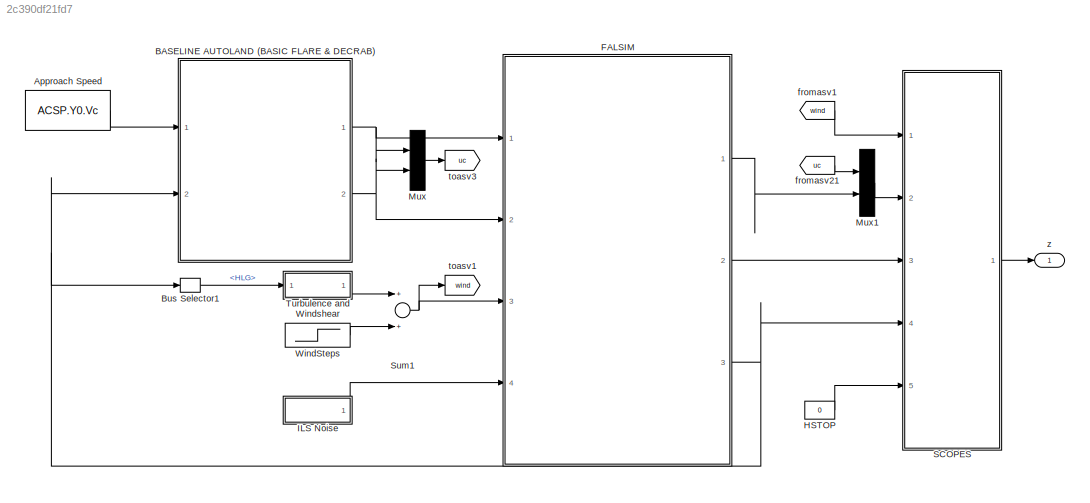
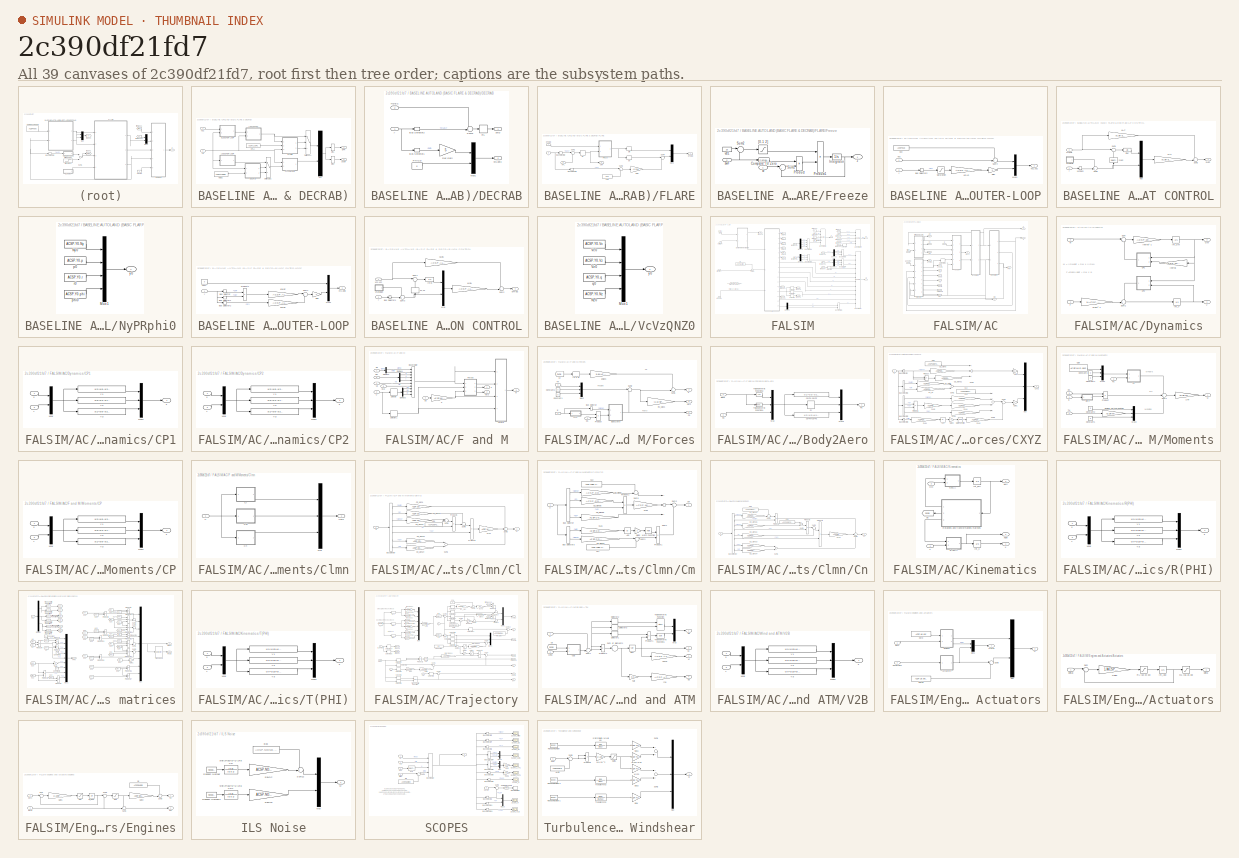
[diagram: thumbnail index - all 39 canvases of the model, root first then tree order]
MODEL slx_2c390df21fd7
KIND model
CONFIG AbsTol = auto
CONFIG EnableMultiTasking = on
CONFIG FixedStep = 0.05
CONFIG MaxStep = auto
CONFIG MinStep = auto
CONFIG RelTol = 1e-3
CONFIG SampleTimeConstraint = Unconstrained
CONFIG Solver = ode1
CONFIG SolverName = ode1
CONFIG StartTime = 0.0
CONFIG StopTime = 200
BLOCK [Constant] Approach Speed
  Value = ACSP.Y0.Vc
BLOCK [SubSystem] BASELINE AUTOLAND (BASIC FLARE & DECRAB)
  Ports = [2, 2]
  RequestExecContextInheritance = off
BLOCK [Outport] BASELINE AUTOLAND (BASIC FLARE & DECRAB)/DAER
  IconDisplay = Port number
  Port = 2
BLOCK [SubSystem] BASELINE AUTOLAND (BASIC FLARE & DECRAB)/DECRAB
  Ports = [2, 2]
  RequestExecContextInheritance = off
BLOCK [BusSelector] BASELINE AUTOLAND (BASIC FLARE & DECRAB)/DECRAB/Bus Selector1
  OutputAsBus = off
  OutputSignals = PHI.psi
  Ports = [1, 1]
BLOCK [BusSelector] BASELINE AUTOLAND (BASIC FLARE & DECRAB)/DECRAB/Bus Selector2
  OutputAsBus = off
  OutputSignals = HLG
  Ports = [1, 1]
BLOCK [Gain] BASELINE AUTOLAND (BASIC FLARE & DECRAB)/DECRAB/Dec Gain
  Gain = 5
  OutDataTypeStr = Inherit: Inherit via internal rule
  ParamDataTypeStr = Inherit: Inherit via internal rule
  SaturateOnIntegerOverflow = off
BLOCK [Inport] BASELINE AUTOLAND (BASIC FLARE & DECRAB)/DECRAB/HDEC
  IconDisplay = Port number
  Port = 2
BLOCK [Mux] BASELINE AUTOLAND (BASIC FLARE & DECRAB)/DECRAB/Mux1
  DisplayOption = bar
  Inputs = 2
  Ports = [2, 1]
BLOCK [Constant] BASELINE AUTOLAND (BASIC FLARE & DECRAB)/DECRAB/PHICD
  Value = 0
BLOCK [RateLimiter] BASELINE AUTOLAND (BASIC FLARE & DECRAB)/DECRAB/RL
  FallingSlewLimit = -10
  RisingSlewLimit = 0
  SampleTimeMode = inherited
BLOCK [Sum] BASELINE AUTOLAND (BASIC FLARE & DECRAB)/DECRAB/Sum3
  IconShape = round
  InputSameDT = off
  Inputs = -+|
  OutDataTypeStr = Inherit: Inherit via internal rule
  Ports = [2, 1]
  SaturateOnIntegerOverflow = off
BLOCK [Outport] BASELINE AUTOLAND (BASIC FLARE & DECRAB)/DECRAB/nyc,phic
  IconDisplay = Port number
  Port = 2
BLOCK [Outport] BASELINE AUTOLAND (BASIC FLARE & DECRAB)/DECRAB/swD
  IconDisplay = Port number
BLOCK [Inport] BASELINE AUTOLAND (BASIC FLARE & DECRAB)/DECRAB/y
  IconDisplay = Port number
BLOCK [Outport] BASELINE AUTOLAND (BASIC FLARE & DECRAB)/EPR
  IconDisplay = Port number
BLOCK [SubSystem] BASELINE AUTOLAND (BASIC FLARE & DECRAB)/FLARE
  Ports = [3, 2]
  RequestExecContextInheritance = off
BLOCK [BusSelector] BASELINE AUTOLAND (BASIC FLARE & DECRAB)/FLARE/Bus Selector1
  OutputAsBus = off
  OutputSignals = Vz
  Ports = [1, 1]
BLOCK [BusSelector] BASELINE AUTOLAND (BASIC FLARE & DECRAB)/FLARE/Bus Selector2
  OutputAsBus = off
  OutputSignals = HLG
  Ports = [1, 1]
BLOCK [SubSystem] BASELINE AUTOLAND (BASIC FLARE & DECRAB)/FLARE/Freeze
  Ports = [2, 1]
  RequestExecContextInheritance = off
BLOCK [Reference] BASELINE AUTOLAND (BASIC FLARE & DECRAB)/FLARE/Freeze/Compare To Zero  REF=simulink/Logic and Bit
Operations/Compare
To Zero
  Ports = [1, 1]
  SourceBlock = simulink/Logic and Bit\nOperations/Compare\nTo Zero
  SourceProductBaseCode = SL
  SourceProductName = Simulink
  SourceType = Compare To Zero
BLOCK [Integrator] BASELINE AUTOLAND (BASIC FLARE & DECRAB)/FLARE/Freeze/Integrator
  Ports = [1, 1]
BLOCK [Product] BASELINE AUTOLAND (BASIC FLARE & DECRAB)/FLARE/Freeze/Product
  InputSameDT = off
  OutDataTypeStr = Inherit: Inherit via internal rule
  Ports = [2, 1]
  SaturateOnIntegerOverflow = off
BLOCK [Product] BASELINE AUTOLAND (BASIC FLARE & DECRAB)/FLARE/Freeze/Product1
  InputSameDT = off
  Inputs = /*
  OutDataTypeStr = Inherit: Inherit via internal rule
  Ports = [2, 1]
  SaturateOnIntegerOverflow = off
BLOCK [Sum] BASELINE AUTOLAND (BASIC FLARE & DECRAB)/FLARE/Freeze/Sum1
  IconShape = round
  InputSameDT = off
  Inputs = |+-
  OutDataTypeStr = Inherit: Inherit via internal rule
  Ports = [2, 1]
  SaturateOnIntegerOverflow = off
BLOCK [Sum] BASELINE AUTOLAND (BASIC FLARE & DECRAB)/FLARE/Freeze/Sum2
  IconShape = round
  InputSameDT = off
  Inputs = |-+
  OutDataTypeStr = Inherit: Inherit via internal rule
  Ports = [2, 1]
  SaturateOnIntegerOverflow = off
BLOCK [Saturate] BASELINE AUTOLAND (BASIC FLARE & DECRAB)/FLARE/Freeze/[0.1 2]
  InputPortMap = u0
  LowerLimit = 0.1
  Ports = [1, 1]
  UpperLimit = 2
BLOCK [Inport] BASELINE AUTOLAND (BASIC FLARE & DECRAB)/FLARE/Freeze/swF
  IconDisplay = Port number
  Port = 2
BLOCK [Constant] BASELINE AUTOLAND (BASIC FLARE & DECRAB)/FLARE/Freeze/vzt1
  Value = 15
BLOCK [Inport] BASELINE AUTOLAND (BASIC FLARE & DECRAB)/FLARE/Freeze/w
  IconDisplay = Port number
BLOCK [Outport] BASELINE AUTOLAND (BASIC FLARE & DECRAB)/FLARE/Freeze/z
  IconDisplay = Port number
BLOCK [Gain] BASELINE AUTOLAND (BASIC FLARE & DECRAB)/FLARE/Gain
  Gain = -0.018
  OutDataTypeStr = Inherit: Inherit via internal rule
  ParamDataTypeStr = Inherit: Inherit via internal rule
  SaturateOnIntegerOverflow = off
BLOCK [Inport] BASELINE AUTOLAND (BASIC FLARE & DECRAB)/FLARE/HFL
  IconDisplay = Port number
  Port = 2
BLOCK [Mux] BASELINE AUTOLAND (BASIC FLARE & DECRAB)/FLARE/Mux1
  DisplayOption = bar
  Inputs = 2
  Ports = [2, 1]
BLOCK [RateLimiter] BASELINE AUTOLAND (BASIC FLARE & DECRAB)/FLARE/RL
  FallingSlewLimit = -10
  RisingSlewLimit = 0
  SampleTimeMode = inherited
BLOCK [Sum] BASELINE AUTOLAND (BASIC FLARE & DECRAB)/FLARE/Sum1
  IconShape = round
  InputSameDT = off
  Inputs = |+-
  OutDataTypeStr = Inherit: Inherit via internal rule
  Ports = [2, 1]
  SaturateOnIntegerOverflow = off
BLOCK [Sum] BASELINE AUTOLAND (BASIC FLARE & DECRAB)/FLARE/Sum2
  IconShape = round
  InputSameDT = off
  Inputs = |+-
  OutDataTypeStr = Inherit: Inherit via internal rule
  Ports = [2, 1]
  SaturateOnIntegerOverflow = off
BLOCK [Sum] BASELINE AUTOLAND (BASIC FLARE & DECRAB)/FLARE/Sum4
  IconShape = round
  InputSameDT = off
  Inputs = |+-
  OutDataTypeStr = Inherit: Inherit via internal rule
  Ports = [2, 1]
  SaturateOnIntegerOverflow = off
BLOCK [Outport] BASELINE AUTOLAND (BASIC FLARE & DECRAB)/FLARE/dTH dE
  IconDisplay = Port number
  Port = 2
BLOCK [Inport] BASELINE AUTOLAND (BASIC FLARE & DECRAB)/FLARE/dTHdE
  IconDisplay = Port number
BLOCK [Selector] BASELINE AUTOLAND (BASIC FLARE & DECRAB)/FLARE/de
  IndexOptions = Index vector (dialog)
  Indices = 2
  InputPortWidth = 2
  OutputSizes = 1
  Ports = [1, 1]
BLOCK [Selector] BASELINE AUTOLAND (BASIC FLARE & DECRAB)/FLARE/dth
  IndexOptions = Index vector (dialog)
  Indices = 1
  InputPortWidth = 2
  OutputSizes = 1
  Ports = [1, 1]
BLOCK [Outport] BASELINE AUTOLAND (BASIC FLARE & DECRAB)/FLARE/swF
  IconDisplay = Port number
BLOCK [Constant] BASELINE AUTOLAND (BASIC FLARE & DECRAB)/FLARE/vzt1
  Value = -0.75
BLOCK [Inport] BASELINE AUTOLAND (BASIC FLARE & DECRAB)/FLARE/y
  IconDisplay = Port number
  Port = 3
BLOCK [SubSystem] BASELINE AUTOLAND (BASIC FLARE & DECRAB)/GLD  OUTER-LOOP
  Ports = [2, 1]
  RequestExecContextInheritance = off
BLOCK [BusSelector] BASELINE AUTOLAND (BASIC FLARE & DECRAB)/GLD  OUTER-LOOP/Bus Selector2
  OutputAsBus = off
  OutputSignals = ILS.dz
  Ports = [1, 1]
BLOCK [Gain] BASELINE AUTOLAND (BASIC FLARE & DECRAB)/GLD  OUTER-LOOP/KGLD
  Gain = ACSP.ALS.kpGLD
  OutDataTypeStr = Inherit: Inherit via internal rule
  ParamDataTypeStr = Inherit: Inherit via internal rule
  SaturateOnIntegerOverflow = off
BLOCK [Mux] BASELINE AUTOLAND (BASIC FLARE & DECRAB)/GLD  OUTER-LOOP/Mux1
  DisplayOption = bar
  Inputs = 2
  Ports = [2, 1]
BLOCK [Saturate] BASELINE AUTOLAND (BASIC FLARE & DECRAB)/GLD  OUTER-LOOP/Saturation
  InputPortMap = u0
  LowerLimit = -15
  Ports = [1, 1]
  UpperLimit = 15
BLOCK [Sum] BASELINE AUTOLAND (BASIC FLARE & DECRAB)/GLD  OUTER-LOOP/Sum4
  IconShape = round
  InputSameDT = off
  Inputs = -+|
  OutDataTypeStr = Inherit: Inherit via internal rule
  Ports = [2, 1]
  SaturateOnIntegerOverflow = off
BLOCK [Constant] BASELINE AUTOLAND (BASIC FLARE & DECRAB)/GLD  OUTER-LOOP/Vc0
  Value = ACSP.Y0.Vc
BLOCK [Inport] BASELINE AUTOLAND (BASIC FLARE & DECRAB)/GLD  OUTER-LOOP/Vcc
  IconDisplay = Port number
BLOCK [Gain] BASELINE AUTOLAND (BASIC FLARE & DECRAB)/GLD  OUTER-LOOP/sign
  Gain = -1
  OutDataTypeStr = Inherit: Inherit via internal rule
  ParamDataTypeStr = Inherit: Inherit via internal rule
  SaturateOnIntegerOverflow = off
BLOCK [Outport] BASELINE AUTOLAND (BASIC FLARE & DECRAB)/GLD  OUTER-LOOP/vcc,vzc
  IconDisplay = Port number
BLOCK [Inport] BASELINE AUTOLAND (BASIC FLARE & DECRAB)/GLD  OUTER-LOOP/y
  IconDisplay = Port number
  Port = 2
BLOCK [Constant] BASELINE AUTOLAND (BASIC FLARE & DECRAB)/HDEC
  Value = ACSP.ALS.HDC
BLOCK [Constant] BASELINE AUTOLAND (BASIC FLARE & DECRAB)/HFLA
  Value = ACSP.ALS.HFL
BLOCK [SubSystem] BASELINE AUTOLAND (BASIC FLARE & DECRAB)/LAT CONTROL
  Ports = [2, 1]
  RequestExecContextInheritance = off
BLOCK [Gain] BASELINE AUTOLAND (BASIC FLARE & DECRAB)/LAT CONTROL/HLAT
  Gain = ACSP.ALS.HLAT
  Multiplication = Matrix(K*u)
  OutDataTypeStr = Inherit: Inherit via internal rule
  ParamDataTypeStr = Inherit: Inherit via internal rule
  SaturateOnIntegerOverflow = off
BLOCK [Integrator] BASELINE AUTOLAND (BASIC FLARE & DECRAB)/LAT CONTROL/IntVc
  Ports = [1, 1]
BLOCK [Gain] BASELINE AUTOLAND (BASIC FLARE & DECRAB)/LAT CONTROL/KLAT
  Gain = ACSP.ALS.KLAT
  Multiplication = Matrix(K*u)
  OutDataTypeStr = Inherit: Inherit via internal rule
  ParamDataTypeStr = Inherit: Inherit via internal rule
  SaturateOnIntegerOverflow = off
BLOCK [Mux] BASELINE AUTOLAND (BASIC FLARE & DECRAB)/LAT CONTROL/Mux
  DisplayOption = bar
  Inputs = 2
  Ports = [2, 1]
BLOCK [BusSelector] BASELINE AUTOLAND (BASIC FLARE & DECRAB)/LAT CONTROL/NyPRphi
  OutputAsBus = on
  OutputSignals = Nxyz.ny,OM.p,OM.r,PHI.phi
  Ports = [1, 1]
BLOCK [SubSystem] BASELINE AUTOLAND (BASIC FLARE & DECRAB)/LAT CONTROL/NyPRphi0
  Ports = [0, 1]
  RequestExecContextInheritance = off
BLOCK [Mux] BASELINE AUTOLAND (BASIC FLARE & DECRAB)/LAT CONTROL/NyPRphi0/Mux1
  DisplayOption = bar
  Ports = [4, 1]
BLOCK [Constant] BASELINE AUTOLAND (BASIC FLARE & DECRAB)/LAT CONTROL/NyPRphi0/Ny0
  Value = ACSP.Y0.Ny
BLOCK [Constant] BASELINE AUTOLAND (BASIC FLARE & DECRAB)/LAT CONTROL/NyPRphi0/p0
  Value = ACSP.Y0.p
BLOCK [Constant] BASELINE AUTOLAND (BASIC FLARE & DECRAB)/LAT CONTROL/NyPRphi0/phi0
  Value = ACSP.Y0.phi
BLOCK [Constant] BASELINE AUTOLAND (BASIC FLARE & DECRAB)/LAT CONTROL/NyPRphi0/r0
  Value = ACSP.Y0.r
BLOCK [Outport] BASELINE AUTOLAND (BASIC FLARE & DECRAB)/LAT CONTROL/NyPRphi0/y0
  IconDisplay = Port number
BLOCK [Sum] BASELINE AUTOLAND (BASIC FLARE & DECRAB)/LAT CONTROL/Sum1
  IconShape = round
  InputSameDT = off
  Inputs = |+-
  OutDataTypeStr = Inherit: Inherit via internal rule
  Ports = [2, 1]
  SaturateOnIntegerOverflow = off
BLOCK [Sum] BASELINE AUTOLAND (BASIC FLARE & DECRAB)/LAT CONTROL/Sum2
  IconShape = round
  InputSameDT = off
  Inputs = ++|
  OutDataTypeStr = Inherit: Inherit via internal rule
  Ports = [2, 1]
  SaturateOnIntegerOverflow = off
BLOCK [Sum] BASELINE AUTOLAND (BASIC FLARE & DECRAB)/LAT CONTROL/Sum3
  IconShape = round
  InputSameDT = off
  Inputs = -+|
  OutDataTypeStr = Inherit: Inherit via internal rule
  Ports = [2, 1]
  SaturateOnIntegerOverflow = off
BLOCK [Outport] BASELINE AUTOLAND (BASIC FLARE & DECRAB)/LAT CONTROL/dA  dR
  IconDisplay = Port number
BLOCK [Selector] BASELINE AUTOLAND (BASIC FLARE & DECRAB)/LAT CONTROL/ny,phi
  IndexOptions = Index vector (dialog)
  Indices = [1 4]
  InputPortWidth = 4
  OutputSizes = 1
  Ports = [1, 1]
BLOCK [Inport] BASELINE AUTOLAND (BASIC FLARE & DECRAB)/LAT CONTROL/nyc,phic
  IconDisplay = Port number
  Port = 2
BLOCK [Inport] BASELINE AUTOLAND (BASIC FLARE & DECRAB)/LAT CONTROL/y
  IconDisplay = Port number
BLOCK [SubSystem] BASELINE AUTOLAND (BASIC FLARE & DECRAB)/LOC OUTER-LOOP
  Ports = [1, 1]
  RequestExecContextInheritance = off
BLOCK [BusSelector] BASELINE AUTOLAND (BASIC FLARE & DECRAB)/LOC OUTER-LOOP/Bus Selector
  OutputAsBus = off
  OutputSignals = Chi
  Ports = [1, 1]
BLOCK [BusSelector] BASELINE AUTOLAND (BASIC FLARE & DECRAB)/LOC OUTER-LOOP/Bus Selector1
  OutputAsBus = off
  OutputSignals = Vg
  Ports = [1, 1]
BLOCK [BusSelector] BASELINE AUTOLAND (BASIC FLARE & DECRAB)/LOC OUTER-LOOP/Bus Selector2
  OutputAsBus = off
  OutputSignals = ILS.dy
  Ports = [1, 1]
BLOCK [Mux] BASELINE AUTOLAND (BASIC FLARE & DECRAB)/LOC OUTER-LOOP/Mux1
  DisplayOption = bar
  Inputs = 2
  Ports = [2, 1]
BLOCK [Constant] BASELINE AUTOLAND (BASIC FLARE & DECRAB)/LOC OUTER-LOOP/NYCA
  Value = 0
BLOCK [Product] BASELINE AUTOLAND (BASIC FLARE & DECRAB)/LOC OUTER-LOOP/Product1
  InputSameDT = off
  OutDataTypeStr = Inherit: Inherit via internal rule
  Ports = [2, 1]
  SaturateOnIntegerOverflow = off
BLOCK [Sum] BASELINE AUTOLAND (BASIC FLARE & DECRAB)/LOC OUTER-LOOP/Sum4
  IconShape = round
  InputSameDT = off
  Inputs = |++
  OutDataTypeStr = Inherit: Inherit via internal rule
  Ports = [2, 1]
  SaturateOnIntegerOverflow = off
BLOCK [Gain] BASELINE AUTOLAND (BASIC FLARE & DECRAB)/LOC OUTER-LOOP/kdLOC
  Gain = ACSP.ALS.kdLOC
  OutDataTypeStr = Inherit: Inherit via internal rule
  ParamDataTypeStr = Inherit: Inherit via internal rule
  SaturateOnIntegerOverflow = off
BLOCK [Gain] BASELINE AUTOLAND (BASIC FLARE & DECRAB)/LOC OUTER-LOOP/kpLOC
  Gain = ACSP.ALS.kpLOC
  OutDataTypeStr = Inherit: Inherit via internal rule
  ParamDataTypeStr = Inherit: Inherit via internal rule
  SaturateOnIntegerOverflow = off
BLOCK [Outport] BASELINE AUTOLAND (BASIC FLARE & DECRAB)/LOC OUTER-LOOP/nyc,phic
  IconDisplay = Port number
BLOCK [Gain] BASELINE AUTOLAND (BASIC FLARE & DECRAB)/LOC OUTER-LOOP/sign
  Gain = -1
  OutDataTypeStr = Inherit: Inherit via internal rule
  ParamDataTypeStr = Inherit: Inherit via internal rule
  SaturateOnIntegerOverflow = off
BLOCK [Inport] BASELINE AUTOLAND (BASIC FLARE & DECRAB)/LOC OUTER-LOOP/y
  IconDisplay = Port number
BLOCK [SubSystem] BASELINE AUTOLAND (BASIC FLARE & DECRAB)/LON CONTROL
  Ports = [2, 1]
  RequestExecContextInheritance = off
BLOCK [BusSelector] BASELINE AUTOLAND (BASIC FLARE & DECRAB)/LON CONTROL/Bus Selector1
  OutputAsBus = on
  OutputSignals = Vc,Vz,OM.q,Nxyz.nz
  Ports = [1, 1]
BLOCK [Gain] BASELINE AUTOLAND (BASIC FLARE & DECRAB)/LON CONTROL/HLON
  Gain = ACSP.ALS.HLON
  Multiplication = Matrix(K*u)
  OutDataTypeStr = Inherit: Inherit via internal rule
  ParamDataTypeStr = Inherit: Inherit via internal rule
  SaturateOnIntegerOverflow = off
BLOCK [Integrator] BASELINE AUTOLAND (BASIC FLARE & DECRAB)/LON CONTROL/IntVc
  Ports = [1, 1]
BLOCK [Gain] BASELINE AUTOLAND (BASIC FLARE & DECRAB)/LON CONTROL/KLON
  Gain = ACSP.ALS.KLON
  Multiplication = Matrix(K*u)
  OutDataTypeStr = Inherit: Inherit via internal rule
  ParamDataTypeStr = Inherit: Inherit via internal rule
  SaturateOnIntegerOverflow = off
BLOCK [Mux] BASELINE AUTOLAND (BASIC FLARE & DECRAB)/LON CONTROL/Mux
  DisplayOption = bar
  Inputs = 2
  Ports = [2, 1]
BLOCK [Sum] BASELINE AUTOLAND (BASIC FLARE & DECRAB)/LON CONTROL/Sum1
  IconShape = round
  InputSameDT = off
  Inputs = |+-
  OutDataTypeStr = Inherit: Inherit via internal rule
  Ports = [2, 1]
  SaturateOnIntegerOverflow = off
BLOCK [Sum] BASELINE AUTOLAND (BASIC FLARE & DECRAB)/LON CONTROL/Sum2
  IconShape = round
  InputSameDT = off
  Inputs = ++|
  OutDataTypeStr = Inherit: Inherit via internal rule
  Ports = [2, 1]
  SaturateOnIntegerOverflow = off
BLOCK [Sum] BASELINE AUTOLAND (BASIC FLARE & DECRAB)/LON CONTROL/Sum3
  IconShape = round
  InputSameDT = off
  Inputs = -+|
  OutDataTypeStr = Inherit: Inherit via internal rule
  Ports = [2, 1]
  SaturateOnIntegerOverflow = off
BLOCK [SubSystem] BASELINE AUTOLAND (BASIC FLARE & DECRAB)/LON CONTROL/VcVzQNZ0
  Ports = [0, 1]
  RequestExecContextInheritance = off
BLOCK [Mux] BASELINE AUTOLAND (BASIC FLARE & DECRAB)/LON CONTROL/VcVzQNZ0/Mux1
  DisplayOption = bar
  Ports = [4, 1]
BLOCK [Constant] BASELINE AUTOLAND (BASIC FLARE & DECRAB)/LON CONTROL/VcVzQNZ0/Nz0
  Value = ACSP.Y0.Nz
BLOCK [Constant] BASELINE AUTOLAND (BASIC FLARE & DECRAB)/LON CONTROL/VcVzQNZ0/Vc0
  Value = ACSP.Y0.Vc
BLOCK [Constant] BASELINE AUTOLAND (BASIC FLARE & DECRAB)/LON CONTROL/VcVzQNZ0/Vz0
  Value = ACSP.Y0.Vz
BLOCK [Constant] BASELINE AUTOLAND (BASIC FLARE & DECRAB)/LON CONTROL/VcVzQNZ0/q0
  Value = ACSP.Y0.q
BLOCK [Outport] BASELINE AUTOLAND (BASIC FLARE & DECRAB)/LON CONTROL/VcVzQNZ0/y0
  IconDisplay = Port number
BLOCK [Outport] BASELINE AUTOLAND (BASIC FLARE & DECRAB)/LON CONTROL/dTH  dE
  IconDisplay = Port number
BLOCK [Selector] BASELINE AUTOLAND (BASIC FLARE & DECRAB)/LON CONTROL/vc,vz
  IndexOptions = Index vector (dialog)
  Indices = [1 2]
  InputPortWidth = 4
  OutputSizes = 1
  Ports = [1, 1]
BLOCK [Inport] BASELINE AUTOLAND (BASIC FLARE & DECRAB)/LON CONTROL/vcc,vzc
  IconDisplay = Port number
BLOCK [Inport] BASELINE AUTOLAND (BASIC FLARE & DECRAB)/LON CONTROL/y
  IconDisplay = Port number
  Port = 2
BLOCK [Mux] BASELINE AUTOLAND (BASIC FLARE & DECRAB)/Mux
  DisplayOption = bar
  Inputs = 2
  Ports = [2, 1]
BLOCK [Switch] BASELINE AUTOLAND (BASIC FLARE & DECRAB)/Switch DEC
  InputSameDT = off
  SaturateOnIntegerOverflow = off
BLOCK [Switch] BASELINE AUTOLAND (BASIC FLARE & DECRAB)/Switch FLA
  InputSameDT = off
  SaturateOnIntegerOverflow = off
BLOCK [Inport] BASELINE AUTOLAND (BASIC FLARE & DECRAB)/VCC
  IconDisplay = Port number
BLOCK [Inport] BASELINE AUTOLAND (BASIC FLARE & DECRAB)/YM
  IconDisplay = Port number
  Port = 2
BLOCK [Selector] BASELINE AUTOLAND (BASIC FLARE & DECRAB)/dth1
  IndexOptions = Index vector (dialog)
  Indices = 1
  InputPortWidth = 4
  OutputSizes = 1
  Ports = [1, 1]
BLOCK [Selector] BASELINE AUTOLAND (BASIC FLARE & DECRAB)/dth2
  IndexOptions = Index vector (dialog)
  Indices = [3 2 4]
  InputPortWidth = 4
  OutputSizes = 1
  Ports = [1, 1]
BLOCK [BusSelector] Bus Selector1
  OutputAsBus = off
  OutputSignals = HLG
  Ports = [1, 1]
BLOCK [SubSystem] FALSIM
  Ports = [4, 3]
  RequestExecContextInheritance = off
BLOCK [SubSystem] FALSIM/AC
  Ports = [3, 16]
  RequestExecContextInheritance = off
BLOCK [Outport] FALSIM/AC/Chi
  IconDisplay = Port number
  Port = 15
BLOCK [SubSystem] FALSIM/AC/Dynamics
  Ports = [2, 2]
  RequestExecContextInheritance = off
BLOCK [SubSystem] FALSIM/AC/Dynamics/CP1
  Ports = [2, 1]
  RequestExecContextInheritance = off
BLOCK [Mux] FALSIM/AC/Dynamics/CP1/Mux
  DisplayOption = bar
  Inputs = 2
  Ports = [2, 1]
BLOCK [Mux] FALSIM/AC/Dynamics/CP1/Mux1
  DisplayOption = bar
  Inputs = 3
  Ports = [3, 1]
BLOCK [Fcn] FALSIM/AC/Dynamics/CP1/Y1
  Expr = u(2)*u(6)-u(3)*u(5)
BLOCK [Fcn] FALSIM/AC/Dynamics/CP1/Y2
  Expr = u(3)*u(4)-u(1)*u(6)
BLOCK [Fcn] FALSIM/AC/Dynamics/CP1/Y3
  Expr = u(1)*u(5)-u(2)*u(4)
BLOCK [Inport] FALSIM/AC/Dynamics/CP1/x
  IconDisplay = Port number
BLOCK [Inport] FALSIM/AC/Dynamics/CP1/y
  IconDisplay = Port number
  Port = 2
BLOCK [Outport] FALSIM/AC/Dynamics/CP1/z
  IconDisplay = Port number
BLOCK [SubSystem] FALSIM/AC/Dynamics/CP2
  Ports = [2, 1]
  RequestExecContextInheritance = off
BLOCK [Mux] FALSIM/AC/Dynamics/CP2/Mux
  DisplayOption = bar
  Inputs = 2
  Ports = [2, 1]
BLOCK [Mux] FALSIM/AC/Dynamics/CP2/Mux1
  DisplayOption = bar
  Inputs = 3
  Ports = [3, 1]
BLOCK [Fcn] FALSIM/AC/Dynamics/CP2/Y1
  Expr = u(2)*u(6)-u(3)*u(5)
BLOCK [Fcn] FALSIM/AC/Dynamics/CP2/Y2
  Expr = u(3)*u(4)-u(1)*u(6)
BLOCK [Fcn] FALSIM/AC/Dynamics/CP2/Y3
  Expr = u(1)*u(5)-u(2)*u(4)
BLOCK [Inport] FALSIM/AC/Dynamics/CP2/x
  IconDisplay = Port number
BLOCK [Inport] FALSIM/AC/Dynamics/CP2/y
  IconDisplay = Port number
  Port = 2
BLOCK [Outport] FALSIM/AC/Dynamics/CP2/z
  IconDisplay = Port number
BLOCK [Inport] FALSIM/AC/Dynamics/F
  IconDisplay = Port number
BLOCK [Gain] FALSIM/AC/Dynamics/Inertia
  Gain = ACSP.MIG.I
  Multiplication = Matrix(K*u)
  OutDataTypeStr = Inherit: Inherit via internal rule
  ParamDataTypeStr = Inherit: Inherit via internal rule
  SaturateOnIntegerOverflow = off
BLOCK [Gain] FALSIM/AC/Dynamics/Inertia^-1
  Gain = ACSP.MIG.J
  Multiplication = Matrix(K*u)
  OutDataTypeStr = Inherit: Inherit via internal rule
  ParamDataTypeStr = Inherit: Inherit via internal rule
  SaturateOnIntegerOverflow = off
BLOCK [Integrator] FALSIM/AC/Dynamics/Int_OM
  ContinuousStateAttributes = 'OM'
  InitialCondition = ACSP.X0.OM
  Ports = [1, 1]
BLOCK [Integrator] FALSIM/AC/Dynamics/Int_V
  ContinuousStateAttributes = 'V'
  InitialCondition = ACSP.X0.V
  Ports = [1, 1]
BLOCK [Inport] FALSIM/AC/Dynamics/M
  IconDisplay = Port number
  Port = 2
BLOCK [Gain] FALSIM/AC/Dynamics/Mass^-1
  Gain = 1/ACSP.MIG.mass
  OutDataTypeStr = Inherit: Inherit via internal rule
  ParamDataTypeStr = Inherit: Inherit via internal rule
  SaturateOnIntegerOverflow = off
BLOCK [Outport] FALSIM/AC/Dynamics/OM
  IconDisplay = Port number
  Port = 2
BLOCK [Sum] FALSIM/AC/Dynamics/Sum
  IconShape = round
  InputSameDT = off
  Inputs = |+-
  OutDataTypeStr = Inherit: Inherit via internal rule
  Ports = [2, 1]
  SaturateOnIntegerOverflow = off
BLOCK [Sum] FALSIM/AC/Dynamics/Sum1
  IconShape = round
  InputSameDT = off
  Inputs = -+|
  OutDataTypeStr = Inherit: Inherit via internal rule
  Ports = [2, 1]
  SaturateOnIntegerOverflow = off
BLOCK [Outport] FALSIM/AC/Dynamics/V
  IconDisplay = Port number
BLOCK [SubSystem] FALSIM/AC/F and M
  Ports = [6, 3]
  RequestExecContextInheritance = off
BLOCK [BusCreator] FALSIM/AC/F and M/Bus Creator
  DisplayOption = bar
  InheritFromInputs = on
  Inputs = 10
  Ports = [10, 1]
BLOCK [Demux] FALSIM/AC/F and M/Demux1
  DisplayOption = bar
  Outputs = 3
  Ports = [1, 3]
BLOCK [Demux] FALSIM/AC/F and M/Demux2
  DisplayOption = bar
  Outputs = 3
  Ports = [1, 3]
BLOCK [Demux] FALSIM/AC/F and M/Demux3
  DisplayOption = bar
  Outputs = 2
  Ports = [1, 2]
BLOCK [Outport] FALSIM/AC/F and M/F
  IconDisplay = Port number
BLOCK [SubSystem] FALSIM/AC/F and M/Forces
  Ports = [3, 3]
  RequestExecContextInheritance = off
BLOCK [SubSystem] FALSIM/AC/F and M/Forces/Body2Aero
  Ports = [2, 1]
  RequestExecContextInheritance = off
BLOCK [Outport] FALSIM/AC/F and M/Forces/Body2Aero/Fa
  IconDisplay = Port number
BLOCK [Inport] FALSIM/AC/F and M/Forces/Body2Aero/Fb
  IconDisplay = Port number
  Port = 2
BLOCK [Selector] FALSIM/AC/F and M/Forces/Body2Aero/Fy
  IndexOptions = Index vector (dialog)
  Indices = 4
  InputPortWidth = 5
  OutputSizes = 1
  Ports = [1, 1]
BLOCK [Mux] FALSIM/AC/F and M/Forces/Body2Aero/Mux
  DisplayOption = bar
  Inputs = [1 1 3]
  Ports = [3, 1]
BLOCK [Mux] FALSIM/AC/F and M/Forces/Body2Aero/Mux3
  DisplayOption = bar
  Inputs = 3
  Ports = [3, 1]
BLOCK [Trigonometry] FALSIM/AC/F and M/Forces/Body2Aero/Trigonometric Function1
  Ports = [1, 1]
BLOCK [Trigonometry] FALSIM/AC/F and M/Forces/Body2Aero/Trigonometric Function2
  Operator = cos
  Ports = [1, 1]
BLOCK [Inport] FALSIM/AC/F and M/Forces/Body2Aero/alpha
  IconDisplay = Port number
BLOCK [Fcn] FALSIM/AC/F and M/Forces/Body2Aero/ca*Fx-sa*Fz
  Expr = u(1)*u(3)-u(2)*u(5)
BLOCK [Fcn] FALSIM/AC/F and M/Forces/Body2Aero/sa*Fx+ca*Fz
  Expr = u(2)*u(3)+u(1)*u(5)
BLOCK [BusSelector] FALSIM/AC/F and M/Forces/Bus Selector
  OutputAsBus = off
  OutputSignals = alpha
  Ports = [1, 1]
BLOCK [SubSystem] FALSIM/AC/F and M/Forces/CXYZ
  Ports = [1, 1]
  RequestExecContextInheritance = off
BLOCK [Abs] FALSIM/AC/F and M/Forces/CXYZ/Abs
  SaturateOnIntegerOverflow = off
BLOCK [BusSelector] FALSIM/AC/F and M/Forces/CXYZ/Bus Selector
  OutputAsBus = off
  OutputSignals = alpha
  Ports = [1, 1]
BLOCK [BusSelector] FALSIM/AC/F and M/Forces/CXYZ/Bus Selector1
  OutputAsBus = off
  OutputSignals = beta,dr
  Ports = [1, 2]
BLOCK [BusSelector] FALSIM/AC/F and M/Forces/CXYZ/Bus Selector2
  OutputAsBus = off
  OutputSignals = alpha,q,Va,de
  Ports = [1, 4]
BLOCK [BusSelector] FALSIM/AC/F and M/Forces/CXYZ/Bus Selector3
  OutputAsBus = off
  OutputSignals = Hlg
  Ports = [1, 1]
BLOCK [Constant] FALSIM/AC/F and M/Forces/CXYZ/CD0
  Value = ACSP.COEF.CD.CD0
BLOCK [Gain] FALSIM/AC/F and M/Forces/CXYZ/CD_alpha
  Gain = ACSP.COEF.CD.CDa
  OutDataTypeStr = Inherit: Inherit via internal rule
  ParamDataTypeStr = Inherit: Inherit via internal rule
  SaturateOnIntegerOverflow = off
BLOCK [Gain] FALSIM/AC/F and M/Forces/CXYZ/CD_alpha2
  Gain = ACSP.COEF.CD.CDa2
  OutDataTypeStr = Inherit: Inherit via internal rule
  ParamDataTypeStr = Inherit: Inherit via internal rule
  SaturateOnIntegerOverflow = off
BLOCK [Constant] FALSIM/AC/F and M/Forces/CXYZ/CL0
  Value = ACSP.COEF.CL.CL0
BLOCK [Gain] FALSIM/AC/F and M/Forces/CXYZ/CLa
  Gain = ACSP.COEF.CL.CLa
  OutDataTypeStr = Inherit: Inherit via internal rule
  ParamDataTypeStr = Inherit: Inherit via internal rule
  SaturateOnIntegerOverflow = off
BLOCK [Gain] FALSIM/AC/F and M/Forces/CXYZ/CLa1
  Gain = ACSP.COEF.CL.lambdah
  OutDataTypeStr = Inherit: Inherit via internal rule
  ParamDataTypeStr = Inherit: Inherit via internal rule
  SaturateOnIntegerOverflow = off
BLOCK [Gain] FALSIM/AC/F and M/Forces/CXYZ/CLa2
  Gain = ACSP.COEF.CL.CLh
  OutDataTypeStr = Inherit: Inherit via internal rule
  ParamDataTypeStr = Inherit: Inherit via internal rule
  SaturateOnIntegerOverflow = off
BLOCK [Gain] FALSIM/AC/F and M/Forces/CXYZ/CLa3
  Gain = ACSP.COEF.CL.CLde
  OutDataTypeStr = Inherit: Inherit via internal rule
  ParamDataTypeStr = Inherit: Inherit via internal rule
  SaturateOnIntegerOverflow = off
BLOCK [Gain] FALSIM/AC/F and M/Forces/CXYZ/CLa4
  Gain = ACSP.COEF.CL.CLq
  OutDataTypeStr = Inherit: Inherit via internal rule
  ParamDataTypeStr = Inherit: Inherit via internal rule
  SaturateOnIntegerOverflow = off
BLOCK [Gain] FALSIM/AC/F and M/Forces/CXYZ/CLa5
  Gain = ACSP.MIG.Lref
  OutDataTypeStr = Inherit: Inherit via internal rule
  ParamDataTypeStr = Inherit: Inherit via internal rule
  SaturateOnIntegerOverflow = off
BLOCK [Outport] FALSIM/AC/F and M/Forces/CXYZ/CXYZ
  IconDisplay = Port number
BLOCK [Gain] FALSIM/AC/F and M/Forces/CXYZ/CY_beta
  Gain = ACSP.COEF.CY.CYb
  OutDataTypeStr = Inherit: Inherit via internal rule
  ParamDataTypeStr = Inherit: Inherit via internal rule
  SaturateOnIntegerOverflow = off
BLOCK [Gain] FALSIM/AC/F and M/Forces/CXYZ/CY_dr
  Gain = ACSP.COEF.CY.CYdr
  OutDataTypeStr = Inherit: Inherit via internal rule
  ParamDataTypeStr = Inherit: Inherit via internal rule
  SaturateOnIntegerOverflow = off
BLOCK [Gain] FALSIM/AC/F and M/Forces/CXYZ/Gain
  Gain = -1
  OutDataTypeStr = Inherit: Inherit via internal rule
  ParamDataTypeStr = Inherit: Inherit via internal rule
  SaturateOnIntegerOverflow = off
BLOCK [Gain] FALSIM/AC/F and M/Forces/CXYZ/Gain1
  Gain = -1
  OutDataTypeStr = Inherit: Inherit via internal rule
  ParamDataTypeStr = Inherit: Inherit via internal rule
  SaturateOnIntegerOverflow = off
BLOCK [Gain] FALSIM/AC/F and M/Forces/CXYZ/Gain2
  Gain = -1
  OutDataTypeStr = Inherit: Inherit via internal rule
  ParamDataTypeStr = Inherit: Inherit via internal rule
  SaturateOnIntegerOverflow = off
BLOCK [Math] FALSIM/AC/F and M/Forces/CXYZ/Math Function
  Ports = [1, 1]
BLOCK [Mux] FALSIM/AC/F and M/Forces/CXYZ/Mux
  DisplayOption = bar
  Inputs = 3
  Ports = [3, 1]
BLOCK [Product] FALSIM/AC/F and M/Forces/CXYZ/Product
  InputSameDT = off
  OutDataTypeStr = Inherit: Inherit via internal rule
  Ports = [2, 1]
  SaturateOnIntegerOverflow = off
BLOCK [Product] FALSIM/AC/F and M/Forces/CXYZ/Product1
  InputSameDT = off
  Inputs = */
  OutDataTypeStr = Inherit: Inherit via internal rule
  Ports = [2, 1]
  SaturateOnIntegerOverflow = off
BLOCK [Sum] FALSIM/AC/F and M/Forces/CXYZ/Sum1
  InputSameDT = off
  OutDataTypeStr = Inherit: Inherit via internal rule
  Ports = [2, 1]
  SaturateOnIntegerOverflow = off
BLOCK [Sum] FALSIM/AC/F and M/Forces/CXYZ/Sum2
  InputSameDT = off
  Inputs = +++
  OutDataTypeStr = Inherit: Inherit via internal rule
  Ports = [3, 1]
  SaturateOnIntegerOverflow = off
BLOCK [Sum] FALSIM/AC/F and M/Forces/CXYZ/Sum3
  InputSameDT = off
  Inputs = ++++
  OutDataTypeStr = Inherit: Inherit via internal rule
  Ports = [4, 1]
  SaturateOnIntegerOverflow = off
BLOCK [Sum] FALSIM/AC/F and M/Forces/CXYZ/Sum4
  IconShape = round
  InputSameDT = off
  Inputs = |++
  OutDataTypeStr = Inherit: Inherit via internal rule
  Ports = [2, 1]
  SaturateOnIntegerOverflow = off
BLOCK [Inport] FALSIM/AC/F and M/Forces/CXYZ/U
  IconDisplay = Port number
BLOCK [Constant] FALSIM/AC/F and M/Forces/Constant1
  Value = 0
BLOCK [Constant] FALSIM/AC/F and M/Forces/Constant2
  Value = 0
BLOCK [Inport] FALSIM/AC/F and M/Forces/E
  IconDisplay = Port number
BLOCK [Outport] FALSIM/AC/F and M/Forces/F
  IconDisplay = Port number
  Port = 2
BLOCK [Outport] FALSIM/AC/F and M/Forces/Fa
  IconDisplay = Port number
BLOCK [Mux] FALSIM/AC/F and M/Forces/Mux2
  DisplayOption = bar
  Inputs = 3
  Ports = [3, 1]
BLOCK [Outport] FALSIM/AC/F and M/Forces/Nxyz
  IconDisplay = Port number
  Port = 3
BLOCK [Product] FALSIM/AC/F and M/Forces/Product
  InputSameDT = off
  OutDataTypeStr = Inherit: Inherit via internal rule
  Ports = [2, 1]
  SaturateOnIntegerOverflow = off
BLOCK [Sum] FALSIM/AC/F and M/Forces/Sum1
  IconShape = round
  InputSameDT = off
  Inputs = ++|
  OutDataTypeStr = Inherit: Inherit via internal rule
  Ports = [2, 1]
  SaturateOnIntegerOverflow = off
BLOCK [Sum] FALSIM/AC/F and M/Forces/Sum2
  IconShape = round
  InputSameDT = off
  Inputs = |++
  OutDataTypeStr = Inherit: Inherit via internal rule
  Ports = [2, 1]
  SaturateOnIntegerOverflow = off
BLOCK [Inport] FALSIM/AC/F and M/Forces/TH
  IconDisplay = Port number
  Port = 2
BLOCK [Selector] FALSIM/AC/F and M/Forces/[3 6 9]
  IndexOptions = Index vector (dialog)
  Indices = [3 6 9]
  InputPortWidth = 9
  OutputSizes = 1
  Ports = [1, 1]
BLOCK [Gain] FALSIM/AC/F and M/Forces/gMass
  Gain = 9.81*ACSP.MIG.mass
  OutDataTypeStr = Inherit: Inherit via internal rule
  ParamDataTypeStr = Inherit: Inherit via internal rule
  SaturateOnIntegerOverflow = off
BLOCK [Gain] FALSIM/AC/F and M/Forces/inv_Mass
  Gain = -1/ACSP.MIG.mass
  OutDataTypeStr = Inherit: Inherit via internal rule
  ParamDataTypeStr = Inherit: Inherit via internal rule
  SaturateOnIntegerOverflow = off
BLOCK [Inport] FALSIM/AC/F and M/Forces/qS
  IconDisplay = Port number
  Port = 3
BLOCK [From] FALSIM/AC/F and M/Forces/u2
  GotoTag = RV2B
  TagVisibility = global
BLOCK [Inport] FALSIM/AC/F and M/HLG
  IconDisplay = Port number
  Port = 5
BLOCK [Outport] FALSIM/AC/F and M/M
  IconDisplay = Port number
  Port = 3
BLOCK [SubSystem] FALSIM/AC/F and M/Moments
  Ports = [4, 1]
  RequestExecContextInheritance = off
BLOCK [Constant] FALSIM/AC/F and M/Moments/CD0
  Value = ACSP.MIG.dxG
BLOCK [SubSystem] FALSIM/AC/F and M/Moments/CP
  Ports = [2, 1]
  RequestExecContextInheritance = off
BLOCK [Mux] FALSIM/AC/F and M/Moments/CP/Mux
  DisplayOption = bar
  Inputs = 2
  Ports = [2, 1]
BLOCK [Mux] FALSIM/AC/F and M/Moments/CP/Mux1
  DisplayOption = bar
  Inputs = 3
  Ports = [3, 1]
BLOCK [Fcn] FALSIM/AC/F and M/Moments/CP/Y1
  Expr = u(2)*u(6)-u(3)*u(5)
BLOCK [Fcn] FALSIM/AC/F and M/Moments/CP/Y2
  Expr = u(3)*u(4)-u(1)*u(6)
BLOCK [Fcn] FALSIM/AC/F and M/Moments/CP/Y3
  Expr = u(1)*u(5)-u(2)*u(4)
BLOCK [Inport] FALSIM/AC/F and M/Moments/CP/x
  IconDisplay = Port number
BLOCK [Inport] FALSIM/AC/F and M/Moments/CP/y
  IconDisplay = Port number
  Port = 2
BLOCK [Outport] FALSIM/AC/F and M/Moments/CP/z
  IconDisplay = Port number
BLOCK [SubSystem] FALSIM/AC/F and M/Moments/Clmn
  Ports = [1, 1]
  RequestExecContextInheritance = off
BLOCK [SubSystem] FALSIM/AC/F and M/Moments/Clmn/Cl
  Ports = [1, 1]
  RequestExecContextInheritance = off
BLOCK [BusSelector] FALSIM/AC/F and M/Moments/Clmn/Cl/Bus Selector
  OutputAsBus = off
  OutputSignals = beta,p,alpha,r,Va,da,dr
  Ports = [1, 7]
BLOCK [Constant] FALSIM/AC/F and M/Moments/Clmn/Cl/CD0
  Value = ACSP.COEF.Cl.Clr0
BLOCK [Gain] FALSIM/AC/F and M/Moments/Clmn/Cl/CD_alpha
  Gain = ACSP.COEF.Cl.Clb
  OutDataTypeStr = Inherit: Inherit via internal rule
  ParamDataTypeStr = Inherit: Inherit via internal rule
  SaturateOnIntegerOverflow = off
BLOCK [Gain] FALSIM/AC/F and M/Moments/Clmn/Cl/CD_alpha1
  Gain = ACSP.COEF.Cl.Clp
  OutDataTypeStr = Inherit: Inherit via internal rule
  ParamDataTypeStr = Inherit: Inherit via internal rule
  SaturateOnIntegerOverflow = off
BLOCK [Gain] FALSIM/AC/F and M/Moments/Clmn/Cl/CD_alpha2
  Gain = ACSP.COEF.Cl.Clra
  OutDataTypeStr = Inherit: Inherit via internal rule
  ParamDataTypeStr = Inherit: Inherit via internal rule
  SaturateOnIntegerOverflow = off
BLOCK [Gain] FALSIM/AC/F and M/Moments/Clmn/Cl/CD_alpha3
  Gain = ACSP.COEF.Cl.Clda
  OutDataTypeStr = Inherit: Inherit via internal rule
  ParamDataTypeStr = Inherit: Inherit via internal rule
  SaturateOnIntegerOverflow = off
BLOCK [Gain] FALSIM/AC/F and M/Moments/Clmn/Cl/CD_alpha4
  Gain = ACSP.COEF.Cl.Cldr
  OutDataTypeStr = Inherit: Inherit via internal rule
  ParamDataTypeStr = Inherit: Inherit via internal rule
  SaturateOnIntegerOverflow = off
BLOCK [Gain] FALSIM/AC/F and M/Moments/Clmn/Cl/CLa3
  Gain = ACSP.MIG.Lref
  OutDataTypeStr = Inherit: Inherit via internal rule
  ParamDataTypeStr = Inherit: Inherit via internal rule
  SaturateOnIntegerOverflow = off
BLOCK [Outport] FALSIM/AC/F and M/Moments/Clmn/Cl/Cl
  IconDisplay = Port number
BLOCK [Product] FALSIM/AC/F and M/Moments/Clmn/Cl/Product1
  InputSameDT = off
  OutDataTypeStr = Inherit: Inherit via internal rule
  Ports = [2, 1]
  SaturateOnIntegerOverflow = off
BLOCK [Product] FALSIM/AC/F and M/Moments/Clmn/Cl/Product2
  InputSameDT = off
  Inputs = */
  OutDataTypeStr = Inherit: Inherit via internal rule
  Ports = [2, 1]
  SaturateOnIntegerOverflow = off
BLOCK [Sum] FALSIM/AC/F and M/Moments/Clmn/Cl/Sum1
  InputSameDT = off
  OutDataTypeStr = Inherit: Inherit via internal rule
  Ports = [2, 1]
  SaturateOnIntegerOverflow = off
BLOCK [Sum] FALSIM/AC/F and M/Moments/Clmn/Cl/Sum2
  IconShape = round
  InputSameDT = off
  Inputs = +++
  OutDataTypeStr = Inherit: Inherit via internal rule
  Ports = [3, 1]
  SaturateOnIntegerOverflow = off
BLOCK [Sum] FALSIM/AC/F and M/Moments/Clmn/Cl/Sum4
  IconShape = round
  InputSameDT = off
  Inputs = |++
  OutDataTypeStr = Inherit: Inherit via internal rule
  Ports = [2, 1]
  SaturateOnIntegerOverflow = off
BLOCK [Sum] FALSIM/AC/F and M/Moments/Clmn/Cl/Sum5
  IconShape = round
  InputSameDT = off
  Inputs = ++|
  OutDataTypeStr = Inherit: Inherit via internal rule
  Ports = [2, 1]
  SaturateOnIntegerOverflow = off
BLOCK [Inport] FALSIM/AC/F and M/Moments/Clmn/Cl/U
  IconDisplay = Port number
BLOCK [Outport] FALSIM/AC/F and M/Moments/Clmn/Clmn
  IconDisplay = Port number
BLOCK [SubSystem] FALSIM/AC/F and M/Moments/Clmn/Cm
  Ports = [1, 1]
  RequestExecContextInheritance = off
BLOCK [Abs] FALSIM/AC/F and M/Moments/Clmn/Cm/Abs
  SaturateOnIntegerOverflow = off
BLOCK [BusSelector] FALSIM/AC/F and M/Moments/Clmn/Cm/Bus Selector
  OutputAsBus = off
  OutputSignals = alpha,q,Va,de
  Ports = [1, 4]
BLOCK [BusSelector] FALSIM/AC/F and M/Moments/Clmn/Cm/Bus Selector3
  OutputAsBus = off
  OutputSignals = Hlg,alpha
  Ports = [1, 2]
BLOCK [Gain] FALSIM/AC/F and M/Moments/Clmn/Cm/CD_alpha
  Gain = ACSP.COEF.Cm.Cma
  OutDataTypeStr = Inherit: Inherit via internal rule
  ParamDataTypeStr = Inherit: Inherit via internal rule
  SaturateOnIntegerOverflow = off
BLOCK [Gain] FALSIM/AC/F and M/Moments/Clmn/Cm/CD_alpha5
  Gain = ACSP.COEF.Cm.Cmq
  OutDataTypeStr = Inherit: Inherit via internal rule
  ParamDataTypeStr = Inherit: Inherit via internal rule
  SaturateOnIntegerOverflow = off
BLOCK [Gain] FALSIM/AC/F and M/Moments/Clmn/Cm/CD_alpha6
  Gain = ACSP.COEF.Cm.Cmde
  OutDataTypeStr = Inherit: Inherit via internal rule
  ParamDataTypeStr = Inherit: Inherit via internal rule
  SaturateOnIntegerOverflow = off
BLOCK [Gain] FALSIM/AC/F and M/Moments/Clmn/Cm/CD_alpha7
  Gain = ACSP.COEF.Cm.Cmha
  OutDataTypeStr = Inherit: Inherit via internal rule
  ParamDataTypeStr = Inherit: Inherit via internal rule
  SaturateOnIntegerOverflow = off
BLOCK [Constant] FALSIM/AC/F and M/Moments/Clmn/Cm/CL0
  Value = ACSP.COEF.Cm.Cm0
BLOCK [Constant] FALSIM/AC/F and M/Moments/Clmn/Cm/CL1
  Value = ACSP.COEF.Cm.Cmh0
BLOCK [Gain] FALSIM/AC/F and M/Moments/Clmn/Cm/CLa1
  Gain = ACSP.COEF.Cm.lambdah
  OutDataTypeStr = Inherit: Inherit via internal rule
  ParamDataTypeStr = Inherit: Inherit via internal rule
  SaturateOnIntegerOverflow = off
BLOCK [Gain] FALSIM/AC/F and M/Moments/Clmn/Cm/CLa3
  Gain = ACSP.MIG.Lref
  OutDataTypeStr = Inherit: Inherit via internal rule
  ParamDataTypeStr = Inherit: Inherit via internal rule
  SaturateOnIntegerOverflow = off
BLOCK [Outport] FALSIM/AC/F and M/Moments/Clmn/Cm/Cm
  IconDisplay = Port number
BLOCK [Gain] FALSIM/AC/F and M/Moments/Clmn/Cm/Gain2
  Gain = -1
  OutDataTypeStr = Inherit: Inherit via internal rule
  ParamDataTypeStr = Inherit: Inherit via internal rule
  SaturateOnIntegerOverflow = off
BLOCK [Math] FALSIM/AC/F and M/Moments/Clmn/Cm/Math Function
  Ports = [1, 1]
BLOCK [Product] FALSIM/AC/F and M/Moments/Clmn/Cm/Product1
  InputSameDT = off
  OutDataTypeStr = Inherit: Inherit via internal rule
  Ports = [2, 1]
  SaturateOnIntegerOverflow = off
BLOCK [Product] FALSIM/AC/F and M/Moments/Clmn/Cm/Product2
  InputSameDT = off
  Inputs = */
  OutDataTypeStr = Inherit: Inherit via internal rule
  Ports = [2, 1]
  SaturateOnIntegerOverflow = off
BLOCK [Sum] FALSIM/AC/F and M/Moments/Clmn/Cm/Sum1
  InputSameDT = off
  Inputs = +++
  OutDataTypeStr = Inherit: Inherit via internal rule
  Ports = [3, 1]
  SaturateOnIntegerOverflow = off
BLOCK [Sum] FALSIM/AC/F and M/Moments/Clmn/Cm/Sum2
  IconShape = round
  InputSameDT = off
  Inputs = |++
  OutDataTypeStr = Inherit: Inherit via internal rule
  Ports = [2, 1]
  SaturateOnIntegerOverflow = off
BLOCK [Sum] FALSIM/AC/F and M/Moments/Clmn/Cm/Sum3
  IconShape = round
  InputSameDT = off
  Inputs = |++
  OutDataTypeStr = Inherit: Inherit via internal rule
  Ports = [2, 1]
  SaturateOnIntegerOverflow = off
BLOCK [Sum] FALSIM/AC/F and M/Moments/Clmn/Cm/Sum5
  IconShape = round
  InputSameDT = off
  Inputs = ++|
  OutDataTypeStr = Inherit: Inherit via internal rule
  Ports = [2, 1]
  SaturateOnIntegerOverflow = off
BLOCK [Inport] FALSIM/AC/F and M/Moments/Clmn/Cm/U
  IconDisplay = Port number
BLOCK [SubSystem] FALSIM/AC/F and M/Moments/Clmn/Cn
  Ports = [1, 1]
  RequestExecContextInheritance = off
BLOCK [BusSelector] FALSIM/AC/F and M/Moments/Clmn/Cn/Bus Selector
  OutputAsBus = off
  OutputSignals = alpha,beta,alpha,p,r,Va,da,dr
  Ports = [1, 8]
BLOCK [Constant] FALSIM/AC/F and M/Moments/Clmn/Cn/CD0
  Value = ACSP.COEF.Cn.Cnb0
BLOCK [Constant] FALSIM/AC/F and M/Moments/Clmn/Cn/CD1
  Value = ACSP.COEF.Cn.Cnp0
BLOCK [Gain] FALSIM/AC/F and M/Moments/Clmn/Cn/CD_alpha1
  Gain = ACSP.COEF.Cn.Cnr
  OutDataTypeStr = Inherit: Inherit via internal rule
  ParamDataTypeStr = Inherit: Inherit via internal rule
  SaturateOnIntegerOverflow = off
BLOCK [Gain] FALSIM/AC/F and M/Moments/Clmn/Cn/CD_alpha2
  Gain = ACSP.COEF.Cn.Cnba
  OutDataTypeStr = Inherit: Inherit via internal rule
  ParamDataTypeStr = Inherit: Inherit via internal rule
  SaturateOnIntegerOverflow = off
BLOCK [Gain] FALSIM/AC/F and M/Moments/Clmn/Cn/CD_alpha3
  Gain = ACSP.COEF.Cn.Cnda
  OutDataTypeStr = Inherit: Inherit via internal rule
  ParamDataTypeStr = Inherit: Inherit via internal rule
  SaturateOnIntegerOverflow = off
BLOCK [Gain] FALSIM/AC/F and M/Moments/Clmn/Cn/CD_alpha4
  Gain = ACSP.COEF.Cn.Cndr
  OutDataTypeStr = Inherit: Inherit via internal rule
  ParamDataTypeStr = Inherit: Inherit via internal rule
  SaturateOnIntegerOverflow = off
BLOCK [Gain] FALSIM/AC/F and M/Moments/Clmn/Cn/CD_alpha5
  Gain = ACSP.COEF.Cn.Cnpa
  OutDataTypeStr = Inherit: Inherit via internal rule
  ParamDataTypeStr = Inherit: Inherit via internal rule
  SaturateOnIntegerOverflow = off
BLOCK [Gain] FALSIM/AC/F and M/Moments/Clmn/Cn/CLa3
  Gain = ACSP.MIG.Lref
  OutDataTypeStr = Inherit: Inherit via internal rule
  ParamDataTypeStr = Inherit: Inherit via internal rule
  SaturateOnIntegerOverflow = off
BLOCK [Outport] FALSIM/AC/F and M/Moments/Clmn/Cn/Cn
  IconDisplay = Port number
BLOCK [Product] FALSIM/AC/F and M/Moments/Clmn/Cn/Product1
  InputSameDT = off
  OutDataTypeStr = Inherit: Inherit via internal rule
  Ports = [2, 1]
  SaturateOnIntegerOverflow = off
BLOCK [Product] FALSIM/AC/F and M/Moments/Clmn/Cn/Product2
  InputSameDT = off
  Inputs = */
  OutDataTypeStr = Inherit: Inherit via internal rule
  Ports = [2, 1]
  SaturateOnIntegerOverflow = off
BLOCK [Product] FALSIM/AC/F and M/Moments/Clmn/Cn/Product3
  InputSameDT = off
  OutDataTypeStr = Inherit: Inherit via internal rule
  Ports = [2, 1]
  SaturateOnIntegerOverflow = off
BLOCK [Sum] FALSIM/AC/F and M/Moments/Clmn/Cn/Sum1
  InputSameDT = off
  OutDataTypeStr = Inherit: Inherit via internal rule
  Ports = [2, 1]
  SaturateOnIntegerOverflow = off
BLOCK [Sum] FALSIM/AC/F and M/Moments/Clmn/Cn/Sum2
  IconShape = round
  InputSameDT = off
  Inputs = +++
  OutDataTypeStr = Inherit: Inherit via internal rule
  Ports = [3, 1]
  SaturateOnIntegerOverflow = off
BLOCK [Sum] FALSIM/AC/F and M/Moments/Clmn/Cn/Sum3
  IconShape = round
  InputSameDT = off
  Inputs = |++
  OutDataTypeStr = Inherit: Inherit via internal rule
  Ports = [2, 1]
  SaturateOnIntegerOverflow = off
BLOCK [Sum] FALSIM/AC/F and M/Moments/Clmn/Cn/Sum5
  IconShape = round
  InputSameDT = off
  Inputs = ++|
  OutDataTypeStr = Inherit: Inherit via internal rule
  Ports = [2, 1]
  SaturateOnIntegerOverflow = off
BLOCK [Sum] FALSIM/AC/F and M/Moments/Clmn/Cn/Sum6
  InputSameDT = off
  OutDataTypeStr = Inherit: Inherit via internal rule
  Ports = [2, 1]
  SaturateOnIntegerOverflow = off
BLOCK [Inport] FALSIM/AC/F and M/Moments/Clmn/Cn/U
  IconDisplay = Port number
BLOCK [Mux] FALSIM/AC/F and M/Moments/Clmn/Mux
  DisplayOption = bar
  Inputs = 3
  Ports = [3, 1]
BLOCK [Inport] FALSIM/AC/F and M/Moments/Clmn/U
  IconDisplay = Port number
BLOCK [Constant] FALSIM/AC/F and M/Moments/Constant1
  Value = 0
BLOCK [Constant] FALSIM/AC/F and M/Moments/Constant2
  Value = 0
BLOCK [Constant] FALSIM/AC/F and M/Moments/Constant3
  Value = 0
BLOCK [Constant] FALSIM/AC/F and M/Moments/Constant4
  Value = 0
BLOCK [Inport] FALSIM/AC/F and M/Moments/E
  IconDisplay = Port number
BLOCK [Gain] FALSIM/AC/F and M/Moments/Engine vertical position
  Gain = ACSP.MIG.dzE
  OutDataTypeStr = Inherit: Inherit via internal rule
  ParamDataTypeStr = Inherit: Inherit via internal rule
  SaturateOnIntegerOverflow = off
BLOCK [Inport] FALSIM/AC/F and M/Moments/Fa
  IconDisplay = Port number
  Port = 2
BLOCK [Gain] FALSIM/AC/F and M/Moments/Lref
  Gain = ACSP.MIG.Lref
  OutDataTypeStr = Inherit: Inherit via internal rule
  ParamDataTypeStr = Inherit: Inherit via internal rule
  SaturateOnIntegerOverflow = off
BLOCK [Outport] FALSIM/AC/F and M/Moments/M
  IconDisplay = Port number
BLOCK [Mux] FALSIM/AC/F and M/Moments/Mux1
  DisplayOption = bar
  Inputs = 3
  Ports = [3, 1]
BLOCK [Mux] FALSIM/AC/F and M/Moments/Mux2
  DisplayOption = bar
  Inputs = 3
  Ports = [3, 1]
BLOCK [Product] FALSIM/AC/F and M/Moments/Product
  InputSameDT = off
  OutDataTypeStr = Inherit: Inherit via internal rule
  Ports = [2, 1]
  SaturateOnIntegerOverflow = off
BLOCK [Sum] FALSIM/AC/F and M/Moments/Sum1
  IconShape = round
  InputSameDT = off
  Inputs = +++
  OutDataTypeStr = Inherit: Inherit via internal rule
  Ports = [3, 1]
  SaturateOnIntegerOverflow = off
BLOCK [Inport] FALSIM/AC/F and M/Moments/TH
  IconDisplay = Port number
  Port = 4
BLOCK [Inport] FALSIM/AC/F and M/Moments/qS
  IconDisplay = Port number
  Port = 3
BLOCK [Outport] FALSIM/AC/F and M/Nxyz
  IconDisplay = Port number
  Port = 2
BLOCK [Inport] FALSIM/AC/F and M/OM
  IconDisplay = Port number
  Port = 6
BLOCK [Gain] FALSIM/AC/F and M/S
  Gain = ACSP.MIG.Sref
  OutDataTypeStr = Inherit: Inherit via internal rule
  ParamDataTypeStr = Inherit: Inherit via internal rule
  SaturateOnIntegerOverflow = off
BLOCK [Selector] FALSIM/AC/F and M/Selector
  IndexOptions = Index vector (dialog)
  Indices = [2 3 4]
  InputPortWidth = 4
  OutputSizes = 1
  Ports = [1, 1]
BLOCK [Selector] FALSIM/AC/F and M/Selector1
  IndexOptions = Index vector (dialog)
  Indices = [1]
  InputPortWidth = 4
  OutputSizes = 1
  Ports = [1, 1]
BLOCK [Inport] FALSIM/AC/F and M/U
  IconDisplay = Port number
  Port = 2
BLOCK [Inport] FALSIM/AC/F and M/Va
  IconDisplay = Port number
  Port = 3
BLOCK [Inport] FALSIM/AC/F and M/ab
  IconDisplay = Port number
BLOCK [Inport] FALSIM/AC/F and M/qd
  IconDisplay = Port number
  Port = 4
BLOCK [Outport] FALSIM/AC/H
  IconDisplay = Port number
  Port = 11
BLOCK [Inport] FALSIM/AC/ILSnoise
  IconDisplay = Port number
  Port = 3
  PortDimensions = 2
BLOCK [SubSystem] FALSIM/AC/Kinematics
  Ports = [2, 3]
  RequestExecContextInheritance = off
BLOCK [Integrator] FALSIM/AC/Kinematics/Int_PHI
  ContinuousStateAttributes = 'PHI'
  InitialCondition = ACSP.X0.PHI
  Ports = [1, 1]
BLOCK [Integrator] FALSIM/AC/Kinematics/Int_X
  ContinuousStateAttributes = 'X'
  InitialCondition = ACSP.X0.X
  Ports = [1, 1]
BLOCK [Inport] FALSIM/AC/Kinematics/OM
  IconDisplay = Port number
  Port = 2
BLOCK [Outport] FALSIM/AC/Kinematics/PHI
  IconDisplay = Port number
  Port = 3
BLOCK [SubSystem] FALSIM/AC/Kinematics/R(PHI)
  Ports = [2, 1]
  RequestExecContextInheritance = off
BLOCK [Mux] FALSIM/AC/Kinematics/R(PHI)/Mux
  DisplayOption = bar
  Inputs = 2
  Ports = [2, 1]
BLOCK [Mux] FALSIM/AC/Kinematics/R(PHI)/Mux1
  DisplayOption = bar
  Inputs = 3
  Ports = [3, 1]
BLOCK [Fcn] FALSIM/AC/Kinematics/R(PHI)/Y1
  Expr = u(1)*u(10)+u(2)*u(11)+u(3)*u(12)
BLOCK [Fcn] FALSIM/AC/Kinematics/R(PHI)/Y2
  Expr = u(4)*u(10)+u(5)*u(11)+u(6)*u(12)
BLOCK [Fcn] FALSIM/AC/Kinematics/R(PHI)/Y3
  Expr = u(7)*u(10)+u(8)*u(11)+u(9)*u(12)
BLOCK [Inport] FALSIM/AC/Kinematics/R(PHI)/x
  IconDisplay = Port number
BLOCK [Inport] FALSIM/AC/Kinematics/R(PHI)/y
  IconDisplay = Port number
  Port = 2
BLOCK [Outport] FALSIM/AC/Kinematics/R(PHI)/z
  IconDisplay = Port number
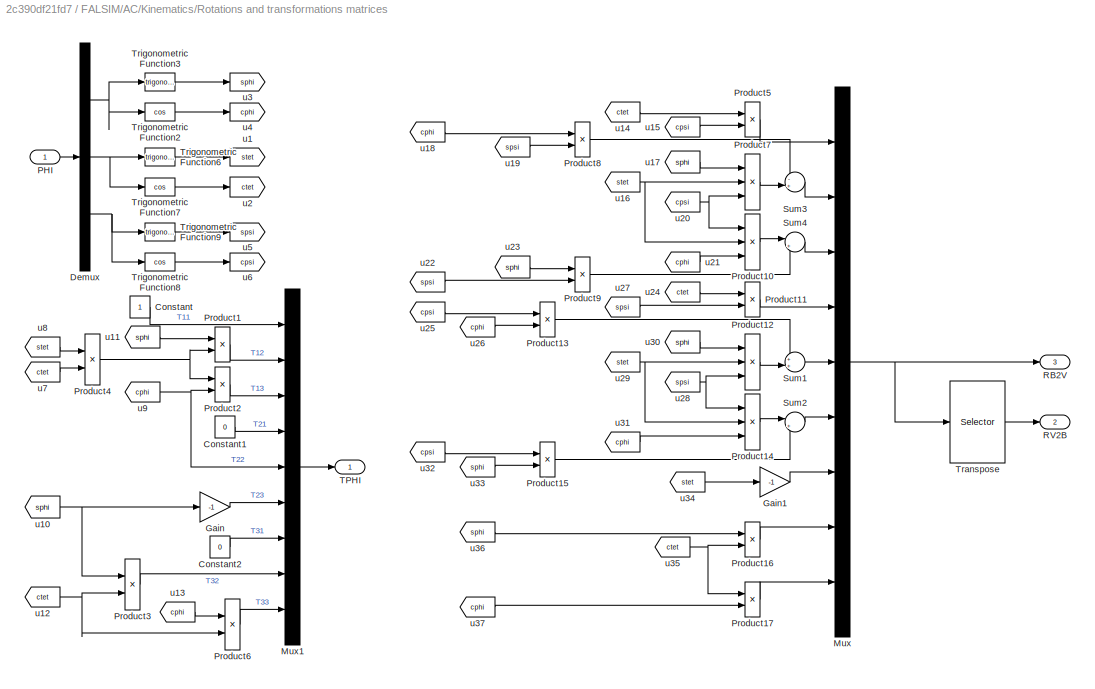
BLOCK [SubSystem] FALSIM/AC/Kinematics/Rotations and transformations matrices
  Ports = [1, 3]
  RequestExecContextInheritance = off
BLOCK [Constant] FALSIM/AC/Kinematics/Rotations and transformations matrices/Constant
BLOCK [Constant] FALSIM/AC/Kinematics/Rotations and transformations matrices/Constant1
  Value = 0
BLOCK [Constant] FALSIM/AC/Kinematics/Rotations and transformations matrices/Constant2
  Value = 0
BLOCK [Demux] FALSIM/AC/Kinematics/Rotations and transformations matrices/Demux
  DisplayOption = bar
  Outputs = 3
  Ports = [1, 3]
BLOCK [Gain] FALSIM/AC/Kinematics/Rotations and transformations matrices/Gain
  Gain = -1
  OutDataTypeStr = Inherit: Inherit via internal rule
  ParamDataTypeStr = Inherit: Inherit via internal rule
  SaturateOnIntegerOverflow = off
BLOCK [Gain] FALSIM/AC/Kinematics/Rotations and transformations matrices/Gain1
  Gain = -1
  OutDataTypeStr = Inherit: Inherit via internal rule
  ParamDataTypeStr = Inherit: Inherit via internal rule
  SaturateOnIntegerOverflow = off
BLOCK [Mux] FALSIM/AC/Kinematics/Rotations and transformations matrices/Mux
  DisplayOption = bar
  Inputs = 9
  Ports = [9, 1]
BLOCK [Mux] FALSIM/AC/Kinematics/Rotations and transformations matrices/Mux1
  DisplayOption = bar
  Inputs = 9
  Ports = [9, 1]
BLOCK [Inport] FALSIM/AC/Kinematics/Rotations and transformations matrices/PHI
  IconDisplay = Port number
BLOCK [Product] FALSIM/AC/Kinematics/Rotations and transformations matrices/Product1
  Ports = [2, 1]
BLOCK [Product] FALSIM/AC/Kinematics/Rotations and transformations matrices/Product10
  Inputs = 3
  Ports = [3, 1]
BLOCK [Product] FALSIM/AC/Kinematics/Rotations and transformations matrices/Product11
  Ports = [2, 1]
BLOCK [Product] FALSIM/AC/Kinematics/Rotations and transformations matrices/Product12
  Inputs = 3
  Ports = [3, 1]
BLOCK [Product] FALSIM/AC/Kinematics/Rotations and transformations matrices/Product13
  Ports = [2, 1]
BLOCK [Product] FALSIM/AC/Kinematics/Rotations and transformations matrices/Product14
  Inputs = 3
  Ports = [3, 1]
BLOCK [Product] FALSIM/AC/Kinematics/Rotations and transformations matrices/Product15
  Ports = [2, 1]
BLOCK [Product] FALSIM/AC/Kinematics/Rotations and transformations matrices/Product16
  Ports = [2, 1]
BLOCK [Product] FALSIM/AC/Kinematics/Rotations and transformations matrices/Product17
  Ports = [2, 1]
BLOCK [Product] FALSIM/AC/Kinematics/Rotations and transformations matrices/Product2
  Ports = [2, 1]
BLOCK [Product] FALSIM/AC/Kinematics/Rotations and transformations matrices/Product3
  Inputs = */
  Ports = [2, 1]
BLOCK [Product] FALSIM/AC/Kinematics/Rotations and transformations matrices/Product4
  Inputs = */
  Ports = [2, 1]
BLOCK [Product] FALSIM/AC/Kinematics/Rotations and transformations matrices/Product5
  Ports = [2, 1]
BLOCK [Product] FALSIM/AC/Kinematics/Rotations and transformations matrices/Product6
  Inputs = */
  Ports = [2, 1]
BLOCK [Product] FALSIM/AC/Kinematics/Rotations and transformations matrices/Product7
  Inputs = 3
  Ports = [3, 1]
BLOCK [Product] FALSIM/AC/Kinematics/Rotations and transformations matrices/Product8
  Ports = [2, 1]
BLOCK [Product] FALSIM/AC/Kinematics/Rotations and transformations matrices/Product9
  Ports = [2, 1]
BLOCK [Outport] FALSIM/AC/Kinematics/Rotations and transformations matrices/RB2V
  IconDisplay = Port number
  Port = 3
BLOCK [Outport] FALSIM/AC/Kinematics/Rotations and transformations matrices/RV2B
  IconDisplay = Port number
  Port = 2
BLOCK [Sum] FALSIM/AC/Kinematics/Rotations and transformations matrices/Sum1
  IconShape = round
  InputSameDT = off
  Inputs = ++|
  OutDataTypeStr = Inherit: Inherit via internal rule
  Ports = [2, 1]
  SaturateOnIntegerOverflow = off
BLOCK [Sum] FALSIM/AC/Kinematics/Rotations and transformations matrices/Sum2
  IconShape = round
  InputSameDT = off
  Inputs = |+-
  OutDataTypeStr = Inherit: Inherit via internal rule
  Ports = [2, 1]
  SaturateOnIntegerOverflow = off
BLOCK [Sum] FALSIM/AC/Kinematics/Rotations and transformations matrices/Sum3
  IconShape = round
  InputSameDT = off
  Inputs = -+|
  OutDataTypeStr = Inherit: Inherit via internal rule
  Ports = [2, 1]
  SaturateOnIntegerOverflow = off
BLOCK [Sum] FALSIM/AC/Kinematics/Rotations and transformations matrices/Sum4
  IconShape = round
  InputSameDT = off
  Inputs = |++
  OutDataTypeStr = Inherit: Inherit via internal rule
  Ports = [2, 1]
  SaturateOnIntegerOverflow = off
BLOCK [Outport] FALSIM/AC/Kinematics/Rotations and transformations matrices/TPHI
  IconDisplay = Port number
BLOCK [Selector] FALSIM/AC/Kinematics/Rotations and transformations matrices/Transpose
  IndexOptions = Index vector (dialog)
  Indices = [1 4 7 2 5 8 3 6 9]
  InputPortWidth = 9
  OutputSizes = 1
  Ports = [1, 1]
BLOCK [Trigonometry] FALSIM/AC/Kinematics/Rotations and transformations matrices/Trigonometric Function2
  Operator = cos
  Ports = [1, 1]
BLOCK [Trigonometry] FALSIM/AC/Kinematics/Rotations and transformations matrices/Trigonometric Function3
  Ports = [1, 1]
BLOCK [Trigonometry] FALSIM/AC/Kinematics/Rotations and transformations matrices/Trigonometric Function6
  Ports = [1, 1]
BLOCK [Trigonometry] FALSIM/AC/Kinematics/Rotations and transformations matrices/Trigonometric Function7
  Operator = cos
  Ports = [1, 1]
BLOCK [Trigonometry] FALSIM/AC/Kinematics/Rotations and transformations matrices/Trigonometric Function8
  Operator = cos
  Ports = [1, 1]
BLOCK [Trigonometry] FALSIM/AC/Kinematics/Rotations and transformations matrices/Trigonometric Function9
  Ports = [1, 1]
BLOCK [Goto] FALSIM/AC/Kinematics/Rotations and transformations matrices/u1
  GotoTag = stet
BLOCK [From] FALSIM/AC/Kinematics/Rotations and transformations matrices/u10
  GotoTag = sphi
BLOCK [From] FALSIM/AC/Kinematics/Rotations and transformations matrices/u11
  GotoTag = sphi
BLOCK [From] FALSIM/AC/Kinematics/Rotations and transformations matrices/u12
  GotoTag = ctet
BLOCK [From] FALSIM/AC/Kinematics/Rotations and transformations matrices/u13
  GotoTag = cphi
BLOCK [From] FALSIM/AC/Kinematics/Rotations and transformations matrices/u14
  GotoTag = ctet
BLOCK [From] FALSIM/AC/Kinematics/Rotations and transformations matrices/u15
  GotoTag = cpsi
BLOCK [From] FALSIM/AC/Kinematics/Rotations and transformations matrices/u16
  GotoTag = stet
BLOCK [From] FALSIM/AC/Kinematics/Rotations and transformations matrices/u17
  GotoTag = sphi
BLOCK [From] FALSIM/AC/Kinematics/Rotations and transformations matrices/u18
  GotoTag = cphi
BLOCK [From] FALSIM/AC/Kinematics/Rotations and transformations matrices/u19
  GotoTag = spsi
BLOCK [Goto] FALSIM/AC/Kinematics/Rotations and transformations matrices/u2
  GotoTag = ctet
BLOCK [From] FALSIM/AC/Kinematics/Rotations and transformations matrices/u20
  GotoTag = cpsi
BLOCK [From] FALSIM/AC/Kinematics/Rotations and transformations matrices/u21
  GotoTag = cphi
BLOCK [From] FALSIM/AC/Kinematics/Rotations and transformations matrices/u22
  GotoTag = spsi
BLOCK [From] FALSIM/AC/Kinematics/Rotations and transformations matrices/u23
  GotoTag = sphi
BLOCK [From] FALSIM/AC/Kinematics/Rotations and transformations matrices/u24
  GotoTag = ctet
BLOCK [From] FALSIM/AC/Kinematics/Rotations and transformations matrices/u25
  GotoTag = cpsi
BLOCK [From] FALSIM/AC/Kinematics/Rotations and transformations matrices/u26
  GotoTag = cphi
BLOCK [From] FALSIM/AC/Kinematics/Rotations and transformations matrices/u27
  GotoTag = spsi
BLOCK [From] FALSIM/AC/Kinematics/Rotations and transformations matrices/u28
  GotoTag = spsi
BLOCK [From] FALSIM/AC/Kinematics/Rotations and transformations matrices/u29
  GotoTag = stet
BLOCK [Goto] FALSIM/AC/Kinematics/Rotations and transformations matrices/u3
  GotoTag = sphi
BLOCK [From] FALSIM/AC/Kinematics/Rotations and transformations matrices/u30
  GotoTag = sphi
BLOCK [From] FALSIM/AC/Kinematics/Rotations and transformations matrices/u31
  GotoTag = cphi
BLOCK [From] FALSIM/AC/Kinematics/Rotations and transformations matrices/u32
  GotoTag = cpsi
BLOCK [From] FALSIM/AC/Kinematics/Rotations and transformations matrices/u33
  GotoTag = sphi
BLOCK [From] FALSIM/AC/Kinematics/Rotations and transformations matrices/u34
  GotoTag = stet
BLOCK [From] FALSIM/AC/Kinematics/Rotations and transformations matrices/u35
  GotoTag = ctet
BLOCK [From] FALSIM/AC/Kinematics/Rotations and transformations matrices/u36
  GotoTag = sphi
BLOCK [From] FALSIM/AC/Kinematics/Rotations and transformations matrices/u37
  GotoTag = cphi
BLOCK [Goto] FALSIM/AC/Kinematics/Rotations and transformations matrices/u4
  GotoTag = cphi
BLOCK [Goto] FALSIM/AC/Kinematics/Rotations and transformations matrices/u5
  GotoTag = spsi
BLOCK [Goto] FALSIM/AC/Kinematics/Rotations and transformations matrices/u6
  GotoTag = cpsi
BLOCK [From] FALSIM/AC/Kinematics/Rotations and transformations matrices/u7
  GotoTag = ctet
BLOCK [From] FALSIM/AC/Kinematics/Rotations and transformations matrices/u8
  GotoTag = stet
BLOCK [From] FALSIM/AC/Kinematics/Rotations and transformations matrices/u9
  GotoTag = cphi
BLOCK [SubSystem] FALSIM/AC/Kinematics/T(PHI)
  Ports = [2, 1]
  RequestExecContextInheritance = off
BLOCK [Mux] FALSIM/AC/Kinematics/T(PHI)/Mux
  DisplayOption = bar
  Inputs = 2
  Ports = [2, 1]
BLOCK [Mux] FALSIM/AC/Kinematics/T(PHI)/Mux1
  DisplayOption = bar
  Inputs = 3
  Ports = [3, 1]
BLOCK [Fcn] FALSIM/AC/Kinematics/T(PHI)/Y1
  Expr = u(1)*u(10)+u(2)*u(11)+u(3)*u(12)
BLOCK [Fcn] FALSIM/AC/Kinematics/T(PHI)/Y2
  Expr = u(4)*u(10)+u(5)*u(11)+u(6)*u(12)
BLOCK [Fcn] FALSIM/AC/Kinematics/T(PHI)/Y3
  Expr = u(7)*u(10)+u(8)*u(11)+u(9)*u(12)
BLOCK [Inport] FALSIM/AC/Kinematics/T(PHI)/x
  IconDisplay = Port number
BLOCK [Inport] FALSIM/AC/Kinematics/T(PHI)/y
  IconDisplay = Port number
  Port = 2
BLOCK [Outport] FALSIM/AC/Kinematics/T(PHI)/z
  IconDisplay = Port number
BLOCK [Inport] FALSIM/AC/Kinematics/V
  IconDisplay = Port number
BLOCK [Outport] FALSIM/AC/Kinematics/X
  IconDisplay = Port number
BLOCK [Outport] FALSIM/AC/Kinematics/Xdot
  IconDisplay = Port number
  Port = 2
BLOCK [Goto] FALSIM/AC/Kinematics/u6
  GotoTag = RV2B
  TagVisibility = global
BLOCK [Outport] FALSIM/AC/Nxyz
  IconDisplay = Port number
BLOCK [Outport] FALSIM/AC/OM
  IconDisplay = Port number
  Port = 3
BLOCK [Outport] FALSIM/AC/PHI
  IconDisplay = Port number
  Port = 5
BLOCK [Selector] FALSIM/AC/Selector10
  IndexOptions = Index vector (dialog)
  Indices = 3
  InputPortWidth = 3
  OutputSizes = 1
  Ports = [1, 1]
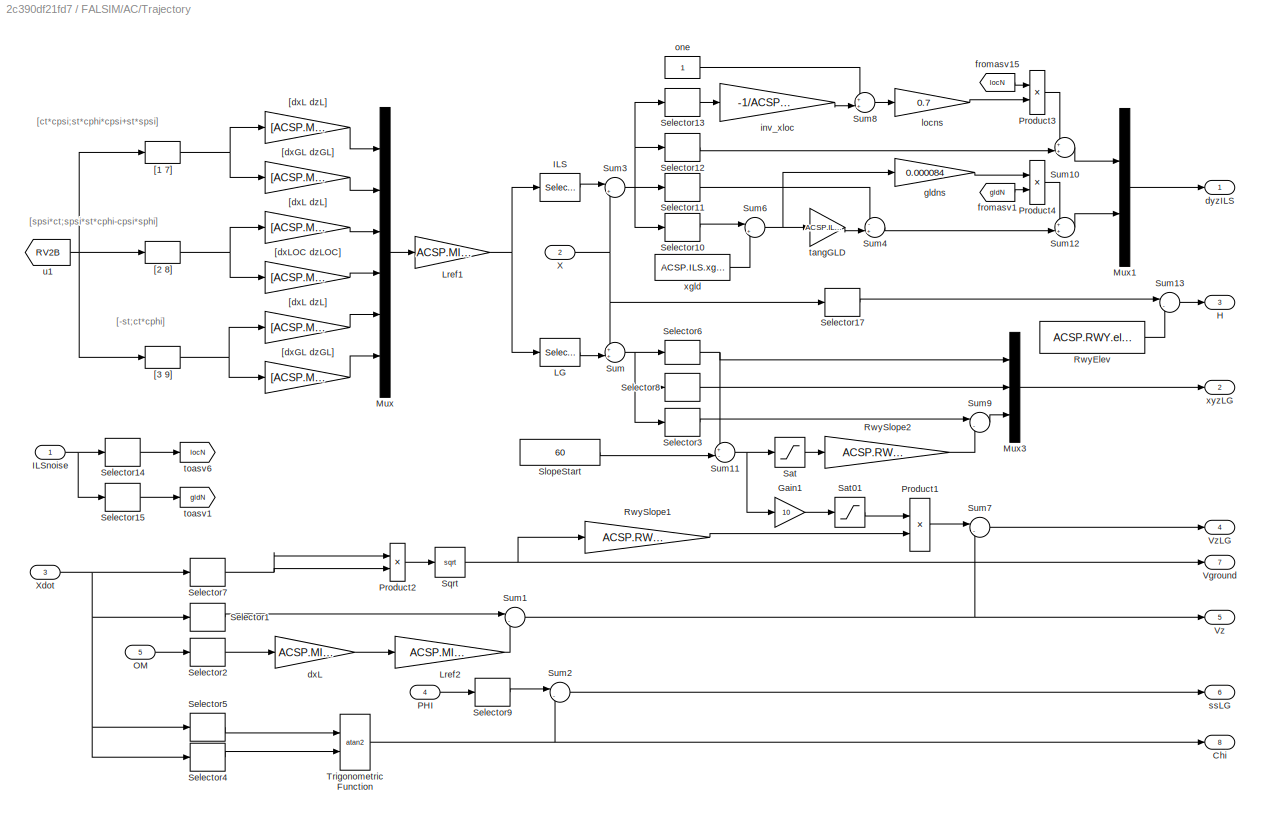
BLOCK [SubSystem] FALSIM/AC/Trajectory
  Ports = [5, 8]
  RequestExecContextInheritance = off
BLOCK [Outport] FALSIM/AC/Trajectory/Chi
  IconDisplay = Port number
  Port = 8
BLOCK [Gain] FALSIM/AC/Trajectory/Gain1
  Gain = 10
  OutDataTypeStr = Inherit: Inherit via internal rule
  ParamDataTypeStr = Inherit: Inherit via internal rule
  SaturateOnIntegerOverflow = off
BLOCK [Outport] FALSIM/AC/Trajectory/H
  IconDisplay = Port number
  Port = 3
BLOCK [Selector] FALSIM/AC/Trajectory/ILS
  IndexOptions = Index vector (dialog)
  Indices = [2 4 6]
  InputPortWidth = 6
  OutputSizes = 1
  Ports = [1, 1]
BLOCK [Inport] FALSIM/AC/Trajectory/ILSnoise
  IconDisplay = Port number
BLOCK [Selector] FALSIM/AC/Trajectory/LG
  IndexOptions = Index vector (dialog)
  Indices = [1 3 5]
  InputPortWidth = 6
  OutputSizes = 1
  Ports = [1, 1]
BLOCK [Gain] FALSIM/AC/Trajectory/Lref1
  Gain = ACSP.MIG.Lref
  OutDataTypeStr = Inherit: Inherit via internal rule
  ParamDataTypeStr = Inherit: Inherit via internal rule
  SaturateOnIntegerOverflow = off
BLOCK [Gain] FALSIM/AC/Trajectory/Lref2
  Gain = ACSP.MIG.Lref
  OutDataTypeStr = Inherit: Inherit via internal rule
  ParamDataTypeStr = Inherit: Inherit via internal rule
  SaturateOnIntegerOverflow = off
BLOCK [Mux] FALSIM/AC/Trajectory/Mux
  DisplayOption = bar
  Inputs = 6
  Ports = [6, 1]
BLOCK [Mux] FALSIM/AC/Trajectory/Mux1
  DisplayOption = bar
  Inputs = 2
  Ports = [2, 1]
BLOCK [Mux] FALSIM/AC/Trajectory/Mux3
  DisplayOption = bar
  Inputs = 3
  Ports = [3, 1]
BLOCK [Inport] FALSIM/AC/Trajectory/OM
  IconDisplay = Port number
  Port = 5
BLOCK [Inport] FALSIM/AC/Trajectory/PHI
  IconDisplay = Port number
  Port = 4
BLOCK [Product] FALSIM/AC/Trajectory/Product1
  Ports = [2, 1]
BLOCK [Product] FALSIM/AC/Trajectory/Product2
  Ports = [2, 1]
BLOCK [Product] FALSIM/AC/Trajectory/Product3
  Ports = [2, 1]
BLOCK [Product] FALSIM/AC/Trajectory/Product4
  Ports = [2, 1]
BLOCK [Constant] FALSIM/AC/Trajectory/RwyElev
  Value = ACSP.RWY.elevation
BLOCK [Gain] FALSIM/AC/Trajectory/RwySlope1
  Gain = ACSP.RWY.slope
  OutDataTypeStr = Inherit: Inherit via internal rule
  ParamDataTypeStr = Inherit: Inherit via internal rule
  SaturateOnIntegerOverflow = off
BLOCK [Gain] FALSIM/AC/Trajectory/RwySlope2
  Gain = ACSP.RWY.slope
  OutDataTypeStr = Inherit: Inherit via internal rule
  ParamDataTypeStr = Inherit: Inherit via internal rule
  SaturateOnIntegerOverflow = off
BLOCK [Saturate] FALSIM/AC/Trajectory/Sat
  InputPortMap = u0
  LowerLimit = 0
  Ports = [1, 1]
  UpperLimit = 1000
BLOCK [Saturate] FALSIM/AC/Trajectory/Sat01
  InputPortMap = u0
  LowerLimit = 0
  Ports = [1, 1]
  UpperLimit = 1
BLOCK [Selector] FALSIM/AC/Trajectory/Selector1
  IndexOptions = Index vector (dialog)
  Indices = 3
  InputPortWidth = 3
  OutputSizes = 1
  Ports = [1, 1]
BLOCK [Selector] FALSIM/AC/Trajectory/Selector10
  IndexOptions = Index vector (dialog)
  Indices = 1
  InputPortWidth = 3
  OutputSizes = 1
  Ports = [1, 1]
BLOCK [Selector] FALSIM/AC/Trajectory/Selector11
  IndexOptions = Index vector (dialog)
  Indices = 3
  InputPortWidth = 3
  OutputSizes = 1
  Ports = [1, 1]
BLOCK [Selector] FALSIM/AC/Trajectory/Selector12
  IndexOptions = Index vector (dialog)
  Indices = 2
  InputPortWidth = 3
  OutputSizes = 1
  Ports = [1, 1]
BLOCK [Selector] FALSIM/AC/Trajectory/Selector13
  IndexOptions = Index vector (dialog)
  Indices = 1
  InputPortWidth = 3
  OutputSizes = 1
  Ports = [1, 1]
BLOCK [Selector] FALSIM/AC/Trajectory/Selector14
  IndexOptions = Index vector (dialog)
  Indices = 1
  InputPortWidth = 2
  OutputSizes = 1
  Ports = [1, 1]
BLOCK [Selector] FALSIM/AC/Trajectory/Selector15
  IndexOptions = Index vector (dialog)
  Indices = 2
  InputPortWidth = 2
  OutputSizes = 1
  Ports = [1, 1]
BLOCK [Selector] FALSIM/AC/Trajectory/Selector17
  IndexOptions = Index vector (dialog)
  Indices = 3
  InputPortWidth = 3
  OutputSizes = 1
  Ports = [1, 1]
BLOCK [Selector] FALSIM/AC/Trajectory/Selector2
  IndexOptions = Index vector (dialog)
  Indices = 2
  InputPortWidth = 3
  OutputSizes = 1
  Ports = [1, 1]
BLOCK [Selector] FALSIM/AC/Trajectory/Selector3
  IndexOptions = Index vector (dialog)
  Indices = 3
  InputPortWidth = 3
  OutputSizes = 1
  Ports = [1, 1]
BLOCK [Selector] FALSIM/AC/Trajectory/Selector4
  IndexOptions = Index vector (dialog)
  Indices = 1
  InputPortWidth = 3
  OutputSizes = 1
  Ports = [1, 1]
BLOCK [Selector] FALSIM/AC/Trajectory/Selector5
  IndexOptions = Index vector (dialog)
  Indices = 2
  InputPortWidth = 3
  OutputSizes = 1
  Ports = [1, 1]
BLOCK [Selector] FALSIM/AC/Trajectory/Selector6
  IndexOptions = Index vector (dialog)
  Indices = 1
  InputPortWidth = 3
  OutputSizes = 1
  Ports = [1, 1]
BLOCK [Selector] FALSIM/AC/Trajectory/Selector7
  IndexOptions = Index vector (dialog)
  Indices = 1
  InputPortWidth = 3
  OutputSizes = 1
  Ports = [1, 1]
BLOCK [Selector] FALSIM/AC/Trajectory/Selector8
  IndexOptions = Index vector (dialog)
  Indices = 2
  InputPortWidth = 3
  OutputSizes = 1
  Ports = [1, 1]
BLOCK [Selector] FALSIM/AC/Trajectory/Selector9
  IndexOptions = Index vector (dialog)
  Indices = 3
  InputPortWidth = 3
  OutputSizes = 1
  Ports = [1, 1]
BLOCK [Constant] FALSIM/AC/Trajectory/SlopeStart
  Value = 60
BLOCK [Sqrt] FALSIM/AC/Trajectory/Sqrt
BLOCK [Sum] FALSIM/AC/Trajectory/Sum
  IconShape = round
  InputSameDT = off
  Inputs = ++|
  OutDataTypeStr = Inherit: Inherit via internal rule
  Ports = [2, 1]
  SaturateOnIntegerOverflow = off
BLOCK [Sum] FALSIM/AC/Trajectory/Sum1
  IconShape = round
  InputSameDT = off
  Inputs = |-+
  OutDataTypeStr = Inherit: Inherit via internal rule
  Ports = [2, 1]
  SaturateOnIntegerOverflow = off
BLOCK [Sum] FALSIM/AC/Trajectory/Sum10
  IconShape = round
  InputSameDT = off
  Inputs = ++|
  OutDataTypeStr = Inherit: Inherit via internal rule
  Ports = [2, 1]
  SaturateOnIntegerOverflow = off
BLOCK [Sum] FALSIM/AC/Trajectory/Sum11
  IconShape = round
  InputSameDT = off
  Inputs = +-|
  OutDataTypeStr = Inherit: Inherit via internal rule
  Ports = [2, 1]
  SaturateOnIntegerOverflow = off
BLOCK [Sum] FALSIM/AC/Trajectory/Sum12
  IconShape = round
  InputSameDT = off
  Inputs = ++|
  OutDataTypeStr = Inherit: Inherit via internal rule
  Ports = [2, 1]
  SaturateOnIntegerOverflow = off
BLOCK [Sum] FALSIM/AC/Trajectory/Sum13
  IconShape = round
  InputSameDT = off
  Inputs = |-+
  OutDataTypeStr = Inherit: Inherit via internal rule
  Ports = [2, 1]
  SaturateOnIntegerOverflow = off
BLOCK [Sum] FALSIM/AC/Trajectory/Sum2
  IconShape = round
  InputSameDT = off
  Inputs = |-+
  OutDataTypeStr = Inherit: Inherit via internal rule
  Ports = [2, 1]
  SaturateOnIntegerOverflow = off
BLOCK [Sum] FALSIM/AC/Trajectory/Sum3
  IconShape = round
  InputSameDT = off
  Inputs = |++
  OutDataTypeStr = Inherit: Inherit via internal rule
  Ports = [2, 1]
  SaturateOnIntegerOverflow = off
BLOCK [Sum] FALSIM/AC/Trajectory/Sum4
  IconShape = round
  InputSameDT = off
  Inputs = -+|
  OutDataTypeStr = Inherit: Inherit via internal rule
  Ports = [2, 1]
  SaturateOnIntegerOverflow = off
BLOCK [Sum] FALSIM/AC/Trajectory/Sum6
  IconShape = round
  InputSameDT = off
  Inputs = |+-
  OutDataTypeStr = Inherit: Inherit via internal rule
  Ports = [2, 1]
  SaturateOnIntegerOverflow = off
BLOCK [Sum] FALSIM/AC/Trajectory/Sum7
  IconShape = round
  InputSameDT = off
  Inputs = |-+
  OutDataTypeStr = Inherit: Inherit via internal rule
  Ports = [2, 1]
  SaturateOnIntegerOverflow = off
BLOCK [Sum] FALSIM/AC/Trajectory/Sum8
  IconShape = round
  InputSameDT = off
  Inputs = ++|
  OutDataTypeStr = Inherit: Inherit via internal rule
  Ports = [2, 1]
  SaturateOnIntegerOverflow = off
BLOCK [Sum] FALSIM/AC/Trajectory/Sum9
  IconShape = round
  InputSameDT = off
  Inputs = |--
  OutDataTypeStr = Inherit: Inherit via internal rule
  Ports = [2, 1]
  SaturateOnIntegerOverflow = off
BLOCK [Trigonometry] FALSIM/AC/Trajectory/Trigonometric Function
  Operator = atan2
  Ports = [2, 1]
BLOCK [Outport] FALSIM/AC/Trajectory/Vground
  IconDisplay = Port number
  Port = 7
BLOCK [Outport] FALSIM/AC/Trajectory/Vz
  IconDisplay = Port number
  Port = 5
BLOCK [Outport] FALSIM/AC/Trajectory/VzLG
  IconDisplay = Port number
  Port = 4
BLOCK [Inport] FALSIM/AC/Trajectory/X
  IconDisplay = Port number
  Port = 2
BLOCK [Inport] FALSIM/AC/Trajectory/Xdot
  IconDisplay = Port number
  Port = 3
BLOCK [Selector] FALSIM/AC/Trajectory/[1 7]
  IndexOptions = Index vector (dialog)
  Indices = [1 7]
  InputPortWidth = 9
  OutputSizes = 1
  Ports = [1, 1]
BLOCK [Selector] FALSIM/AC/Trajectory/[2 8]
  IndexOptions = Index vector (dialog)
  Indices = [2 8]
  InputPortWidth = 9
  OutputSizes = 1
  Ports = [1, 1]
BLOCK [Selector] FALSIM/AC/Trajectory/[3 9]
  IndexOptions = Index vector (dialog)
  Indices = [3 9]
  InputPortWidth = 9
  OutputSizes = 1
  Ports = [1, 1]
BLOCK [Gain] FALSIM/AC/Trajectory/[dxGL   dzGL]
  Gain = [ACSP.MIG.dxGL ACSP.MIG.dzGL]
  Multiplication = Matrix(K*u)
  OutDataTypeStr = Inherit: Inherit via internal rule
  ParamDataTypeStr = Inherit: Inherit via internal rule
  SaturateOnIntegerOverflow = off
BLOCK [Gain] FALSIM/AC/Trajectory/[dxGL  dzGL]
  Gain = [ACSP.MIG.dxGL ACSP.MIG.dzGL]
  Multiplication = Matrix(K*u)
  OutDataTypeStr = Inherit: Inherit via internal rule
  ParamDataTypeStr = Inherit: Inherit via internal rule
  SaturateOnIntegerOverflow = off
BLOCK [Gain] FALSIM/AC/Trajectory/[dxL   dzL]
  Gain = [ACSP.MIG.dxL ACSP.MIG.dzL]
  Multiplication = Matrix(K*u)
  OutDataTypeStr = Inherit: Inherit via internal rule
  ParamDataTypeStr = Inherit: Inherit via internal rule
  SaturateOnIntegerOverflow = off
BLOCK [Gain] FALSIM/AC/Trajectory/[dxL  dzL]
  Gain = [ACSP.MIG.dxL ACSP.MIG.dzL]
  Multiplication = Matrix(K*u)
  OutDataTypeStr = Inherit: Inherit via internal rule
  ParamDataTypeStr = Inherit: Inherit via internal rule
  SaturateOnIntegerOverflow = off
BLOCK [Gain] FALSIM/AC/Trajectory/[dxL dzL]
  Gain = [ACSP.MIG.dxL ACSP.MIG.dzL]
  Multiplication = Matrix(K*u)
  OutDataTypeStr = Inherit: Inherit via internal rule
  ParamDataTypeStr = Inherit: Inherit via internal rule
  SaturateOnIntegerOverflow = off
BLOCK [Gain] FALSIM/AC/Trajectory/[dxLOC  dzLOC]
  Gain = [ACSP.MIG.dxLO ACSP.MIG.dzLO]
  Multiplication = Matrix(K*u)
  OutDataTypeStr = Inherit: Inherit via internal rule
  ParamDataTypeStr = Inherit: Inherit via internal rule
  SaturateOnIntegerOverflow = off
BLOCK [Gain] FALSIM/AC/Trajectory/dxL
  Gain = ACSP.MIG.dxL
  Multiplication = Matrix(K*u)
  OutDataTypeStr = Inherit: Inherit via internal rule
  ParamDataTypeStr = Inherit: Inherit via internal rule
  SaturateOnIntegerOverflow = off
BLOCK [Outport] FALSIM/AC/Trajectory/dyzILS
  IconDisplay = Port number
BLOCK [From] FALSIM/AC/Trajectory/fromasv1
  GotoTag = gldN
BLOCK [From] FALSIM/AC/Trajectory/fromasv15
  GotoTag = locN
BLOCK [Gain] FALSIM/AC/Trajectory/gldns
  Gain = 0.000084
  OutDataTypeStr = Inherit: Inherit via internal rule
  ParamDataTypeStr = Inherit: Inherit via internal rule
  SaturateOnIntegerOverflow = off
BLOCK [Gain] FALSIM/AC/Trajectory/inv_xloc
  Gain = -1/ACSP.ILS.xloc
  OutDataTypeStr = Inherit: Inherit via internal rule
  ParamDataTypeStr = Inherit: Inherit via internal rule
  SaturateOnIntegerOverflow = off
BLOCK [Gain] FALSIM/AC/Trajectory/locns
  Gain = 0.7
  OutDataTypeStr = Inherit: Inherit via internal rule
  ParamDataTypeStr = Inherit: Inherit via internal rule
  SaturateOnIntegerOverflow = off
BLOCK [Constant] FALSIM/AC/Trajectory/one
BLOCK [Outport] FALSIM/AC/Trajectory/ssLG
  IconDisplay = Port number
  Port = 6
BLOCK [Gain] FALSIM/AC/Trajectory/tangGLD
  Gain = ACSP.ILS.tanggld
  OutDataTypeStr = Inherit: Inherit via internal rule
  ParamDataTypeStr = Inherit: Inherit via internal rule
  SaturateOnIntegerOverflow = off
BLOCK [Goto] FALSIM/AC/Trajectory/toasv1
  GotoTag = gldN
BLOCK [Goto] FALSIM/AC/Trajectory/toasv6
  GotoTag = locN
BLOCK [From] FALSIM/AC/Trajectory/u1
  GotoTag = RV2B
  TagVisibility = global
BLOCK [Constant] FALSIM/AC/Trajectory/xgld
  Value = ACSP.ILS.xgld
BLOCK [Outport] FALSIM/AC/Trajectory/xyzLG
  IconDisplay = Port number
  Port = 2
BLOCK [Inport] FALSIM/AC/U
  IconDisplay = Port number
BLOCK [Outport] FALSIM/AC/V
  IconDisplay = Port number
  Port = 2
BLOCK [Outport] FALSIM/AC/Va
  IconDisplay = Port number
  Port = 8
BLOCK [Outport] FALSIM/AC/Vc
  IconDisplay = Port number
  Port = 7
BLOCK [Outport] FALSIM/AC/Vground
  IconDisplay = Port number
  Port = 9
BLOCK [Outport] FALSIM/AC/Vz
  IconDisplay = Port number
  Port = 10
BLOCK [Outport] FALSIM/AC/VzLG
  IconDisplay = Port number
  Port = 12
BLOCK [Inport] FALSIM/AC/Wind
  IconDisplay = Port number
  Port = 2
  PortDimensions = 3
BLOCK [SubSystem] FALSIM/AC/Wind and ATM
  Ports = [2, 4]
  RequestExecContextInheritance = off
BLOCK [Mux] FALSIM/AC/Wind and ATM/Mux
  DisplayOption = bar
  Inputs = 2
  Ports = [2, 1]
BLOCK [Product] FALSIM/AC/Wind and ATM/Product1
  Inputs = */
  Ports = [2, 1]
BLOCK [Product] FALSIM/AC/Wind and ATM/Product2
  Ports = [2, 1]
BLOCK [Selector] FALSIM/AC/Wind and ATM/Selector1
  IndexOptions = Index vector (dialog)
  Indices = 2
  InputPortWidth = 3
  OutputSizes = 1
  Ports = [1, 1]
BLOCK [Selector] FALSIM/AC/Wind and ATM/Selector2
  IndexOptions = Index vector (dialog)
  Indices = 3
  InputPortWidth = 3
  OutputSizes = 1
  Ports = [1, 1]
BLOCK [Selector] FALSIM/AC/Wind and ATM/Selector3
  IndexOptions = Index vector (dialog)
  Indices = 1
  InputPortWidth = 3
  OutputSizes = 1
  Ports = [1, 1]
BLOCK [Sqrt] FALSIM/AC/Wind and ATM/Sqrt
BLOCK [Sum] FALSIM/AC/Wind and ATM/Sum of Elements
  InputSameDT = off
  Inputs = +
  OutDataTypeStr = Inherit: Inherit via internal rule
  Ports = [1, 1]
  SaturateOnIntegerOverflow = off
BLOCK [Sum] FALSIM/AC/Wind and ATM/Sum1
  IconShape = round
  InputSameDT = off
  Inputs = +-|
  OutDataTypeStr = Inherit: Inherit via internal rule
  Ports = [2, 1]
  SaturateOnIntegerOverflow = off
BLOCK [Trigonometry] FALSIM/AC/Wind and ATM/Trigonometric Function
  Operator = atan2
  Ports = [2, 1]
BLOCK [Trigonometry] FALSIM/AC/Wind and ATM/Trigonometric Function1
  Operator = asin
  Ports = [1, 1]
BLOCK [Inport] FALSIM/AC/Wind and ATM/V
  IconDisplay = Port number
BLOCK [SubSystem] FALSIM/AC/Wind and ATM/V2B
  Ports = [2, 1]
  RequestExecContextInheritance = off
BLOCK [Mux] FALSIM/AC/Wind and ATM/V2B/Mux
  DisplayOption = bar
  Inputs = 2
  Ports = [2, 1]
BLOCK [Mux] FALSIM/AC/Wind and ATM/V2B/Mux1
  DisplayOption = bar
  Inputs = 3
  Ports = [3, 1]
BLOCK [Fcn] FALSIM/AC/Wind and ATM/V2B/Y1
  Expr = u(1)*u(10)+u(2)*u(11)+u(3)*u(12)
BLOCK [Fcn] FALSIM/AC/Wind and ATM/V2B/Y2
  Expr = u(4)*u(10)+u(5)*u(11)+u(6)*u(12)
BLOCK [Fcn] FALSIM/AC/Wind and ATM/V2B/Y3
  Expr = u(7)*u(10)+u(8)*u(11)+u(9)*u(12)
BLOCK [Inport] FALSIM/AC/Wind and ATM/V2B/x
  IconDisplay = Port number
BLOCK [Inport] FALSIM/AC/Wind and ATM/V2B/y
  IconDisplay = Port number
  Port = 2
BLOCK [Outport] FALSIM/AC/Wind and ATM/V2B/z
  IconDisplay = Port number
BLOCK [Outport] FALSIM/AC/Wind and ATM/Va
  IconDisplay = Port number
  Port = 3
BLOCK [Gain] FALSIM/AC/Wind and ATM/Va2Vc
  Gain = ACSP.ATM.va2vc
  OutDataTypeStr = Inherit: Inherit via internal rule
  ParamDataTypeStr = Inherit: Inherit via internal rule
  SaturateOnIntegerOverflow = off
BLOCK [Outport] FALSIM/AC/Wind and ATM/Vc
  IconDisplay = Port number
  Port = 2
BLOCK [Inport] FALSIM/AC/Wind and ATM/Wind
  IconDisplay = Port number
  Port = 2
BLOCK [Outport] FALSIM/AC/Wind and ATM/ab
  IconDisplay = Port number
BLOCK [Gain] FALSIM/AC/Wind and ATM/half
  Gain = 0.5
BLOCK [Outport] FALSIM/AC/Wind and ATM/qd
  IconDisplay = Port number
  Port = 4
BLOCK [Gain] FALSIM/AC/Wind and ATM/rho
  Gain = ACSP.ATM.rho
  OutDataTypeStr = Inherit: Inherit via internal rule
  ParamDataTypeStr = Inherit: Inherit via internal rule
  SaturateOnIntegerOverflow = off
BLOCK [From] FALSIM/AC/Wind and ATM/u8
  GotoTag = RV2B
  TagVisibility = global
BLOCK [Outport] FALSIM/AC/X
  IconDisplay = Port number
  Port = 4
BLOCK [Outport] FALSIM/AC/ab
  IconDisplay = Port number
  Port = 6
BLOCK [Outport] FALSIM/AC/dyzILS
  IconDisplay = Port number
  Port = 16
BLOCK [Outport] FALSIM/AC/ssLG
  IconDisplay = Port number
  Port = 14
BLOCK [Outport] FALSIM/AC/xyzLG
  IconDisplay = Port number
  Port = 13
BLOCK [BusCreator] FALSIM/Bus Creator
  DisplayOption = bar
  InheritFromInputs = on
  Inputs = 12
  Ports = [12, 1]
BLOCK [BusCreator] FALSIM/Bus Creator1
  DisplayOption = bar
  InheritFromInputs = on
  Inputs = 5
  Ports = [5, 1]
BLOCK [BusCreator] FALSIM/Bus Creator2
  DisplayOption = bar
  InheritFromInputs = on
  Inputs = 3
  Ports = [3, 1]
BLOCK [BusCreator] FALSIM/Bus Creator3
  DisplayOption = bar
  InheritFromInputs = on
  Inputs = 3
  Ports = [3, 1]
BLOCK [BusCreator] FALSIM/Bus Creator4
  DisplayOption = bar
  InheritFromInputs = on
  Inputs = 3
  Ports = [3, 1]
BLOCK [BusCreator] FALSIM/Bus Creator5
  DisplayOption = bar
  InheritFromInputs = on
  Inputs = 2
  Ports = [2, 1]
BLOCK [BusCreator] FALSIM/Bus Creator6
  DisplayOption = bar
  InheritFromInputs = on
  Inputs = 4
  Ports = [4, 1]
BLOCK [BusCreator] FALSIM/Bus Creator7
  DisplayOption = bar
  InheritFromInputs = on
  Inputs = 5
  Ports = [5, 1]
BLOCK [Demux] FALSIM/Demux1
  DisplayOption = bar
  Outputs = 3
  Ports = [1, 3]
BLOCK [Demux] FALSIM/Demux2
  DisplayOption = bar
  Outputs = 3
  Ports = [1, 3]
BLOCK [Demux] FALSIM/Demux3
  DisplayOption = bar
  Outputs = 3
  Ports = [1, 3]
BLOCK [Demux] FALSIM/Demux4
  DisplayOption = bar
  Outputs = 2
  Ports = [1, 2]
BLOCK [Demux] FALSIM/Demux5
  DisplayOption = bar
  Ports = [1, 4]
BLOCK [SubSystem] FALSIM/Engines and Actuators
  Ports = [2, 2]
  RequestExecContextInheritance = off
BLOCK [SubSystem] FALSIM/Engines and Actuators/Actuators
  Ports = [1, 1]
  RequestExecContextInheritance = off
BLOCK [Gain] FALSIM/Engines and Actuators/Actuators/Gain2
  Gain = 1./ACSP.ACT.tau
  OutDataTypeStr = Inherit: Inherit via internal rule
  ParamDataTypeStr = Inherit: Inherit via internal rule
  SaturateOnIntegerOverflow = off
BLOCK [Integrator] FALSIM/Engines and Actuators/Actuators/Int_ASD
  ContinuousStateAttributes = 'xASD'
  Ports = [1, 1]
BLOCK [Saturate] FALSIM/Engines and Actuators/Actuators/ML [55 25 30]
  InputPortMap = u0
  LowerLimit = -ACSP.ACT.ML
  Ports = [1, 1]
  UpperLimit = ACSP.ACT.ML
BLOCK [Saturate] FALSIM/Engines and Actuators/Actuators/RL [60 20 30]
  InputPortMap = u0
  LowerLimit = -ACSP.ACT.RL
  Ports = [1, 1]
  UpperLimit = ACSP.ACT.RL
BLOCK [Sum] FALSIM/Engines and Actuators/Actuators/Sum
  IconShape = round
  InputSameDT = off
  Inputs = |+-
  OutDataTypeStr = Inherit: Inherit via internal rule
  Ports = [2, 1]
  SaturateOnIntegerOverflow = off
BLOCK [Outport] FALSIM/Engines and Actuators/Actuators/delta
  IconDisplay = Port number
BLOCK [Inport] FALSIM/Engines and Actuators/Actuators/deltac
  IconDisplay = Port number
BLOCK [SubSystem] FALSIM/Engines and Actuators/Engines
  Ports = [2, 2]
  RequestExecContextInheritance = off
BLOCK [Saturate] FALSIM/Engines and Actuators/Engines/EML
  InputPortMap = u0
  LowerLimit = ACSP.ENG.LML
  Ports = [1, 1]
  UpperLimit = ACSP.ENG.UML
BLOCK [Saturate] FALSIM/Engines and Actuators/Engines/ERL
  InputPortMap = u0
  LowerLimit = -ACSP.ENG.RL
  Ports = [1, 1]
  UpperLimit = ACSP.ENG.RL
BLOCK [Gain] FALSIM/Engines and Actuators/Engines/Gain1
  Gain = 1/ACSP.ENG.tau
  OutDataTypeStr = Inherit: Inherit via internal rule
  ParamDataTypeStr = Inherit: Inherit via internal rule
  SaturateOnIntegerOverflow = off
BLOCK [Gain] FALSIM/Engines and Actuators/Engines/Gain2
  Gain = ACSP.ENG.Ga
  OutDataTypeStr = Inherit: Inherit via internal rule
  ParamDataTypeStr = Inherit: Inherit via internal rule
  SaturateOnIntegerOverflow = off
BLOCK [Constant] FALSIM/Engines and Actuators/Engines/Gb
  Value = ACSP.ENG.Gb
BLOCK [Integrator] FALSIM/Engines and Actuators/Engines/Int_ENG
  ContinuousStateAttributes = 'xENG'
  Ports = [1, 1]
BLOCK [Sum] FALSIM/Engines and Actuators/Engines/Sum
  IconShape = round
  InputSameDT = off
  Inputs = |+-
  OutDataTypeStr = Inherit: Inherit via internal rule
  Ports = [2, 1]
  SaturateOnIntegerOverflow = off
BLOCK [Sum] FALSIM/Engines and Actuators/Engines/Sum1
  IconShape = round
  InputSameDT = off
  Inputs = +-|
  OutDataTypeStr = Inherit: Inherit via internal rule
  Ports = [2, 1]
  SaturateOnIntegerOverflow = off
BLOCK [Sum] FALSIM/Engines and Actuators/Engines/Sum2
  IconShape = round
  InputSameDT = off
  Inputs = |++
  OutDataTypeStr = Inherit: Inherit via internal rule
  Ports = [2, 1]
  SaturateOnIntegerOverflow = off
BLOCK [Sum] FALSIM/Engines and Actuators/Engines/Sum3
  IconShape = round
  InputSameDT = off
  Inputs = ++|
  OutDataTypeStr = Inherit: Inherit via internal rule
  Ports = [2, 1]
  SaturateOnIntegerOverflow = off
BLOCK [Outport] FALSIM/Engines and Actuators/Engines/TH
  IconDisplay = Port number
BLOCK [Outport] FALSIM/Engines and Actuators/Engines/epr
  IconDisplay = Port number
  Port = 2
BLOCK [Inport] FALSIM/Engines and Actuators/Engines/epr0
  IconDisplay = Port number
BLOCK [Inport] FALSIM/Engines and Actuators/Engines/eprc
  IconDisplay = Port number
  Port = 2
BLOCK [Mux] FALSIM/Engines and Actuators/Mux
  DisplayOption = bar
  Inputs = 2
  Ports = [2, 1]
BLOCK [Mux] FALSIM/Engines and Actuators/Mux1
  DisplayOption = bar
  Inputs = 2
  Ports = [2, 1]
BLOCK [Sum] FALSIM/Engines and Actuators/Sum3
  IconShape = round
  InputSameDT = off
  Inputs = |++
  OutDataTypeStr = Inherit: Inherit via internal rule
  Ports = [2, 1]
  SaturateOnIntegerOverflow = off
BLOCK [Outport] FALSIM/Engines and Actuators/U
  IconDisplay = Port number
  Port = 2
BLOCK [Inport] FALSIM/Engines and Actuators/deflections
  IconDisplay = Port number
  Port = 2
BLOCK [Constant] FALSIM/Engines and Actuators/delta0
  Value = ACSP.U0.delta
BLOCK [Constant] FALSIM/Engines and Actuators/epr0
  Value = ACSP.U0.epr
BLOCK [Inport] FALSIM/Engines and Actuators/eprc
  IconDisplay = Port number
BLOCK [Outport] FALSIM/Engines and Actuators/states
  IconDisplay = Port number
BLOCK [Constant] FALSIM/Gb
  Value = ACSP.U0.wind
BLOCK [Inport] FALSIM/ILSnoise
  IconDisplay = Port number
  Port = 4
  PortDimensions = 2
BLOCK [Selector] FALSIM/Selector1
  IndexOptions = Index vector (dialog)
  Indices = 2
  InputPortWidth = 3
  OutputSizes = 1
  Ports = [1, 1]
BLOCK [Selector] FALSIM/Selector10
  IndexOptions = Index vector (dialog)
  Indices = 3
  InputPortWidth = 3
  OutputSizes = 1
  Ports = [1, 1]
BLOCK [Selector] FALSIM/Selector2
  IndexOptions = Index vector (dialog)
  Indices = 1
  InputPortWidth = 3
  OutputSizes = 1
  Ports = [1, 1]
BLOCK [Selector] FALSIM/Selector3
  IndexOptions = Index vector (dialog)
  Indices = 1
  InputPortWidth = 2
  OutputSizes = 1
  Ports = [1, 1]
BLOCK [Selector] FALSIM/Selector4
  IndexOptions = Index vector (dialog)
  Indices = 2
  InputPortWidth = 2
  OutputSizes = 1
  Ports = [1, 1]
BLOCK [Sum] FALSIM/Sum3
  IconShape = round
  InputSameDT = off
  Inputs = ++|
  OutDataTypeStr = Inherit: Inherit via internal rule
  Ports = [2, 1]
  SaturateOnIntegerOverflow = off
BLOCK [Inport] FALSIM/delta [2-4]
  IconDisplay = Port number
  Port = 2
  PortDimensions = 3
BLOCK [Inport] FALSIM/eprc [1]
  IconDisplay = Port number
BLOCK [From] FALSIM/fromasv14
  GotoTag = PHI
BLOCK [From] FALSIM/fromasv15
  GotoTag = OM
BLOCK [From] FALSIM/fromasv16
  GotoTag = Nxyz
BLOCK [From] FALSIM/fromasv18
  GotoTag = DLG
BLOCK [From] FALSIM/fromasv19
  GotoTag = yLG
BLOCK [From] FALSIM/fromasv2
  GotoTag = X
BLOCK [From] FALSIM/fromasv20
  GotoTag = ssLG
BLOCK [From] FALSIM/fromasv21
  GotoTag = xEA
BLOCK [From] FALSIM/fromasv25
  GotoTag = ab
BLOCK [From] FALSIM/fromasv3
  GotoTag = PHI
BLOCK [From] FALSIM/fromasv4
  GotoTag = OM
BLOCK [From] FALSIM/fromasv5
  GotoTag = V
BLOCK [From] FALSIM/fromasv8
  GotoTag = ab
BLOCK [From] FALSIM/fromasv9
  GotoTag = VzLG
BLOCK [Goto] FALSIM/toasv1
  GotoTag = X
BLOCK [Goto] FALSIM/toasv10
  GotoTag = VzLG
BLOCK [Goto] FALSIM/toasv13
  GotoTag = xEA
BLOCK [Goto] FALSIM/toasv14
  GotoTag = yLG
BLOCK [Goto] FALSIM/toasv15
  GotoTag = ssLG
BLOCK [Goto] FALSIM/toasv19
  GotoTag = DLG
BLOCK [Goto] FALSIM/toasv2
  GotoTag = V
BLOCK [Goto] FALSIM/toasv3
  GotoTag = OM
BLOCK [Goto] FALSIM/toasv4
  GotoTag = PHI
BLOCK [Goto] FALSIM/toasv5
  GotoTag = Nxyz
BLOCK [Goto] FALSIM/toasv6
  GotoTag = ab
BLOCK [Inport] FALSIM/wind [5-7]
  IconDisplay = Port number
  Port = 3
  PortDimensions = 3
BLOCK [Outport] FALSIM/x
  IconDisplay = Port number
BLOCK [Outport] FALSIM/ym
  IconDisplay = Port number
  Port = 3
BLOCK [Outport] FALSIM/ys
  IconDisplay = Port number
  Port = 2
BLOCK [Constant] HSTOP
  Value = 0
BLOCK [SubSystem] ILS Noise
  Ports = [0, 1]
  RequestExecContextInheritance = off
BLOCK [Mux] ILS Noise/Mux
  DisplayOption = bar
  Inputs = 2
  Ports = [2, 1]
BLOCK [RandomNumber] ILS Noise/Random Number
  SampleTime = 0.05
  Seed = ACSP.NOISE.seedLOC
BLOCK [RandomNumber] ILS Noise/Random Number3
  SampleTime = 0.05
  Seed = ACSP.NOISE.seedGLD
BLOCK [Sum] ILS Noise/Sum12
  IconShape = round
  InputSameDT = off
  Inputs = ++|
  OutDataTypeStr = Inherit: Inherit via internal rule
  Ports = [2, 1]
  SaturateOnIntegerOverflow = off
BLOCK [Outport] ILS Noise/W
  IconDisplay = Port number
BLOCK [Constant] ILS Noise/bias
  Value = ACSP.NOISE.devLOC
BLOCK [Gain] ILS Noise/sigGLD
  Gain = ACSP.NOISE.sigGLD
  OutDataTypeStr = Inherit: Inherit via internal rule
  ParamDataTypeStr = Inherit: Inherit via internal rule
  SaturateOnIntegerOverflow = off
BLOCK [Gain] ILS Noise/sigLOC
  Gain = ACSP.NOISE.sigLOC
  OutDataTypeStr = Inherit: Inherit via internal rule
  ParamDataTypeStr = Inherit: Inherit via internal rule
  SaturateOnIntegerOverflow = off
BLOCK [TransferFcn] ILS Noise/srqt(2*tau//ts)*1//(1+tau.s)
  Denominator = [0.5 1]
  Numerator = [4.5]
BLOCK [TransferFcn] ILS Noise/srqt(2*tau//ts)*1//(1+tau.s)1
  Denominator = [0.5 1]
  Numerator = [4.5]
BLOCK [Mux] Mux
  DisplayOption = bar
  Inputs = 2
  Ports = [2, 1]
BLOCK [Mux] Mux1
  DisplayOption = bar
  Inputs = 2
  Ports = [2, 1]
BLOCK [SubSystem] SCOPES
  Ports = [5, 1]
  RequestExecContextInheritance = off
BLOCK [BusCreator] SCOPES/Bus Creator
  DisplayOption = bar
  InheritFromInputs = on
  Inputs = 4
  Ports = [4, 1]
BLOCK [BusSelector] SCOPES/Bus Selector1
  OutputAsBus = off
  OutputSignals = meas.HLG
  Ports = [1, 1]
BLOCK [BusSelector] SCOPES/Bus Selector10
  OutputAsBus = off
  OutputSignals = sim.YLG
  Ports = [1, 1]
BLOCK [BusSelector] SCOPES/Bus Selector11
  OutputAsBus = off
  OutputSignals = meas.H
  Ports = [1, 1]
BLOCK [BusSelector] SCOPES/Bus Selector2
  OutputAsBus = off
  OutputSignals = wind
  Ports = [1, 1]
BLOCK [BusSelector] SCOPES/Bus Selector3
  OutputAsBus = off
  OutputSignals = sim.DLG
  Ports = [1, 1]
BLOCK [BusSelector] SCOPES/Bus Selector4
  OutputAsBus = off
  OutputSignals = meas.Vc,sim.VzLG
  Ports = [1, 2]
BLOCK [BusSelector] SCOPES/Bus Selector5
  OutputAsBus = off
  OutputSignals = sim.beta,meas.PHI.phi
  Ports = [1, 2]
BLOCK [BusSelector] SCOPES/Bus Selector6
  OutputAsBus = off
  OutputSignals = meas.ILS.dy
  Ports = [1, 1]
BLOCK [BusSelector] SCOPES/Bus Selector7
  OutputAsBus = off
  OutputSignals = meas.ILS.dz
  Ports = [1, 1]
BLOCK [BusSelector] SCOPES/Bus Selector8
  OutputAsBus = off
  OutputSignals = meas.PHI.psi
  Ports = [1, 1]
BLOCK [Reference] SCOPES/Compare To Zero  REF=simulink/Logic and Bit
Operations/Compare
To Zero
  Ports = [1, 1]
  SourceBlock = simulink/Logic and Bit\nOperations/Compare\nTo Zero
  SourceProductBaseCode = SL
  SourceProductName = Simulink
  SourceType = Compare To Zero
BLOCK [Constant] SCOPES/Gb
  Value = ACSP.U0.wind
BLOCK [Inport] SCOPES/HSTOP
  IconDisplay = Port number
  Port = 5
BLOCK [Mux] SCOPES/Mux
  DisplayOption = bar
  Inputs = 2
  Ports = [2, 1]
BLOCK [Mux] SCOPES/Mux2
  DisplayOption = bar
  Inputs = 2
  Ports = [2, 1]
BLOCK [Mux] SCOPES/Mux3
  DisplayOption = bar
  Inputs = 2
  Ports = [2, 1]
BLOCK [Gain] SCOPES/R2D
  Gain = 57.3
  OutDataTypeStr = Inherit: Inherit via internal rule
  ParamDataTypeStr = Inherit: Inherit via internal rule
  SaturateOnIntegerOverflow = off
BLOCK [Gain] SCOPES/R2D1
  Gain = 57.3
  OutDataTypeStr = Inherit: Inherit via internal rule
  ParamDataTypeStr = Inherit: Inherit via internal rule
  SaturateOnIntegerOverflow = off
BLOCK [Scope] SCOPES/Scope_D
  Floating = off
  NumInputPorts = 1
  Ports = [1]
  ScopeSpecificationString = C++SS(StrPVP('Location','[870, 501, 1194, 740]'),StrPVP('Open','off'),MxPVP('AxesTitles',54,'struct(''axes1'',''%<SignalLabel>'')'),MxPVP('ScopeGraphics',57,'struct(''FigureColor'',''[0.5 0.5 0.5]'',''AxesColor'',''[0 0 0]'',''AxesTickColor'',''[1 1 1]'',''LineColors'',''[1 1 0;1 0 1;0 1 1;1 0 0;0 1 0;0 0 1]'',''LineStyles'',''-|-|-|-|-|-'',''LineWidths'',''[0.5 0.5 0.5 0.5 0.5 0.5]'',''MarkerStyl...<+272ch>
BLOCK [Scope] SCOPES/Scope_DY
  Floating = off
  NumInputPorts = 1
  Ports = [1]
  ScopeSpecificationString = C++SS(StrPVP('Location','[460, 81, 784, 320]'),StrPVP('Open','off'),MxPVP('AxesTitles',54,'struct(''axes1'',''%<SignalLabel>'')'),MxPVP('ScopeGraphics',57,'struct(''FigureColor'',''[0.5 0.5 0.5]'',''AxesColor'',''[0 0 0]'',''AxesTickColor'',''[1 1 1]'',''LineColors'',''[1 1 0;1 0 1;0 1 1;1 0 0;0 1 0;0 0 1]'',''LineStyles'',''-|-|-|-|-|-'',''LineWidths'',''[0.5 0.5 0.5 0.5 0.5 0.5]'',''MarkerStyles...<+270ch>
BLOCK [Scope] SCOPES/Scope_DZ
  Floating = off
  NumInputPorts = 1
  Ports = [1]
  ScopeSpecificationString = C++SS(StrPVP('Location','[981, 91, 1305, 330]'),StrPVP('Open','off'),MxPVP('AxesTitles',54,'struct(''axes1'',''%<SignalLabel>'')'),MxPVP('ScopeGraphics',57,'struct(''FigureColor'',''[0.5 0.5 0.5]'',''AxesColor'',''[0 0 0]'',''AxesTickColor'',''[1 1 1]'',''LineColors'',''[1 1 0;1 0 1;0 1 1;1 0 0;0 1 0;0 0 1]'',''LineStyles'',''-|-|-|-|-|-'',''LineWidths'',''[0.5 0.5 0.5 0.5 0.5 0.5]'',''MarkerStyle...<+271ch>
BLOCK [Scope] SCOPES/Scope_H
  Floating = off
  NumInputPorts = 1
  Ports = [1]
  ScopeSpecificationString = C++SS(StrPVP('Location','[160, 129, 1159, 718]'),StrPVP('Open','off'),MxPVP('AxesTitles',54,'struct(''axes1'',''%<SignalLabel>'')'),MxPVP('ScopeGraphics',57,'struct(''FigureColor'',''[0.5 0.5 0.5]'',''AxesColor'',''[0 0 0]'',''AxesTickColor'',''[1 1 1]'',''LineColors'',''[1 1 0;1 0 1;0 1 1;1 0 0;0 1 0;0 0 1]'',''LineStyles'',''-|-|-|-|-|-'',''LineWidths'',''[0.5 0.5 0.5 0.5 0.5 0.5]'',''MarkerStyl...<+272ch>
BLOCK [Scope] SCOPES/Scope_LAT1
  Floating = off
  NumInputPorts = 1
  Ports = [1]
  ScopeSpecificationString = C++SS(StrPVP('Location','[420, 127, 801, 478]'),StrPVP('Open','off'),MxPVP('AxesTitles',54,'struct(''axes1'',''%<SignalLabel>'')'),MxPVP('ScopeGraphics',57,'struct(''FigureColor'',''[0.5 0.5 0.5]'',''AxesColor'',''[0 0 0]'',''AxesTickColor'',''[1 1 1]'',''LineColors'',''[1 1 0;1 0 1;0 1 1;1 0 0;0 1 0;0 0 1]'',''LineStyles'',''-|-|-|-|-|-'',''LineWidths'',''[0.5 0.5 0.5 0.5 0.5 0.5]'',''MarkerStyle...<+271ch>
BLOCK [Scope] SCOPES/Scope_LAT2
  Floating = off
  NumInputPorts = 1
  Ports = [1]
  ScopeSpecificationString = C++SS(StrPVP('Location','[717, 91, 1098, 442]'),StrPVP('Open','off'),MxPVP('AxesTitles',54,'struct(''axes1'',''%<SignalLabel>'')'),MxPVP('ScopeGraphics',57,'struct(''FigureColor'',''[0.5 0.5 0.5]'',''AxesColor'',''[0 0 0]'',''AxesTickColor'',''[1 1 1]'',''LineColors'',''[1 1 0;1 0 1;0 1 1;1 0 0;0 1 0;0 0 1]'',''LineStyles'',''-|-|-|-|-|-'',''LineWidths'',''[0.5 0.5 0.5 0.5 0.5 0.5]'',''MarkerStyle...<+239ch>
BLOCK [Scope] SCOPES/Scope_LON
  Floating = off
  NumInputPorts = 1
  Ports = [1]
  ScopeSpecificationString = C++SS(StrPVP('Location','[358, 186, 1294, 818]'),StrPVP('Open','off'),MxPVP('AxesTitles',54,'struct(''axes1'',''%<SignalLabel>'')'),MxPVP('ScopeGraphics',57,'struct(''FigureColor'',''[0.5 0.5 0.5]'',''AxesColor'',''[0 0 0]'',''AxesTickColor'',''[1 1 1]'',''LineColors'',''[1 1 0;1 0 1;0 1 1;1 0 0;0 1 0;0 0 1]'',''LineStyles'',''-|-|-|-|-|-'',''LineWidths'',''[0.5 0.5 0.5 0.5 0.5 0.5]'',''MarkerStyl...<+272ch>
BLOCK [Scope] SCOPES/Scope_Wind
  Floating = off
  NumInputPorts = 1
  Ports = [1]
  ScopeSpecificationString = C++SS(StrPVP('Location','[981, 173, 1305, 412]'),StrPVP('Open','off'),MxPVP('AxesTitles',54,'struct(''axes1'',''%<SignalLabel>'')'),MxPVP('ScopeGraphics',57,'struct(''FigureColor'',''[0.5 0.5 0.5]'',''AxesColor'',''[0 0 0]'',''AxesTickColor'',''[1 1 1]'',''LineColors'',''[1 1 0;1 0 1;0 1 1;1 0 0;0 1 0;0 0 1]'',''LineStyles'',''-|-|-|-|-|-'',''LineWidths'',''[0.5 0.5 0.5 0.5 0.5 0.5]'',''MarkerStyl...<+272ch>
BLOCK [Scope] SCOPES/Scope_YLG
  Floating = off
  NumInputPorts = 1
  Ports = [1]
  ScopeSpecificationString = C++SS(StrPVP('Location','[320, 235, 1319, 824]'),StrPVP('Open','off'),MxPVP('AxesTitles',54,'struct(''axes1'',''%<SignalLabel>'')'),MxPVP('ScopeGraphics',57,'struct(''FigureColor'',''[0.5 0.5 0.5]'',''AxesColor'',''[0 0 0]'',''AxesTickColor'',''[1 1 1]'',''LineColors'',''[1 1 0;1 0 1;0 1 1;1 0 0;0 1 0;0 0 1]'',''LineStyles'',''-|-|-|-|-|-'',''LineWidths'',''[0.5 0.5 0.5 0.5 0.5 0.5]'',''MarkerStyl...<+315ch>
BLOCK [Stop] SCOPES/Stop Simulation
BLOCK [Sum] SCOPES/Sum1
  IconShape = round
  InputSameDT = off
  Inputs = |++
  OutDataTypeStr = Inherit: Inherit via internal rule
  Ports = [2, 1]
  SaturateOnIntegerOverflow = off
BLOCK [Sum] SCOPES/Sum2
  IconShape = round
  InputSameDT = off
  Inputs = |-+
  OutDataTypeStr = Inherit: Inherit via internal rule
  Ports = [2, 1]
  SaturateOnIntegerOverflow = off
BLOCK [Inport] SCOPES/UCX
  IconDisplay = Port number
  Port = 2
BLOCK [Inport] SCOPES/WIND
  IconDisplay = Port number
BLOCK [Inport] SCOPES/YM
  IconDisplay = Port number
  Port = 4
BLOCK [Inport] SCOPES/YS
  IconDisplay = Port number
  Port = 3
BLOCK [Selector] SCOPES/uc,u
  IndexOptions = Index vector (dialog)
  Indices = [1 17 2 18 3 19 4 20]
  InputPortWidth = 20
  OutputSizes = 1
  Ports = [1, 1]
BLOCK [Outport] SCOPES/z
  IconDisplay = Port number
BLOCK [Sum] Sum1
  InputSameDT = off
  OutDataTypeStr = Inherit: Inherit via internal rule
  Ports = [2, 1]
  SaturateOnIntegerOverflow = off
BLOCK [SubSystem] Turbulence and Windshear
  Ports = [1, 1]
  RequestExecContextInheritance = off
BLOCK [Gain] Turbulence and Windshear/1//(H-15)^2
  Gain = (1/(ACSP.Y0.HLG-15))^2
  OutDataTypeStr = Inherit: Inherit via internal rule
  ParamDataTypeStr = Inherit: Inherit via internal rule
  SaturateOnIntegerOverflow = off
BLOCK [Inport] Turbulence and Windshear/HLG
  IconDisplay = Port number
BLOCK [Constant] Turbulence and Windshear/HLG0
  Value = ACSP.Y0.HLG
BLOCK [Mux] Turbulence and Windshear/Mux
  DisplayOption = bar
  Inputs = 3
  Ports = [3, 1]
BLOCK [Product] Turbulence and Windshear/Product4
  Ports = [2, 1]
BLOCK [RandomNumber] Turbulence and Windshear/Random Number
  SampleTime = 0.05
  Seed = ACSP.TURBW.seedwx
BLOCK [RandomNumber] Turbulence and Windshear/Random Number1
  SampleTime = 0.05
  Seed = ACSP.TURBW.seedwz
BLOCK [RandomNumber] Turbulence and Windshear/Random Number3
  SampleTime = 0.05
  Seed = ACSP.TURBW.seedwy
BLOCK [Saturate] Turbulence and Windshear/Sat01
  InputPortMap = u0
  LowerLimit = 0
  Ports = [1, 1]
  UpperLimit = 1
BLOCK [Sum] Turbulence and Windshear/Sum1
  InputSameDT = off
  OutDataTypeStr = Inherit: Inherit via internal rule
  Ports = [2, 1]
  SaturateOnIntegerOverflow = off
BLOCK [Sum] Turbulence and Windshear/Sum2
  InputSameDT = off
  OutDataTypeStr = Inherit: Inherit via internal rule
  Ports = [2, 1]
  SaturateOnIntegerOverflow = off
BLOCK [Sum] Turbulence and Windshear/Sum6
  IconShape = round
  InputSameDT = off
  Inputs = |+-
  OutDataTypeStr = Inherit: Inherit via internal rule
  Ports = [2, 1]
  SaturateOnIntegerOverflow = off
BLOCK [TransferFcn] Turbulence and Windshear/Transfer Fcn2
  Denominator = [0.125 1]
  Numerator = [2.25]
BLOCK [TransferFcn] Turbulence and Windshear/Transfer Fcn3
  Denominator = [2.5 1]
  Numerator = [10]
BLOCK [Outport] Turbulence and Windshear/W
  IconDisplay = Port number
BLOCK [Gain] Turbulence and Windshear/WX33-WX0
  Gain = ACSP.TURBW.WX33-ACSP.U0.wind(1)
  OutDataTypeStr = Inherit: Inherit via internal rule
  ParamDataTypeStr = Inherit: Inherit via internal rule
  SaturateOnIntegerOverflow = off
BLOCK [Gain] Turbulence and Windshear/WY33
  Gain = ACSP.TURBW.WY33
  OutDataTypeStr = Inherit: Inherit via internal rule
  ParamDataTypeStr = Inherit: Inherit via internal rule
  SaturateOnIntegerOverflow = off
BLOCK [Gain] Turbulence and Windshear/sigu1
  Gain = ACSP.TURBW.sigu
  OutDataTypeStr = Inherit: Inherit via internal rule
  ParamDataTypeStr = Inherit: Inherit via internal rule
  SaturateOnIntegerOverflow = off
BLOCK [Gain] Turbulence and Windshear/sigu2
  Gain = ACSP.TURBW.sigu
  OutDataTypeStr = Inherit: Inherit via internal rule
  ParamDataTypeStr = Inherit: Inherit via internal rule
  SaturateOnIntegerOverflow = off
BLOCK [Gain] Turbulence and Windshear/sigw
  Gain = ACSP.TURBW.sigw
  OutDataTypeStr = Inherit: Inherit via internal rule
  ParamDataTypeStr = Inherit: Inherit via internal rule
  SaturateOnIntegerOverflow = off
BLOCK [TransferFcn] Turbulence and Windshear/srqt(2*tau//ts)*1//(1+tau.s)
  Denominator = [2.5 1]
  Numerator = [10]
BLOCK [Step] WindSteps
  After = ACSP.TURBW.WindStepMag
  SampleTime = 0
  Time = ACSP.TURBW.WindStepTime
BLOCK [From] fromasv1
  GotoTag = wind
BLOCK [From] fromasv21
  GotoTag = uc
BLOCK [Goto] toasv1
  GotoTag = wind
BLOCK [Goto] toasv3
  GotoTag = uc
BLOCK [Outport] z
  IconDisplay = Port number
ANNOTATION FALSIM: Developed by Jean-Marc Biannic, ONERA for the SMAC project
ANNOTATION FALSIM: http://w3.onera.fr/smac
ANNOTATION FALSIM/AC/Dynamics: F =mass*(Vdot + OM x V)
ANNOTATION FALSIM/AC/Dynamics: M = I*OMdot + OM x (I*OM)
ANNOTATION FALSIM/AC/F and M/Forces: Faero
ANNOTATION FALSIM/AC/F and M/Forces: Fengine
ANNOTATION FALSIM/AC/F and M/Forces: Fg
ANNOTATION FALSIM/AC/F and M/Moments: MFaero
ANNOTATION FALSIM/AC/F and M/Moments: Ma
ANNOTATION FALSIM/AC/F and M/Moments: Mengine
ANNOTATION FALSIM/AC/Trajectory: [-st;ct*cphi]
ANNOTATION FALSIM/AC/Trajectory: [ct*cpsi;st*cphi*cpsi+st*spsi]
ANNOTATION FALSIM/AC/Trajectory: [spsi*ct;spsi*st*cphi-cpsi*sphi]
ANNOTATION SCOPES: 01. Nx 02. Ny 03. Nz 04. p 05. q 06. r 07. phi 08. theta 09. psi 10. alpha 11. Vc 12. Va 13. Vg 14. Vz 15. H 16. HLG 17. Chi 18. dY 19. dZ 20. VzLG 21. DLG 22. YLG 23. ssLG 24. beta 25. dthc 26. dth 27. dac 28. da 29. dec 30. de 31. drc 32.dr 33.wx 34. wy 35. wz
LINE Approach Speed:1 -> BASELINE AUTOLAND (BASIC FLARE & DECRAB):1
LINE BASELINE AUTOLAND (BASIC FLARE & DECRAB)/DECRAB/Bus Selector1:1 -> BASELINE AUTOLAND (BASIC FLARE & DECRAB)/DECRAB/Dec Gain:1
LINE BASELINE AUTOLAND (BASIC FLARE & DECRAB)/DECRAB/Bus Selector2:1 -> BASELINE AUTOLAND (BASIC FLARE & DECRAB)/DECRAB/Sum3:2
LINE BASELINE AUTOLAND (BASIC FLARE & DECRAB)/DECRAB/Dec Gain:1 -> BASELINE AUTOLAND (BASIC FLARE & DECRAB)/DECRAB/Mux1:1
LINE BASELINE AUTOLAND (BASIC FLARE & DECRAB)/DECRAB/HDEC:1 -> BASELINE AUTOLAND (BASIC FLARE & DECRAB)/DECRAB/Sum3:1
LINE BASELINE AUTOLAND (BASIC FLARE & DECRAB)/DECRAB/Mux1:1 -> BASELINE AUTOLAND (BASIC FLARE & DECRAB)/DECRAB/nyc,phic:1
LINE BASELINE AUTOLAND (BASIC FLARE & DECRAB)/DECRAB/PHICD:1 -> BASELINE AUTOLAND (BASIC FLARE & DECRAB)/DECRAB/Mux1:2
LINE BASELINE AUTOLAND (BASIC FLARE & DECRAB)/DECRAB/RL:1 -> BASELINE AUTOLAND (BASIC FLARE & DECRAB)/DECRAB/swD:1
LINE BASELINE AUTOLAND (BASIC FLARE & DECRAB)/DECRAB/Sum3:1 -> BASELINE AUTOLAND (BASIC FLARE & DECRAB)/DECRAB/RL:1
NET BASELINE AUTOLAND (BASIC FLARE & DECRAB)/DECRAB/y:1 -> BASELINE AUTOLAND (BASIC FLARE & DECRAB)/DECRAB/Bus Selector1:1, BASELINE AUTOLAND (BASIC FLARE & DECRAB)/DECRAB/Bus Selector2:1
LINE BASELINE AUTOLAND (BASIC FLARE & DECRAB)/DECRAB:1 -> BASELINE AUTOLAND (BASIC FLARE & DECRAB)/Switch DEC:2
LINE BASELINE AUTOLAND (BASIC FLARE & DECRAB)/DECRAB:2 -> BASELINE AUTOLAND (BASIC FLARE & DECRAB)/Switch DEC:3
LINE BASELINE AUTOLAND (BASIC FLARE & DECRAB)/FLARE/Bus Selector1:1 -> BASELINE AUTOLAND (BASIC FLARE & DECRAB)/FLARE/Sum2:1
LINE BASELINE AUTOLAND (BASIC FLARE & DECRAB)/FLARE/Bus Selector2:1 -> BASELINE AUTOLAND (BASIC FLARE & DECRAB)/FLARE/Sum1:1
LINE BASELINE AUTOLAND (BASIC FLARE & DECRAB)/FLARE/Freeze/Compare To Zero:1 -> BASELINE AUTOLAND (BASIC FLARE & DECRAB)/FLARE/Freeze/Product:1
NET BASELINE AUTOLAND (BASIC FLARE & DECRAB)/FLARE/Freeze/Integrator:1 -> BASELINE AUTOLAND (BASIC FLARE & DECRAB)/FLARE/Freeze/Sum1:2, BASELINE AUTOLAND (BASIC FLARE & DECRAB)/FLARE/Freeze/z:1
LINE BASELINE AUTOLAND (BASIC FLARE & DECRAB)/FLARE/Freeze/Product1:1 -> BASELINE AUTOLAND (BASIC FLARE & DECRAB)/FLARE/Freeze/Integrator:1
LINE BASELINE AUTOLAND (BASIC FLARE & DECRAB)/FLARE/Freeze/Product:1 -> BASELINE AUTOLAND (BASIC FLARE & DECRAB)/FLARE/Freeze/Product1:2
LINE BASELINE AUTOLAND (BASIC FLARE & DECRAB)/FLARE/Freeze/Sum1:1 -> BASELINE AUTOLAND (BASIC FLARE & DECRAB)/FLARE/Freeze/Product:2
LINE BASELINE AUTOLAND (BASIC FLARE & DECRAB)/FLARE/Freeze/Sum2:1 -> BASELINE AUTOLAND (BASIC FLARE & DECRAB)/FLARE/Freeze/[0.1 2]:1
LINE BASELINE AUTOLAND (BASIC FLARE & DECRAB)/FLARE/Freeze/[0.1 2]:1 -> BASELINE AUTOLAND (BASIC FLARE & DECRAB)/FLARE/Freeze/Product1:1
NET BASELINE AUTOLAND (BASIC FLARE & DECRAB)/FLARE/Freeze/swF:1 -> BASELINE AUTOLAND (BASIC FLARE & DECRAB)/FLARE/Freeze/Compare To Zero:1, BASELINE AUTOLAND (BASIC FLARE & DECRAB)/FLARE/Freeze/Sum2:2
LINE BASELINE AUTOLAND (BASIC FLARE & DECRAB)/FLARE/Freeze/vzt1:1 -> BASELINE AUTOLAND (BASIC FLARE & DECRAB)/FLARE/Freeze/Sum2:1
LINE BASELINE AUTOLAND (BASIC FLARE & DECRAB)/FLARE/Freeze/w:1 -> BASELINE AUTOLAND (BASIC FLARE & DECRAB)/FLARE/Freeze/Sum1:1
NET BASELINE AUTOLAND (BASIC FLARE & DECRAB)/FLARE/Freeze:1 -> BASELINE AUTOLAND (BASIC FLARE & DECRAB)/FLARE/de:1, BASELINE AUTOLAND (BASIC FLARE & DECRAB)/FLARE/dth:1
LINE BASELINE AUTOLAND (BASIC FLARE & DECRAB)/FLARE/Gain:1 -> BASELINE AUTOLAND (BASIC FLARE & DECRAB)/FLARE/Sum4:2
LINE BASELINE AUTOLAND (BASIC FLARE & DECRAB)/FLARE/HFL:1 -> BASELINE AUTOLAND (BASIC FLARE & DECRAB)/FLARE/Sum1:2
LINE BASELINE AUTOLAND (BASIC FLARE & DECRAB)/FLARE/Mux1:1 -> BASELINE AUTOLAND (BASIC FLARE & DECRAB)/FLARE/dTH dE:1
NET BASELINE AUTOLAND (BASIC FLARE & DECRAB)/FLARE/RL:1 -> BASELINE AUTOLAND (BASIC FLARE & DECRAB)/FLARE/Freeze:2, BASELINE AUTOLAND (BASIC FLARE & DECRAB)/FLARE/swF:1
LINE BASELINE AUTOLAND (BASIC FLARE & DECRAB)/FLARE/Sum1:1 -> BASELINE AUTOLAND (BASIC FLARE & DECRAB)/FLARE/RL:1
LINE BASELINE AUTOLAND (BASIC FLARE & DECRAB)/FLARE/Sum2:1 -> BASELINE AUTOLAND (BASIC FLARE & DECRAB)/FLARE/Gain:1
LINE BASELINE AUTOLAND (BASIC FLARE & DECRAB)/FLARE/Sum4:1 -> BASELINE AUTOLAND (BASIC FLARE & DECRAB)/FLARE/Mux1:2
LINE BASELINE AUTOLAND (BASIC FLARE & DECRAB)/FLARE/dTHdE:1 -> BASELINE AUTOLAND (BASIC FLARE & DECRAB)/FLARE/Freeze:1
LINE BASELINE AUTOLAND (BASIC FLARE & DECRAB)/FLARE/de:1 -> BASELINE AUTOLAND (BASIC FLARE & DECRAB)/FLARE/Sum4:1
LINE BASELINE AUTOLAND (BASIC FLARE & DECRAB)/FLARE/dth:1 -> BASELINE AUTOLAND (BASIC FLARE & DECRAB)/FLARE/Mux1:1
LINE BASELINE AUTOLAND (BASIC FLARE & DECRAB)/FLARE/vzt1:1 -> BASELINE AUTOLAND (BASIC FLARE & DECRAB)/FLARE/Sum2:2
NET BASELINE AUTOLAND (BASIC FLARE & DECRAB)/FLARE/y:1 -> BASELINE AUTOLAND (BASIC FLARE & DECRAB)/FLARE/Bus Selector1:1, BASELINE AUTOLAND (BASIC FLARE & DECRAB)/FLARE/Bus Selector2:1
LINE BASELINE AUTOLAND (BASIC FLARE & DECRAB)/FLARE:1 -> BASELINE AUTOLAND (BASIC FLARE & DECRAB)/Switch FLA:2
LINE BASELINE AUTOLAND (BASIC FLARE & DECRAB)/FLARE:2 -> BASELINE AUTOLAND (BASIC FLARE & DECRAB)/Switch FLA:3
LINE BASELINE AUTOLAND (BASIC FLARE & DECRAB)/GLD  OUTER-LOOP/Bus Selector2:1 -> BASELINE AUTOLAND (BASIC FLARE & DECRAB)/GLD  OUTER-LOOP/Saturation:1
LINE BASELINE AUTOLAND (BASIC FLARE & DECRAB)/GLD  OUTER-LOOP/KGLD:1 -> BASELINE AUTOLAND (BASIC FLARE & DECRAB)/GLD  OUTER-LOOP/sign:1
LINE BASELINE AUTOLAND (BASIC FLARE & DECRAB)/GLD  OUTER-LOOP/Mux1:1 -> BASELINE AUTOLAND (BASIC FLARE & DECRAB)/GLD  OUTER-LOOP/vcc,vzc:1
LINE BASELINE AUTOLAND (BASIC FLARE & DECRAB)/GLD  OUTER-LOOP/Saturation:1 -> BASELINE AUTOLAND (BASIC FLARE & DECRAB)/GLD  OUTER-LOOP/KGLD:1
LINE BASELINE AUTOLAND (BASIC FLARE & DECRAB)/GLD  OUTER-LOOP/Sum4:1 -> BASELINE AUTOLAND (BASIC FLARE & DECRAB)/GLD  OUTER-LOOP/Mux1:1
LINE BASELINE AUTOLAND (BASIC FLARE & DECRAB)/GLD  OUTER-LOOP/Vc0:1 -> BASELINE AUTOLAND (BASIC FLARE & DECRAB)/GLD  OUTER-LOOP/Sum4:1
LINE BASELINE AUTOLAND (BASIC FLARE & DECRAB)/GLD  OUTER-LOOP/Vcc:1 -> BASELINE AUTOLAND (BASIC FLARE & DECRAB)/GLD  OUTER-LOOP/Sum4:2
LINE BASELINE AUTOLAND (BASIC FLARE & DECRAB)/GLD  OUTER-LOOP/sign:1 -> BASELINE AUTOLAND (BASIC FLARE & DECRAB)/GLD  OUTER-LOOP/Mux1:2
LINE BASELINE AUTOLAND (BASIC FLARE & DECRAB)/GLD  OUTER-LOOP/y:1 -> BASELINE AUTOLAND (BASIC FLARE & DECRAB)/GLD  OUTER-LOOP/Bus Selector2:1
LINE BASELINE AUTOLAND (BASIC FLARE & DECRAB)/GLD  OUTER-LOOP:1 -> BASELINE AUTOLAND (BASIC FLARE & DECRAB)/LON CONTROL:1
LINE BASELINE AUTOLAND (BASIC FLARE & DECRAB)/HDEC:1 -> BASELINE AUTOLAND (BASIC FLARE & DECRAB)/DECRAB:2
LINE BASELINE AUTOLAND (BASIC FLARE & DECRAB)/HFLA:1 -> BASELINE AUTOLAND (BASIC FLARE & DECRAB)/FLARE:2
LINE BASELINE AUTOLAND (BASIC FLARE & DECRAB)/LAT CONTROL/HLAT:1 -> BASELINE AUTOLAND (BASIC FLARE & DECRAB)/LAT CONTROL/Sum2:1
LINE BASELINE AUTOLAND (BASIC FLARE & DECRAB)/LAT CONTROL/IntVc:1 -> BASELINE AUTOLAND (BASIC FLARE & DECRAB)/LAT CONTROL/Mux:1
LINE BASELINE AUTOLAND (BASIC FLARE & DECRAB)/LAT CONTROL/KLAT:1 -> BASELINE AUTOLAND (BASIC FLARE & DECRAB)/LAT CONTROL/Sum2:2
LINE BASELINE AUTOLAND (BASIC FLARE & DECRAB)/LAT CONTROL/Mux:1 -> BASELINE AUTOLAND (BASIC FLARE & DECRAB)/LAT CONTROL/KLAT:1
LINE BASELINE AUTOLAND (BASIC FLARE & DECRAB)/LAT CONTROL/NyPRphi0/Mux1:1 -> BASELINE AUTOLAND (BASIC FLARE & DECRAB)/LAT CONTROL/NyPRphi0/y0:1
LINE BASELINE AUTOLAND (BASIC FLARE & DECRAB)/LAT CONTROL/NyPRphi0/Ny0:1 -> BASELINE AUTOLAND (BASIC FLARE & DECRAB)/LAT CONTROL/NyPRphi0/Mux1:1
LINE BASELINE AUTOLAND (BASIC FLARE & DECRAB)/LAT CONTROL/NyPRphi0/p0:1 -> BASELINE AUTOLAND (BASIC FLARE & DECRAB)/LAT CONTROL/NyPRphi0/Mux1:2
LINE BASELINE AUTOLAND (BASIC FLARE & DECRAB)/LAT CONTROL/NyPRphi0/phi0:1 -> BASELINE AUTOLAND (BASIC FLARE & DECRAB)/LAT CONTROL/NyPRphi0/Mux1:4
LINE BASELINE AUTOLAND (BASIC FLARE & DECRAB)/LAT CONTROL/NyPRphi0/r0:1 -> BASELINE AUTOLAND (BASIC FLARE & DECRAB)/LAT CONTROL/NyPRphi0/Mux1:3
LINE BASELINE AUTOLAND (BASIC FLARE & DECRAB)/LAT CONTROL/NyPRphi0:1 -> BASELINE AUTOLAND (BASIC FLARE & DECRAB)/LAT CONTROL/Sum3:1
LINE BASELINE AUTOLAND (BASIC FLARE & DECRAB)/LAT CONTROL/NyPRphi:1 -> BASELINE AUTOLAND (BASIC FLARE & DECRAB)/LAT CONTROL/Sum3:2
LINE BASELINE AUTOLAND (BASIC FLARE & DECRAB)/LAT CONTROL/Sum1:1 -> BASELINE AUTOLAND (BASIC FLARE & DECRAB)/LAT CONTROL/IntVc:1
LINE BASELINE AUTOLAND (BASIC FLARE & DECRAB)/LAT CONTROL/Sum2:1 -> BASELINE AUTOLAND (BASIC FLARE & DECRAB)/LAT CONTROL/dA  dR:1
NET BASELINE AUTOLAND (BASIC FLARE & DECRAB)/LAT CONTROL/Sum3:1 -> BASELINE AUTOLAND (BASIC FLARE & DECRAB)/LAT CONTROL/Mux:2, BASELINE AUTOLAND (BASIC FLARE & DECRAB)/LAT CONTROL/ny,phi:1
LINE BASELINE AUTOLAND (BASIC FLARE & DECRAB)/LAT CONTROL/ny,phi:1 -> BASELINE AUTOLAND (BASIC FLARE & DECRAB)/LAT CONTROL/Sum1:2
NET BASELINE AUTOLAND (BASIC FLARE & DECRAB)/LAT CONTROL/nyc,phic:1 -> BASELINE AUTOLAND (BASIC FLARE & DECRAB)/LAT CONTROL/HLAT:1, BASELINE AUTOLAND (BASIC FLARE & DECRAB)/LAT CONTROL/Sum1:1
LINE BASELINE AUTOLAND (BASIC FLARE & DECRAB)/LAT CONTROL/y:1 -> BASELINE AUTOLAND (BASIC FLARE & DECRAB)/LAT CONTROL/NyPRphi:1
LINE BASELINE AUTOLAND (BASIC FLARE & DECRAB)/LAT CONTROL:1 -> BASELINE AUTOLAND (BASIC FLARE & DECRAB)/Mux:2
LINE BASELINE AUTOLAND (BASIC FLARE & DECRAB)/LOC OUTER-LOOP/Bus Selector1:1 -> BASELINE AUTOLAND (BASIC FLARE & DECRAB)/LOC OUTER-LOOP/Product1:2
LINE BASELINE AUTOLAND (BASIC FLARE & DECRAB)/LOC OUTER-LOOP/Bus Selector2:1 -> BASELINE AUTOLAND (BASIC FLARE & DECRAB)/LOC OUTER-LOOP/kpLOC:1
LINE BASELINE AUTOLAND (BASIC FLARE & DECRAB)/LOC OUTER-LOOP/Bus Selector:1 -> BASELINE AUTOLAND (BASIC FLARE & DECRAB)/LOC OUTER-LOOP/Product1:1
LINE BASELINE AUTOLAND (BASIC FLARE & DECRAB)/LOC OUTER-LOOP/Mux1:1 -> BASELINE AUTOLAND (BASIC FLARE & DECRAB)/LOC OUTER-LOOP/nyc,phic:1
LINE BASELINE AUTOLAND (BASIC FLARE & DECRAB)/LOC OUTER-LOOP/NYCA:1 -> BASELINE AUTOLAND (BASIC FLARE & DECRAB)/LOC OUTER-LOOP/Mux1:1
LINE BASELINE AUTOLAND (BASIC FLARE & DECRAB)/LOC OUTER-LOOP/Product1:1 -> BASELINE AUTOLAND (BASIC FLARE & DECRAB)/LOC OUTER-LOOP/kdLOC:1
LINE BASELINE AUTOLAND (BASIC FLARE & DECRAB)/LOC OUTER-LOOP/Sum4:1 -> BASELINE AUTOLAND (BASIC FLARE & DECRAB)/LOC OUTER-LOOP/sign:1
LINE BASELINE AUTOLAND (BASIC FLARE & DECRAB)/LOC OUTER-LOOP/kdLOC:1 -> BASELINE AUTOLAND (BASIC FLARE & DECRAB)/LOC OUTER-LOOP/Sum4:1
LINE BASELINE AUTOLAND (BASIC FLARE & DECRAB)/LOC OUTER-LOOP/kpLOC:1 -> BASELINE AUTOLAND (BASIC FLARE & DECRAB)/LOC OUTER-LOOP/Sum4:2
LINE BASELINE AUTOLAND (BASIC FLARE & DECRAB)/LOC OUTER-LOOP/sign:1 -> BASELINE AUTOLAND (BASIC FLARE & DECRAB)/LOC OUTER-LOOP/Mux1:2
NET BASELINE AUTOLAND (BASIC FLARE & DECRAB)/LOC OUTER-LOOP/y:1 -> BASELINE AUTOLAND (BASIC FLARE & DECRAB)/LOC OUTER-LOOP/Bus Selector1:1, BASELINE AUTOLAND (BASIC FLARE & DECRAB)/LOC OUTER-LOOP/Bus Selector2:1, BASELINE AUTOLAND (BASIC FLARE & DECRAB)/LOC OUTER-LOOP/Bus Selector:1
LINE BASELINE AUTOLAND (BASIC FLARE & DECRAB)/LOC OUTER-LOOP:1 -> BASELINE AUTOLAND (BASIC FLARE & DECRAB)/Switch DEC:1
LINE BASELINE AUTOLAND (BASIC FLARE & DECRAB)/LON CONTROL/Bus Selector1:1 -> BASELINE AUTOLAND (BASIC FLARE & DECRAB)/LON CONTROL/Sum3:2
LINE BASELINE AUTOLAND (BASIC FLARE & DECRAB)/LON CONTROL/HLON:1 -> BASELINE AUTOLAND (BASIC FLARE & DECRAB)/LON CONTROL/Sum2:1
LINE BASELINE AUTOLAND (BASIC FLARE & DECRAB)/LON CONTROL/IntVc:1 -> BASELINE AUTOLAND (BASIC FLARE & DECRAB)/LON CONTROL/Mux:1
LINE BASELINE AUTOLAND (BASIC FLARE & DECRAB)/LON CONTROL/KLON:1 -> BASELINE AUTOLAND (BASIC FLARE & DECRAB)/LON CONTROL/Sum2:2
LINE BASELINE AUTOLAND (BASIC FLARE & DECRAB)/LON CONTROL/Mux:1 -> BASELINE AUTOLAND (BASIC FLARE & DECRAB)/LON CONTROL/KLON:1
LINE BASELINE AUTOLAND (BASIC FLARE & DECRAB)/LON CONTROL/Sum1:1 -> BASELINE AUTOLAND (BASIC FLARE & DECRAB)/LON CONTROL/IntVc:1
LINE BASELINE AUTOLAND (BASIC FLARE & DECRAB)/LON CONTROL/Sum2:1 -> BASELINE AUTOLAND (BASIC FLARE & DECRAB)/LON CONTROL/dTH  dE:1
NET BASELINE AUTOLAND (BASIC FLARE & DECRAB)/LON CONTROL/Sum3:1 -> BASELINE AUTOLAND (BASIC FLARE & DECRAB)/LON CONTROL/Mux:2, BASELINE AUTOLAND (BASIC FLARE & DECRAB)/LON CONTROL/vc,vz:1
LINE BASELINE AUTOLAND (BASIC FLARE & DECRAB)/LON CONTROL/VcVzQNZ0/Mux1:1 -> BASELINE AUTOLAND (BASIC FLARE & DECRAB)/LON CONTROL/VcVzQNZ0/y0:1
LINE BASELINE AUTOLAND (BASIC FLARE & DECRAB)/LON CONTROL/VcVzQNZ0/Nz0:1 -> BASELINE AUTOLAND (BASIC FLARE & DECRAB)/LON CONTROL/VcVzQNZ0/Mux1:4
LINE BASELINE AUTOLAND (BASIC FLARE & DECRAB)/LON CONTROL/VcVzQNZ0/Vc0:1 -> BASELINE AUTOLAND (BASIC FLARE & DECRAB)/LON CONTROL/VcVzQNZ0/Mux1:1
LINE BASELINE AUTOLAND (BASIC FLARE & DECRAB)/LON CONTROL/VcVzQNZ0/Vz0:1 -> BASELINE AUTOLAND (BASIC FLARE & DECRAB)/LON CONTROL/VcVzQNZ0/Mux1:2
LINE BASELINE AUTOLAND (BASIC FLARE & DECRAB)/LON CONTROL/VcVzQNZ0/q0:1 -> BASELINE AUTOLAND (BASIC FLARE & DECRAB)/LON CONTROL/VcVzQNZ0/Mux1:3
LINE BASELINE AUTOLAND (BASIC FLARE & DECRAB)/LON CONTROL/VcVzQNZ0:1 -> BASELINE AUTOLAND (BASIC FLARE & DECRAB)/LON CONTROL/Sum3:1
LINE BASELINE AUTOLAND (BASIC FLARE & DECRAB)/LON CONTROL/vc,vz:1 -> BASELINE AUTOLAND (BASIC FLARE & DECRAB)/LON CONTROL/Sum1:2
NET BASELINE AUTOLAND (BASIC FLARE & DECRAB)/LON CONTROL/vcc,vzc:1 -> BASELINE AUTOLAND (BASIC FLARE & DECRAB)/LON CONTROL/HLON:1, BASELINE AUTOLAND (BASIC FLARE & DECRAB)/LON CONTROL/Sum1:1
LINE BASELINE AUTOLAND (BASIC FLARE & DECRAB)/LON CONTROL/y:1 -> BASELINE AUTOLAND (BASIC FLARE & DECRAB)/LON CONTROL/Bus Selector1:1
NET BASELINE AUTOLAND (BASIC FLARE & DECRAB)/LON CONTROL:1 -> BASELINE AUTOLAND (BASIC FLARE & DECRAB)/FLARE:1, BASELINE AUTOLAND (BASIC FLARE & DECRAB)/Switch FLA:1
NET BASELINE AUTOLAND (BASIC FLARE & DECRAB)/Mux:1 -> BASELINE AUTOLAND (BASIC FLARE & DECRAB)/dth1:1, BASELINE AUTOLAND (BASIC FLARE & DECRAB)/dth2:1
LINE BASELINE AUTOLAND (BASIC FLARE & DECRAB)/Switch DEC:1 -> BASELINE AUTOLAND (BASIC FLARE & DECRAB)/LAT CONTROL:2
LINE BASELINE AUTOLAND (BASIC FLARE & DECRAB)/Switch FLA:1 -> BASELINE AUTOLAND (BASIC FLARE & DECRAB)/Mux:1
LINE BASELINE AUTOLAND (BASIC FLARE & DECRAB)/VCC:1 -> BASELINE AUTOLAND (BASIC FLARE & DECRAB)/GLD  OUTER-LOOP:1
NET BASELINE AUTOLAND (BASIC FLARE & DECRAB)/YM:1 -> BASELINE AUTOLAND (BASIC FLARE & DECRAB)/DECRAB:1, BASELINE AUTOLAND (BASIC FLARE & DECRAB)/FLARE:3, BASELINE AUTOLAND (BASIC FLARE & DECRAB)/GLD  OUTER-LOOP:2, BASELINE AUTOLAND (BASIC FLARE & DECRAB)/LAT CONTROL:1, BASELINE AUTOLAND (BASIC FLARE & DECRAB)/LOC OUTER-LOOP:1, BASELINE AUTOLAND (BASIC FLARE & DECRAB)/LON CONTROL:2
LINE BASELINE AUTOLAND (BASIC FLARE & DECRAB)/dth1:1 -> BASELINE AUTOLAND (BASIC FLARE & DECRAB)/EPR:1
LINE BASELINE AUTOLAND (BASIC FLARE & DECRAB)/dth2:1 -> BASELINE AUTOLAND (BASIC FLARE & DECRAB)/DAER:1
NET BASELINE AUTOLAND (BASIC FLARE & DECRAB):1 -> FALSIM:1, Mux:1
NET BASELINE AUTOLAND (BASIC FLARE & DECRAB):2 -> FALSIM:2, Mux:2
LINE Bus Selector1:1 -> Turbulence and Windshear:1
LINE FALSIM/AC/Dynamics/CP1/Mux1:1 -> FALSIM/AC/Dynamics/CP1/z:1
NET FALSIM/AC/Dynamics/CP1/Mux:1 -> FALSIM/AC/Dynamics/CP1/Y1:1, FALSIM/AC/Dynamics/CP1/Y2:1, FALSIM/AC/Dynamics/CP1/Y3:1
LINE FALSIM/AC/Dynamics/CP1/Y1:1 -> FALSIM/AC/Dynamics/CP1/Mux1:1
LINE FALSIM/AC/Dynamics/CP1/Y2:1 -> FALSIM/AC/Dynamics/CP1/Mux1:2
LINE FALSIM/AC/Dynamics/CP1/Y3:1 -> FALSIM/AC/Dynamics/CP1/Mux1:3
LINE FALSIM/AC/Dynamics/CP1/x:1 -> FALSIM/AC/Dynamics/CP1/Mux:1
LINE FALSIM/AC/Dynamics/CP1/y:1 -> FALSIM/AC/Dynamics/CP1/Mux:2
LINE FALSIM/AC/Dynamics/CP1:1 -> FALSIM/AC/Dynamics/Sum:2
LINE FALSIM/AC/Dynamics/CP2/Mux1:1 -> FALSIM/AC/Dynamics/CP2/z:1
NET FALSIM/AC/Dynamics/CP2/Mux:1 -> FALSIM/AC/Dynamics/CP2/Y1:1, FALSIM/AC/Dynamics/CP2/Y2:1, FALSIM/AC/Dynamics/CP2/Y3:1
LINE FALSIM/AC/Dynamics/CP2/Y1:1 -> FALSIM/AC/Dynamics/CP2/Mux1:1
LINE FALSIM/AC/Dynamics/CP2/Y2:1 -> FALSIM/AC/Dynamics/CP2/Mux1:2
LINE FALSIM/AC/Dynamics/CP2/Y3:1 -> FALSIM/AC/Dynamics/CP2/Mux1:3
LINE FALSIM/AC/Dynamics/CP2/x:1 -> FALSIM/AC/Dynamics/CP2/Mux:1
LINE FALSIM/AC/Dynamics/CP2/y:1 -> FALSIM/AC/Dynamics/CP2/Mux:2
LINE FALSIM/AC/Dynamics/CP2:1 -> FALSIM/AC/Dynamics/Sum1:1
LINE FALSIM/AC/Dynamics/F:1 -> FALSIM/AC/Dynamics/Mass^-1:1
LINE FALSIM/AC/Dynamics/Inertia:1 -> FALSIM/AC/Dynamics/CP1:2
LINE FALSIM/AC/Dynamics/Inertia^-1:1 -> FALSIM/AC/Dynamics/Int_OM:1
NET FALSIM/AC/Dynamics/Int_OM:1 -> FALSIM/AC/Dynamics/CP1:1, FALSIM/AC/Dynamics/CP2:1, FALSIM/AC/Dynamics/Inertia:1, FALSIM/AC/Dynamics/OM:1
NET FALSIM/AC/Dynamics/Int_V:1 -> FALSIM/AC/Dynamics/CP2:2, FALSIM/AC/Dynamics/V:1
LINE FALSIM/AC/Dynamics/M:1 -> FALSIM/AC/Dynamics/Sum:1
LINE FALSIM/AC/Dynamics/Mass^-1:1 -> FALSIM/AC/Dynamics/Sum1:2
LINE FALSIM/AC/Dynamics/Sum1:1 -> FALSIM/AC/Dynamics/Int_V:1
LINE FALSIM/AC/Dynamics/Sum:1 -> FALSIM/AC/Dynamics/Inertia^-1:1
NET FALSIM/AC/Dynamics:1 -> FALSIM/AC/Kinematics:1, FALSIM/AC/V:1, FALSIM/AC/Wind and ATM:1
NET FALSIM/AC/Dynamics:2 -> FALSIM/AC/F and M:6, FALSIM/AC/Kinematics:2, FALSIM/AC/OM:1, FALSIM/AC/Trajectory:5
NET FALSIM/AC/F and M/Bus Creator:1 -> FALSIM/AC/F and M/Forces:1, FALSIM/AC/F and M/Moments:1
LINE FALSIM/AC/F and M/Demux1:1 -> FALSIM/AC/F and M/Bus Creator:3
LINE FALSIM/AC/F and M/Demux1:2 -> FALSIM/AC/F and M/Bus Creator:4
LINE FALSIM/AC/F and M/Demux1:3 -> FALSIM/AC/F and M/Bus Creator:5
LINE FALSIM/AC/F and M/Demux2:1 -> FALSIM/AC/F and M/Bus Creator:8
LINE FALSIM/AC/F and M/Demux2:2 -> FALSIM/AC/F and M/Bus Creator:9
LINE FALSIM/AC/F and M/Demux2:3 -> FALSIM/AC/F and M/Bus Creator:10
LINE FALSIM/AC/F and M/Demux3:1 -> FALSIM/AC/F and M/Bus Creator:1
LINE FALSIM/AC/F and M/Demux3:2 -> FALSIM/AC/F and M/Bus Creator:2
LINE FALSIM/AC/F and M/Forces/Body2Aero/Fb:1 -> FALSIM/AC/F and M/Forces/Body2Aero/Mux:3
LINE FALSIM/AC/F and M/Forces/Body2Aero/Fy:1 -> FALSIM/AC/F and M/Forces/Body2Aero/Mux3:2
LINE FALSIM/AC/F and M/Forces/Body2Aero/Mux3:1 -> FALSIM/AC/F and M/Forces/Body2Aero/Fa:1
NET FALSIM/AC/F and M/Forces/Body2Aero/Mux:1 -> FALSIM/AC/F and M/Forces/Body2Aero/Fy:1, FALSIM/AC/F and M/Forces/Body2Aero/ca*Fx-sa*Fz:1, FALSIM/AC/F and M/Forces/Body2Aero/sa*Fx+ca*Fz:1
LINE FALSIM/AC/F and M/Forces/Body2Aero/Trigonometric Function1:1 -> FALSIM/AC/F and M/Forces/Body2Aero/Mux:2
LINE FALSIM/AC/F and M/Forces/Body2Aero/Trigonometric Function2:1 -> FALSIM/AC/F and M/Forces/Body2Aero/Mux:1
NET FALSIM/AC/F and M/Forces/Body2Aero/alpha:1 -> FALSIM/AC/F and M/Forces/Body2Aero/Trigonometric Function1:1, FALSIM/AC/F and M/Forces/Body2Aero/Trigonometric Function2:1
LINE FALSIM/AC/F and M/Forces/Body2Aero/ca*Fx-sa*Fz:1 -> FALSIM/AC/F and M/Forces/Body2Aero/Mux3:1
LINE FALSIM/AC/F and M/Forces/Body2Aero/sa*Fx+ca*Fz:1 -> FALSIM/AC/F and M/Forces/Body2Aero/Mux3:3
NET FALSIM/AC/F and M/Forces/Body2Aero:1 -> FALSIM/AC/F and M/Forces/Fa:1, FALSIM/AC/F and M/Forces/Sum2:2
LINE FALSIM/AC/F and M/Forces/Bus Selector:1 -> FALSIM/AC/F and M/Forces/Body2Aero:1
LINE FALSIM/AC/F and M/Forces/CXYZ/Abs:1 -> FALSIM/AC/F and M/Forces/CXYZ/Gain2:1
LINE FALSIM/AC/F and M/Forces/CXYZ/Bus Selector1:1 -> FALSIM/AC/F and M/Forces/CXYZ/CY_beta:1
LINE FALSIM/AC/F and M/Forces/CXYZ/Bus Selector1:2 -> FALSIM/AC/F and M/Forces/CXYZ/CY_dr:1
LINE FALSIM/AC/F and M/Forces/CXYZ/Bus Selector2:1 -> FALSIM/AC/F and M/Forces/CXYZ/CLa:1
LINE FALSIM/AC/F and M/Forces/CXYZ/Bus Selector2:2 -> FALSIM/AC/F and M/Forces/CXYZ/Product1:1
LINE FALSIM/AC/F and M/Forces/CXYZ/Bus Selector2:3 -> FALSIM/AC/F and M/Forces/CXYZ/Product1:2
LINE FALSIM/AC/F and M/Forces/CXYZ/Bus Selector2:4 -> FALSIM/AC/F and M/Forces/CXYZ/CLa3:1
LINE FALSIM/AC/F and M/Forces/CXYZ/Bus Selector3:1 -> FALSIM/AC/F and M/Forces/CXYZ/CLa1:1
NET FALSIM/AC/F and M/Forces/CXYZ/Bus Selector:1 -> FALSIM/AC/F and M/Forces/CXYZ/CD_alpha:1, FALSIM/AC/F and M/Forces/CXYZ/Product:1, FALSIM/AC/F and M/Forces/CXYZ/Product:2
LINE FALSIM/AC/F and M/Forces/CXYZ/CD0:1 -> FALSIM/AC/F and M/Forces/CXYZ/Sum2:1
LINE FALSIM/AC/F and M/Forces/CXYZ/CD_alpha2:1 -> FALSIM/AC/F and M/Forces/CXYZ/Sum2:3
LINE FALSIM/AC/F and M/Forces/CXYZ/CD_alpha:1 -> FALSIM/AC/F and M/Forces/CXYZ/Sum2:2
LINE FALSIM/AC/F and M/Forces/CXYZ/CL0:1 -> FALSIM/AC/F and M/Forces/CXYZ/Sum3:1
LINE FALSIM/AC/F and M/Forces/CXYZ/CLa1:1 -> FALSIM/AC/F and M/Forces/CXYZ/Abs:1
LINE FALSIM/AC/F and M/Forces/CXYZ/CLa2:1 -> FALSIM/AC/F and M/Forces/CXYZ/Sum4:2
LINE FALSIM/AC/F and M/Forces/CXYZ/CLa3:1 -> FALSIM/AC/F and M/Forces/CXYZ/Sum3:4
LINE FALSIM/AC/F and M/Forces/CXYZ/CLa4:1 -> FALSIM/AC/F and M/Forces/CXYZ/Sum3:3
LINE FALSIM/AC/F and M/Forces/CXYZ/CLa5:1 -> FALSIM/AC/F and M/Forces/CXYZ/CLa4:1
LINE FALSIM/AC/F and M/Forces/CXYZ/CLa:1 -> FALSIM/AC/F and M/Forces/CXYZ/Sum3:2
LINE FALSIM/AC/F and M/Forces/CXYZ/CY_beta:1 -> FALSIM/AC/F and M/Forces/CXYZ/Sum1:1
LINE FALSIM/AC/F and M/Forces/CXYZ/CY_dr:1 -> FALSIM/AC/F and M/Forces/CXYZ/Sum1:2
LINE FALSIM/AC/F and M/Forces/CXYZ/Gain1:1 -> FALSIM/AC/F and M/Forces/CXYZ/Mux:3
LINE FALSIM/AC/F and M/Forces/CXYZ/Gain2:1 -> FALSIM/AC/F and M/Forces/CXYZ/Math Function:1
LINE FALSIM/AC/F and M/Forces/CXYZ/Gain:1 -> FALSIM/AC/F and M/Forces/CXYZ/Mux:1
LINE FALSIM/AC/F and M/Forces/CXYZ/Math Function:1 -> FALSIM/AC/F and M/Forces/CXYZ/CLa2:1
LINE FALSIM/AC/F and M/Forces/CXYZ/Mux:1 -> FALSIM/AC/F and M/Forces/CXYZ/CXYZ:1
LINE FALSIM/AC/F and M/Forces/CXYZ/Product1:1 -> FALSIM/AC/F and M/Forces/CXYZ/CLa5:1
LINE FALSIM/AC/F and M/Forces/CXYZ/Product:1 -> FALSIM/AC/F and M/Forces/CXYZ/CD_alpha2:1
LINE FALSIM/AC/F and M/Forces/CXYZ/Sum1:1 -> FALSIM/AC/F and M/Forces/CXYZ/Mux:2
LINE FALSIM/AC/F and M/Forces/CXYZ/Sum2:1 -> FALSIM/AC/F and M/Forces/CXYZ/Gain:1
LINE FALSIM/AC/F and M/Forces/CXYZ/Sum3:1 -> FALSIM/AC/F and M/Forces/CXYZ/Sum4:1
LINE FALSIM/AC/F and M/Forces/CXYZ/Sum4:1 -> FALSIM/AC/F and M/Forces/CXYZ/Gain1:1
NET FALSIM/AC/F and M/Forces/CXYZ/U:1 -> FALSIM/AC/F and M/Forces/CXYZ/Bus Selector1:1, FALSIM/AC/F and M/Forces/CXYZ/Bus Selector2:1, FALSIM/AC/F and M/Forces/CXYZ/Bus Selector3:1, FALSIM/AC/F and M/Forces/CXYZ/Bus Selector:1
LINE FALSIM/AC/F and M/Forces/CXYZ:1 -> FALSIM/AC/F and M/Forces/Product:1
LINE FALSIM/AC/F and M/Forces/Constant1:1 -> FALSIM/AC/F and M/Forces/Mux2:3
LINE FALSIM/AC/F and M/Forces/Constant2:1 -> FALSIM/AC/F and M/Forces/Mux2:2
NET FALSIM/AC/F and M/Forces/E:1 -> FALSIM/AC/F and M/Forces/Bus Selector:1, FALSIM/AC/F and M/Forces/CXYZ:1
LINE FALSIM/AC/F and M/Forces/Mux2:1 -> FALSIM/AC/F and M/Forces/Sum2:1
LINE FALSIM/AC/F and M/Forces/Product:1 -> FALSIM/AC/F and M/Forces/Body2Aero:2
LINE FALSIM/AC/F and M/Forces/Sum1:1 -> FALSIM/AC/F and M/Forces/F:1
NET FALSIM/AC/F and M/Forces/Sum2:1 -> FALSIM/AC/F and M/Forces/Sum1:2, FALSIM/AC/F and M/Forces/inv_Mass:1
LINE FALSIM/AC/F and M/Forces/TH:1 -> FALSIM/AC/F and M/Forces/Mux2:1
LINE FALSIM/AC/F and M/Forces/[3 6 9]:1 -> FALSIM/AC/F and M/Forces/gMass:1
LINE FALSIM/AC/F and M/Forces/gMass:1 -> FALSIM/AC/F and M/Forces/Sum1:1
LINE FALSIM/AC/F and M/Forces/inv_Mass:1 -> FALSIM/AC/F and M/Forces/Nxyz:1
LINE FALSIM/AC/F and M/Forces/qS:1 -> FALSIM/AC/F and M/Forces/Product:2
LINE FALSIM/AC/F and M/Forces/u2:1 -> FALSIM/AC/F and M/Forces/[3 6 9]:1
LINE FALSIM/AC/F and M/Forces:1 -> FALSIM/AC/F and M/Moments:2
LINE FALSIM/AC/F and M/Forces:2 -> FALSIM/AC/F and M/F:1
LINE FALSIM/AC/F and M/Forces:3 -> FALSIM/AC/F and M/Nxyz:1
LINE FALSIM/AC/F and M/HLG:1 -> FALSIM/AC/F and M/Bus Creator:7
LINE FALSIM/AC/F and M/Moments/CD0:1 -> FALSIM/AC/F and M/Moments/Mux1:1
LINE FALSIM/AC/F and M/Moments/CP/Mux1:1 -> FALSIM/AC/F and M/Moments/CP/z:1
NET FALSIM/AC/F and M/Moments/CP/Mux:1 -> FALSIM/AC/F and M/Moments/CP/Y1:1, FALSIM/AC/F and M/Moments/CP/Y2:1, FALSIM/AC/F and M/Moments/CP/Y3:1
LINE FALSIM/AC/F and M/Moments/CP/Y1:1 -> FALSIM/AC/F and M/Moments/CP/Mux1:1
LINE FALSIM/AC/F and M/Moments/CP/Y2:1 -> FALSIM/AC/F and M/Moments/CP/Mux1:2
LINE FALSIM/AC/F and M/Moments/CP/Y3:1 -> FALSIM/AC/F and M/Moments/CP/Mux1:3
LINE FALSIM/AC/F and M/Moments/CP/x:1 -> FALSIM/AC/F and M/Moments/CP/Mux:1
LINE FALSIM/AC/F and M/Moments/CP/y:1 -> FALSIM/AC/F and M/Moments/CP/Mux:2
LINE FALSIM/AC/F and M/Moments/CP:1 -> FALSIM/AC/F and M/Moments/Sum1:1
LINE FALSIM/AC/F and M/Moments/Clmn/Cl/Bus Selector:1 -> FALSIM/AC/F and M/Moments/Clmn/Cl/CD_alpha:1
LINE FALSIM/AC/F and M/Moments/Clmn/Cl/Bus Selector:2 -> FALSIM/AC/F and M/Moments/Clmn/Cl/CD_alpha1:1
LINE FALSIM/AC/F and M/Moments/Clmn/Cl/Bus Selector:3 -> FALSIM/AC/F and M/Moments/Clmn/Cl/CD_alpha2:1
LINE FALSIM/AC/F and M/Moments/Clmn/Cl/Bus Selector:4 -> FALSIM/AC/F and M/Moments/Clmn/Cl/Product1:2
LINE FALSIM/AC/F and M/Moments/Clmn/Cl/Bus Selector:5 -> FALSIM/AC/F and M/Moments/Clmn/Cl/Product2:2
LINE FALSIM/AC/F and M/Moments/Clmn/Cl/Bus Selector:6 -> FALSIM/AC/F and M/Moments/Clmn/Cl/CD_alpha3:1
LINE FALSIM/AC/F and M/Moments/Clmn/Cl/Bus Selector:7 -> FALSIM/AC/F and M/Moments/Clmn/Cl/CD_alpha4:1
LINE FALSIM/AC/F and M/Moments/Clmn/Cl/CD0:1 -> FALSIM/AC/F and M/Moments/Clmn/Cl/Sum4:2
LINE FALSIM/AC/F and M/Moments/Clmn/Cl/CD_alpha1:1 -> FALSIM/AC/F and M/Moments/Clmn/Cl/Sum5:1
LINE FALSIM/AC/F and M/Moments/Clmn/Cl/CD_alpha2:1 -> FALSIM/AC/F and M/Moments/Clmn/Cl/Sum4:1
LINE FALSIM/AC/F and M/Moments/Clmn/Cl/CD_alpha3:1 -> FALSIM/AC/F and M/Moments/Clmn/Cl/Sum1:1
LINE FALSIM/AC/F and M/Moments/Clmn/Cl/CD_alpha4:1 -> FALSIM/AC/F and M/Moments/Clmn/Cl/Sum1:2
LINE FALSIM/AC/F and M/Moments/Clmn/Cl/CD_alpha:1 -> FALSIM/AC/F and M/Moments/Clmn/Cl/Sum2:1
LINE FALSIM/AC/F and M/Moments/Clmn/Cl/CLa3:1 -> FALSIM/AC/F and M/Moments/Clmn/Cl/Sum2:2
LINE FALSIM/AC/F and M/Moments/Clmn/Cl/Product1:1 -> FALSIM/AC/F and M/Moments/Clmn/Cl/Sum5:2
LINE FALSIM/AC/F and M/Moments/Clmn/Cl/Product2:1 -> FALSIM/AC/F and M/Moments/Clmn/Cl/CLa3:1
LINE FALSIM/AC/F and M/Moments/Clmn/Cl/Sum1:1 -> FALSIM/AC/F and M/Moments/Clmn/Cl/Sum2:3
LINE FALSIM/AC/F and M/Moments/Clmn/Cl/Sum2:1 -> FALSIM/AC/F and M/Moments/Clmn/Cl/Cl:1
LINE FALSIM/AC/F and M/Moments/Clmn/Cl/Sum4:1 -> FALSIM/AC/F and M/Moments/Clmn/Cl/Product1:1
LINE FALSIM/AC/F and M/Moments/Clmn/Cl/Sum5:1 -> FALSIM/AC/F and M/Moments/Clmn/Cl/Product2:1
LINE FALSIM/AC/F and M/Moments/Clmn/Cl/U:1 -> FALSIM/AC/F and M/Moments/Clmn/Cl/Bus Selector:1
LINE FALSIM/AC/F and M/Moments/Clmn/Cl:1 -> FALSIM/AC/F and M/Moments/Clmn/Mux:1
LINE FALSIM/AC/F and M/Moments/Clmn/Cm/Abs:1 -> FALSIM/AC/F and M/Moments/Clmn/Cm/Gain2:1
LINE FALSIM/AC/F and M/Moments/Clmn/Cm/Bus Selector3:1 -> FALSIM/AC/F and M/Moments/Clmn/Cm/CLa1:1
LINE FALSIM/AC/F and M/Moments/Clmn/Cm/Bus Selector3:2 -> FALSIM/AC/F and M/Moments/Clmn/Cm/CD_alpha7:1
LINE FALSIM/AC/F and M/Moments/Clmn/Cm/Bus Selector:1 -> FALSIM/AC/F and M/Moments/Clmn/Cm/CD_alpha:1
LINE FALSIM/AC/F and M/Moments/Clmn/Cm/Bus Selector:2 -> FALSIM/AC/F and M/Moments/Clmn/Cm/CD_alpha5:1
LINE FALSIM/AC/F and M/Moments/Clmn/Cm/Bus Selector:3 -> FALSIM/AC/F and M/Moments/Clmn/Cm/Product2:2
LINE FALSIM/AC/F and M/Moments/Clmn/Cm/Bus Selector:4 -> FALSIM/AC/F and M/Moments/Clmn/Cm/CD_alpha6:1
LINE FALSIM/AC/F and M/Moments/Clmn/Cm/CD_alpha5:1 -> FALSIM/AC/F and M/Moments/Clmn/Cm/Product2:1
LINE FALSIM/AC/F and M/Moments/Clmn/Cm/CD_alpha6:1 -> FALSIM/AC/F and M/Moments/Clmn/Cm/Sum1:3
LINE FALSIM/AC/F and M/Moments/Clmn/Cm/CD_alpha7:1 -> FALSIM/AC/F and M/Moments/Clmn/Cm/Sum3:1
LINE FALSIM/AC/F and M/Moments/Clmn/Cm/CD_alpha:1 -> FALSIM/AC/F and M/Moments/Clmn/Cm/Sum5:2
LINE FALSIM/AC/F and M/Moments/Clmn/Cm/CL0:1 -> FALSIM/AC/F and M/Moments/Clmn/Cm/Sum5:1
LINE FALSIM/AC/F and M/Moments/Clmn/Cm/CL1:1 -> FALSIM/AC/F and M/Moments/Clmn/Cm/Sum3:2
LINE FALSIM/AC/F and M/Moments/Clmn/Cm/CLa1:1 -> FALSIM/AC/F and M/Moments/Clmn/Cm/Abs:1
LINE FALSIM/AC/F and M/Moments/Clmn/Cm/CLa3:1 -> FALSIM/AC/F and M/Moments/Clmn/Cm/Sum1:2
LINE FALSIM/AC/F and M/Moments/Clmn/Cm/Gain2:1 -> FALSIM/AC/F and M/Moments/Clmn/Cm/Math Function:1
LINE FALSIM/AC/F and M/Moments/Clmn/Cm/Math Function:1 -> FALSIM/AC/F and M/Moments/Clmn/Cm/Product1:1
LINE FALSIM/AC/F and M/Moments/Clmn/Cm/Product1:1 -> FALSIM/AC/F and M/Moments/Clmn/Cm/Sum2:2
LINE FALSIM/AC/F and M/Moments/Clmn/Cm/Product2:1 -> FALSIM/AC/F and M/Moments/Clmn/Cm/CLa3:1
LINE FALSIM/AC/F and M/Moments/Clmn/Cm/Sum1:1 -> FALSIM/AC/F and M/Moments/Clmn/Cm/Sum2:1
LINE FALSIM/AC/F and M/Moments/Clmn/Cm/Sum2:1 -> FALSIM/AC/F and M/Moments/Clmn/Cm/Cm:1
LINE FALSIM/AC/F and M/Moments/Clmn/Cm/Sum3:1 -> FALSIM/AC/F and M/Moments/Clmn/Cm/Product1:2
LINE FALSIM/AC/F and M/Moments/Clmn/Cm/Sum5:1 -> FALSIM/AC/F and M/Moments/Clmn/Cm/Sum1:1
NET FALSIM/AC/F and M/Moments/Clmn/Cm/U:1 -> FALSIM/AC/F and M/Moments/Clmn/Cm/Bus Selector3:1, FALSIM/AC/F and M/Moments/Clmn/Cm/Bus Selector:1
LINE FALSIM/AC/F and M/Moments/Clmn/Cm:1 -> FALSIM/AC/F and M/Moments/Clmn/Mux:2
LINE FALSIM/AC/F and M/Moments/Clmn/Cn/Bus Selector:1 -> FALSIM/AC/F and M/Moments/Clmn/Cn/CD_alpha2:1
LINE FALSIM/AC/F and M/Moments/Clmn/Cn/Bus Selector:2 -> FALSIM/AC/F and M/Moments/Clmn/Cn/Product1:2
LINE FALSIM/AC/F and M/Moments/Clmn/Cn/Bus Selector:3 -> FALSIM/AC/F and M/Moments/Clmn/Cn/CD_alpha5:1
LINE FALSIM/AC/F and M/Moments/Clmn/Cn/Bus Selector:4 -> FALSIM/AC/F and M/Moments/Clmn/Cn/Product3:2
LINE FALSIM/AC/F and M/Moments/Clmn/Cn/Bus Selector:5 -> FALSIM/AC/F and M/Moments/Clmn/Cn/CD_alpha1:1
LINE FALSIM/AC/F and M/Moments/Clmn/Cn/Bus Selector:6 -> FALSIM/AC/F and M/Moments/Clmn/Cn/Product2:2
LINE FALSIM/AC/F and M/Moments/Clmn/Cn/Bus Selector:7 -> FALSIM/AC/F and M/Moments/Clmn/Cn/CD_alpha3:1
LINE FALSIM/AC/F and M/Moments/Clmn/Cn/Bus Selector:8 -> FALSIM/AC/F and M/Moments/Clmn/Cn/CD_alpha4:1
LINE FALSIM/AC/F and M/Moments/Clmn/Cn/CD0:1 -> FALSIM/AC/F and M/Moments/Clmn/Cn/Sum5:1
LINE FALSIM/AC/F and M/Moments/Clmn/Cn/CD1:1 -> FALSIM/AC/F and M/Moments/Clmn/Cn/Sum6:1
LINE FALSIM/AC/F and M/Moments/Clmn/Cn/CD_alpha1:1 -> FALSIM/AC/F and M/Moments/Clmn/Cn/Sum3:2
LINE FALSIM/AC/F and M/Moments/Clmn/Cn/CD_alpha2:1 -> FALSIM/AC/F and M/Moments/Clmn/Cn/Sum5:2
LINE FALSIM/AC/F and M/Moments/Clmn/Cn/CD_alpha3:1 -> FALSIM/AC/F and M/Moments/Clmn/Cn/Sum1:1
LINE FALSIM/AC/F and M/Moments/Clmn/Cn/CD_alpha4:1 -> FALSIM/AC/F and M/Moments/Clmn/Cn/Sum1:2
LINE FALSIM/AC/F and M/Moments/Clmn/Cn/CD_alpha5:1 -> FALSIM/AC/F and M/Moments/Clmn/Cn/Sum6:2
LINE FALSIM/AC/F and M/Moments/Clmn/Cn/CLa3:1 -> FALSIM/AC/F and M/Moments/Clmn/Cn/Sum2:2
LINE FALSIM/AC/F and M/Moments/Clmn/Cn/Product1:1 -> FALSIM/AC/F and M/Moments/Clmn/Cn/Sum2:1
LINE FALSIM/AC/F and M/Moments/Clmn/Cn/Product2:1 -> FALSIM/AC/F and M/Moments/Clmn/Cn/CLa3:1
LINE FALSIM/AC/F and M/Moments/Clmn/Cn/Product3:1 -> FALSIM/AC/F and M/Moments/Clmn/Cn/Sum3:1
LINE FALSIM/AC/F and M/Moments/Clmn/Cn/Sum1:1 -> FALSIM/AC/F and M/Moments/Clmn/Cn/Sum2:3
LINE FALSIM/AC/F and M/Moments/Clmn/Cn/Sum2:1 -> FALSIM/AC/F and M/Moments/Clmn/Cn/Cn:1
LINE FALSIM/AC/F and M/Moments/Clmn/Cn/Sum3:1 -> FALSIM/AC/F and M/Moments/Clmn/Cn/Product2:1
LINE FALSIM/AC/F and M/Moments/Clmn/Cn/Sum5:1 -> FALSIM/AC/F and M/Moments/Clmn/Cn/Product1:1
LINE FALSIM/AC/F and M/Moments/Clmn/Cn/Sum6:1 -> FALSIM/AC/F and M/Moments/Clmn/Cn/Product3:1
LINE FALSIM/AC/F and M/Moments/Clmn/Cn/U:1 -> FALSIM/AC/F and M/Moments/Clmn/Cn/Bus Selector:1
LINE FALSIM/AC/F and M/Moments/Clmn/Cn:1 -> FALSIM/AC/F and M/Moments/Clmn/Mux:3
LINE FALSIM/AC/F and M/Moments/Clmn/Mux:1 -> FALSIM/AC/F and M/Moments/Clmn/Clmn:1
NET FALSIM/AC/F and M/Moments/Clmn/U:1 -> FALSIM/AC/F and M/Moments/Clmn/Cl:1, FALSIM/AC/F and M/Moments/Clmn/Cm:1, FALSIM/AC/F and M/Moments/Clmn/Cn:1
LINE FALSIM/AC/F and M/Moments/Clmn:1 -> FALSIM/AC/F and M/Moments/Product:2
LINE FALSIM/AC/F and M/Moments/Constant1:1 -> FALSIM/AC/F and M/Moments/Mux2:3
LINE FALSIM/AC/F and M/Moments/Constant2:1 -> FALSIM/AC/F and M/Moments/Mux2:1
LINE FALSIM/AC/F and M/Moments/Constant3:1 -> FALSIM/AC/F and M/Moments/Mux1:2
LINE FALSIM/AC/F and M/Moments/Constant4:1 -> FALSIM/AC/F and M/Moments/Mux1:3
LINE FALSIM/AC/F and M/Moments/E:1 -> FALSIM/AC/F and M/Moments/Clmn:1
LINE FALSIM/AC/F and M/Moments/Engine vertical position:1 -> FALSIM/AC/F and M/Moments/Mux2:2
LINE FALSIM/AC/F and M/Moments/Fa:1 -> FALSIM/AC/F and M/Moments/CP:2
LINE FALSIM/AC/F and M/Moments/Lref:1 -> FALSIM/AC/F and M/Moments/M:1
LINE FALSIM/AC/F and M/Moments/Mux1:1 -> FALSIM/AC/F and M/Moments/CP:1
LINE FALSIM/AC/F and M/Moments/Mux2:1 -> FALSIM/AC/F and M/Moments/Sum1:3
LINE FALSIM/AC/F and M/Moments/Product:1 -> FALSIM/AC/F and M/Moments/Sum1:2
LINE FALSIM/AC/F and M/Moments/Sum1:1 -> FALSIM/AC/F and M/Moments/Lref:1
LINE FALSIM/AC/F and M/Moments/TH:1 -> FALSIM/AC/F and M/Moments/Engine vertical position:1
LINE FALSIM/AC/F and M/Moments/qS:1 -> FALSIM/AC/F and M/Moments/Product:1
LINE FALSIM/AC/F and M/Moments:1 -> FALSIM/AC/F and M/M:1
LINE FALSIM/AC/F and M/OM:1 -> FALSIM/AC/F and M/Demux1:1
NET FALSIM/AC/F and M/S:1 -> FALSIM/AC/F and M/Forces:3, FALSIM/AC/F and M/Moments:3
NET FALSIM/AC/F and M/Selector1:1 -> FALSIM/AC/F and M/Forces:2, FALSIM/AC/F and M/Moments:4
LINE FALSIM/AC/F and M/Selector:1 -> FALSIM/AC/F and M/Demux2:1
NET FALSIM/AC/F and M/U:1 -> FALSIM/AC/F and M/Selector1:1, FALSIM/AC/F and M/Selector:1
LINE FALSIM/AC/F and M/Va:1 -> FALSIM/AC/F and M/Bus Creator:6
LINE FALSIM/AC/F and M/ab:1 -> FALSIM/AC/F and M/Demux3:1
LINE FALSIM/AC/F and M/qd:1 -> FALSIM/AC/F and M/S:1
LINE FALSIM/AC/F and M:1 -> FALSIM/AC/Dynamics:1
LINE FALSIM/AC/F and M:2 -> FALSIM/AC/Nxyz:1
LINE FALSIM/AC/F and M:3 -> FALSIM/AC/Dynamics:2
LINE FALSIM/AC/ILSnoise:1 -> FALSIM/AC/Trajectory:1
NET FALSIM/AC/Kinematics/Int_PHI:1 -> FALSIM/AC/Kinematics/PHI:1, FALSIM/AC/Kinematics/Rotations and transformations matrices:1
LINE FALSIM/AC/Kinematics/Int_X:1 -> FALSIM/AC/Kinematics/X:1
LINE FALSIM/AC/Kinematics/OM:1 -> FALSIM/AC/Kinematics/T(PHI):2
LINE FALSIM/AC/Kinematics/R(PHI)/Mux1:1 -> FALSIM/AC/Kinematics/R(PHI)/z:1
NET FALSIM/AC/Kinematics/R(PHI)/Mux:1 -> FALSIM/AC/Kinematics/R(PHI)/Y1:1, FALSIM/AC/Kinematics/R(PHI)/Y2:1, FALSIM/AC/Kinematics/R(PHI)/Y3:1
LINE FALSIM/AC/Kinematics/R(PHI)/Y1:1 -> FALSIM/AC/Kinematics/R(PHI)/Mux1:1
LINE FALSIM/AC/Kinematics/R(PHI)/Y2:1 -> FALSIM/AC/Kinematics/R(PHI)/Mux1:2
LINE FALSIM/AC/Kinematics/R(PHI)/Y3:1 -> FALSIM/AC/Kinematics/R(PHI)/Mux1:3
LINE FALSIM/AC/Kinematics/R(PHI)/x:1 -> FALSIM/AC/Kinematics/R(PHI)/Mux:1
LINE FALSIM/AC/Kinematics/R(PHI)/y:1 -> FALSIM/AC/Kinematics/R(PHI)/Mux:2
NET FALSIM/AC/Kinematics/R(PHI):1 -> FALSIM/AC/Kinematics/Int_X:1, FALSIM/AC/Kinematics/Xdot:1
LINE FALSIM/AC/Kinematics/Rotations and transformations matrices/Constant1:1 -> FALSIM/AC/Kinematics/Rotations and transformations matrices/Mux1:4
LINE FALSIM/AC/Kinematics/Rotations and transformations matrices/Constant2:1 -> FALSIM/AC/Kinematics/Rotations and transformations matrices/Mux1:7
LINE FALSIM/AC/Kinematics/Rotations and transformations matrices/Constant:1 -> FALSIM/AC/Kinematics/Rotations and transformations matrices/Mux1:1
NET FALSIM/AC/Kinematics/Rotations and transformations matrices/Demux:1 -> FALSIM/AC/Kinematics/Rotations and transformations matrices/Trigonometric Function2:1, FALSIM/AC/Kinematics/Rotations and transformations matrices/Trigonometric Function3:1
NET FALSIM/AC/Kinematics/Rotations and transformations matrices/Demux:2 -> FALSIM/AC/Kinematics/Rotations and transformations matrices/Trigonometric Function6:1, FALSIM/AC/Kinematics/Rotations and transformations matrices/Trigonometric Function7:1
NET FALSIM/AC/Kinematics/Rotations and transformations matrices/Demux:3 -> FALSIM/AC/Kinematics/Rotations and transformations matrices/Trigonometric Function8:1, FALSIM/AC/Kinematics/Rotations and transformations matrices/Trigonometric Function9:1
LINE FALSIM/AC/Kinematics/Rotations and transformations matrices/Gain1:1 -> FALSIM/AC/Kinematics/Rotations and transformations matrices/Mux:7
LINE FALSIM/AC/Kinematics/Rotations and transformations matrices/Gain:1 -> FALSIM/AC/Kinematics/Rotations and transformations matrices/Mux1:6
LINE FALSIM/AC/Kinematics/Rotations and transformations matrices/Mux1:1 -> FALSIM/AC/Kinematics/Rotations and transformations matrices/TPHI:1
NET FALSIM/AC/Kinematics/Rotations and transformations matrices/Mux:1 -> FALSIM/AC/Kinematics/Rotations and transformations matrices/RB2V:1, FALSIM/AC/Kinematics/Rotations and transformations matrices/Transpose:1
LINE FALSIM/AC/Kinematics/Rotations and transformations matrices/PHI:1 -> FALSIM/AC/Kinematics/Rotations and transformations matrices/Demux:1
LINE FALSIM/AC/Kinematics/Rotations and transformations matrices/Product10:1 -> FALSIM/AC/Kinematics/Rotations and transformations matrices/Sum4:1
LINE FALSIM/AC/Kinematics/Rotations and transformations matrices/Product11:1 -> FALSIM/AC/Kinematics/Rotations and transformations matrices/Mux:4
LINE FALSIM/AC/Kinematics/Rotations and transformations matrices/Product12:1 -> FALSIM/AC/Kinematics/Rotations and transformations matrices/Sum1:2
LINE FALSIM/AC/Kinematics/Rotations and transformations matrices/Product13:1 -> FALSIM/AC/Kinematics/Rotations and transformations matrices/Sum1:1
LINE FALSIM/AC/Kinematics/Rotations and transformations matrices/Product14:1 -> FALSIM/AC/Kinematics/Rotations and transformations matrices/Sum2:1
LINE FALSIM/AC/Kinematics/Rotations and transformations matrices/Product15:1 -> FALSIM/AC/Kinematics/Rotations and transformations matrices/Sum2:2
LINE FALSIM/AC/Kinematics/Rotations and transformations matrices/Product16:1 -> FALSIM/AC/Kinematics/Rotations and transformations matrices/Mux:8
LINE FALSIM/AC/Kinematics/Rotations and transformations matrices/Product17:1 -> FALSIM/AC/Kinematics/Rotations and transformations matrices/Mux:9
LINE FALSIM/AC/Kinematics/Rotations and transformations matrices/Product1:1 -> FALSIM/AC/Kinematics/Rotations and transformations matrices/Mux1:2
LINE FALSIM/AC/Kinematics/Rotations and transformations matrices/Product2:1 -> FALSIM/AC/Kinematics/Rotations and transformations matrices/Mux1:3
LINE FALSIM/AC/Kinematics/Rotations and transformations matrices/Product3:1 -> FALSIM/AC/Kinematics/Rotations and transformations matrices/Mux1:8
NET FALSIM/AC/Kinematics/Rotations and transformations matrices/Product4:1 -> FALSIM/AC/Kinematics/Rotations and transformations matrices/Product1:2, FALSIM/AC/Kinematics/Rotations and transformations matrices/Product2:1
LINE FALSIM/AC/Kinematics/Rotations and transformations matrices/Product5:1 -> FALSIM/AC/Kinematics/Rotations and transformations matrices/Mux:1
LINE FALSIM/AC/Kinematics/Rotations and transformations matrices/Product6:1 -> FALSIM/AC/Kinematics/Rotations and transformations matrices/Mux1:9
LINE FALSIM/AC/Kinematics/Rotations and transformations matrices/Product7:1 -> FALSIM/AC/Kinematics/Rotations and transformations matrices/Sum3:2
LINE FALSIM/AC/Kinematics/Rotations and transformations matrices/Product8:1 -> FALSIM/AC/Kinematics/Rotations and transformations matrices/Sum3:1
LINE FALSIM/AC/Kinematics/Rotations and transformations matrices/Product9:1 -> FALSIM/AC/Kinematics/Rotations and transformations matrices/Sum4:2
LINE FALSIM/AC/Kinematics/Rotations and transformations matrices/Sum1:1 -> FALSIM/AC/Kinematics/Rotations and transformations matrices/Mux:5
LINE FALSIM/AC/Kinematics/Rotations and transformations matrices/Sum2:1 -> FALSIM/AC/Kinematics/Rotations and transformations matrices/Mux:6
LINE FALSIM/AC/Kinematics/Rotations and transformations matrices/Sum3:1 -> FALSIM/AC/Kinematics/Rotations and transformations matrices/Mux:2
LINE FALSIM/AC/Kinematics/Rotations and transformations matrices/Sum4:1 -> FALSIM/AC/Kinematics/Rotations and transformations matrices/Mux:3
LINE FALSIM/AC/Kinematics/Rotations and transformations matrices/Transpose:1 -> FALSIM/AC/Kinematics/Rotations and transformations matrices/RV2B:1
LINE FALSIM/AC/Kinematics/Rotations and transformations matrices/Trigonometric Function2:1 -> FALSIM/AC/Kinematics/Rotations and transformations matrices/u4:1
LINE FALSIM/AC/Kinematics/Rotations and transformations matrices/Trigonometric Function3:1 -> FALSIM/AC/Kinematics/Rotations and transformations matrices/u3:1
LINE FALSIM/AC/Kinematics/Rotations and transformations matrices/Trigonometric Function6:1 -> FALSIM/AC/Kinematics/Rotations and transformations matrices/u1:1
LINE FALSIM/AC/Kinematics/Rotations and transformations matrices/Trigonometric Function7:1 -> FALSIM/AC/Kinematics/Rotations and transformations matrices/u2:1
LINE FALSIM/AC/Kinematics/Rotations and transformations matrices/Trigonometric Function8:1 -> FALSIM/AC/Kinematics/Rotations and transformations matrices/u6:1
LINE FALSIM/AC/Kinematics/Rotations and transformations matrices/Trigonometric Function9:1 -> FALSIM/AC/Kinematics/Rotations and transformations matrices/u5:1
NET FALSIM/AC/Kinematics/Rotations and transformations matrices/u10:1 -> FALSIM/AC/Kinematics/Rotations and transformations matrices/Gain:1, FALSIM/AC/Kinematics/Rotations and transformations matrices/Product3:1
LINE FALSIM/AC/Kinematics/Rotations and transformations matrices/u11:1 -> FALSIM/AC/Kinematics/Rotations and transformations matrices/Product1:1
NET FALSIM/AC/Kinematics/Rotations and transformations matrices/u12:1 -> FALSIM/AC/Kinematics/Rotations and transformations matrices/Product3:2, FALSIM/AC/Kinematics/Rotations and transformations matrices/Product6:2
LINE FALSIM/AC/Kinematics/Rotations and transformations matrices/u13:1 -> FALSIM/AC/Kinematics/Rotations and transformations matrices/Product6:1
LINE FALSIM/AC/Kinematics/Rotations and transformations matrices/u14:1 -> FALSIM/AC/Kinematics/Rotations and transformations matrices/Product5:1
LINE FALSIM/AC/Kinematics/Rotations and transformations matrices/u15:1 -> FALSIM/AC/Kinematics/Rotations and transformations matrices/Product5:2
NET FALSIM/AC/Kinematics/Rotations and transformations matrices/u16:1 -> FALSIM/AC/Kinematics/Rotations and transformations matrices/Product10:2, FALSIM/AC/Kinematics/Rotations and transformations matrices/Product7:2
LINE FALSIM/AC/Kinematics/Rotations and transformations matrices/u17:1 -> FALSIM/AC/Kinematics/Rotations and transformations matrices/Product7:1
LINE FALSIM/AC/Kinematics/Rotations and transformations matrices/u18:1 -> FALSIM/AC/Kinematics/Rotations and transformations matrices/Product8:1
LINE FALSIM/AC/Kinematics/Rotations and transformations matrices/u19:1 -> FALSIM/AC/Kinematics/Rotations and transformations matrices/Product8:2
NET FALSIM/AC/Kinematics/Rotations and transformations matrices/u20:1 -> FALSIM/AC/Kinematics/Rotations and transformations matrices/Product10:1, FALSIM/AC/Kinematics/Rotations and transformations matrices/Product7:3
LINE FALSIM/AC/Kinematics/Rotations and transformations matrices/u21:1 -> FALSIM/AC/Kinematics/Rotations and transformations matrices/Product10:3
LINE FALSIM/AC/Kinematics/Rotations and transformations matrices/u22:1 -> FALSIM/AC/Kinematics/Rotations and transformations matrices/Product9:2
LINE FALSIM/AC/Kinematics/Rotations and transformations matrices/u23:1 -> FALSIM/AC/Kinematics/Rotations and transformations matrices/Product9:1
LINE FALSIM/AC/Kinematics/Rotations and transformations matrices/u24:1 -> FALSIM/AC/Kinematics/Rotations and transformations matrices/Product11:1
LINE FALSIM/AC/Kinematics/Rotations and transformations matrices/u25:1 -> FALSIM/AC/Kinematics/Rotations and transformations matrices/Product13:1
LINE FALSIM/AC/Kinematics/Rotations and transformations matrices/u26:1 -> FALSIM/AC/Kinematics/Rotations and transformations matrices/Product13:2
LINE FALSIM/AC/Kinematics/Rotations and transformations matrices/u27:1 -> FALSIM/AC/Kinematics/Rotations and transformations matrices/Product11:2
NET FALSIM/AC/Kinematics/Rotations and transformations matrices/u28:1 -> FALSIM/AC/Kinematics/Rotations and transformations matrices/Product12:3, FALSIM/AC/Kinematics/Rotations and transformations matrices/Product14:1
NET FALSIM/AC/Kinematics/Rotations and transformations matrices/u29:1 -> FALSIM/AC/Kinematics/Rotations and transformations matrices/Product12:2, FALSIM/AC/Kinematics/Rotations and transformations matrices/Product14:2
LINE FALSIM/AC/Kinematics/Rotations and transformations matrices/u30:1 -> FALSIM/AC/Kinematics/Rotations and transformations matrices/Product12:1
LINE FALSIM/AC/Kinematics/Rotations and transformations matrices/u31:1 -> FALSIM/AC/Kinematics/Rotations and transformations matrices/Product14:3
LINE FALSIM/AC/Kinematics/Rotations and transformations matrices/u32:1 -> FALSIM/AC/Kinematics/Rotations and transformations matrices/Product15:1
LINE FALSIM/AC/Kinematics/Rotations and transformations matrices/u33:1 -> FALSIM/AC/Kinematics/Rotations and transformations matrices/Product15:2
LINE FALSIM/AC/Kinematics/Rotations and transformations matrices/u34:1 -> FALSIM/AC/Kinematics/Rotations and transformations matrices/Gain1:1
NET FALSIM/AC/Kinematics/Rotations and transformations matrices/u35:1 -> FALSIM/AC/Kinematics/Rotations and transformations matrices/Product16:2, FALSIM/AC/Kinematics/Rotations and transformations matrices/Product17:1
LINE FALSIM/AC/Kinematics/Rotations and transformations matrices/u36:1 -> FALSIM/AC/Kinematics/Rotations and transformations matrices/Product16:1
LINE FALSIM/AC/Kinematics/Rotations and transformations matrices/u37:1 -> FALSIM/AC/Kinematics/Rotations and transformations matrices/Product17:2
LINE FALSIM/AC/Kinematics/Rotations and transformations matrices/u7:1 -> FALSIM/AC/Kinematics/Rotations and transformations matrices/Product4:2
LINE FALSIM/AC/Kinematics/Rotations and transformations matrices/u8:1 -> FALSIM/AC/Kinematics/Rotations and transformations matrices/Product4:1
NET FALSIM/AC/Kinematics/Rotations and transformations matrices/u9:1 -> FALSIM/AC/Kinematics/Rotations and transformations matrices/Mux1:5, FALSIM/AC/Kinematics/Rotations and transformations matrices/Product2:2
LINE FALSIM/AC/Kinematics/Rotations and transformations matrices:1 -> FALSIM/AC/Kinematics/T(PHI):1
LINE FALSIM/AC/Kinematics/Rotations and transformations matrices:2 -> FALSIM/AC/Kinematics/u6:1
LINE FALSIM/AC/Kinematics/Rotations and transformations matrices:3 -> FALSIM/AC/Kinematics/R(PHI):1
LINE FALSIM/AC/Kinematics/T(PHI)/Mux1:1 -> FALSIM/AC/Kinematics/T(PHI)/z:1
NET FALSIM/AC/Kinematics/T(PHI)/Mux:1 -> FALSIM/AC/Kinematics/T(PHI)/Y1:1, FALSIM/AC/Kinematics/T(PHI)/Y2:1, FALSIM/AC/Kinematics/T(PHI)/Y3:1
LINE FALSIM/AC/Kinematics/T(PHI)/Y1:1 -> FALSIM/AC/Kinematics/T(PHI)/Mux1:1
LINE FALSIM/AC/Kinematics/T(PHI)/Y2:1 -> FALSIM/AC/Kinematics/T(PHI)/Mux1:2
LINE FALSIM/AC/Kinematics/T(PHI)/Y3:1 -> FALSIM/AC/Kinematics/T(PHI)/Mux1:3
LINE FALSIM/AC/Kinematics/T(PHI)/x:1 -> FALSIM/AC/Kinematics/T(PHI)/Mux:1
LINE FALSIM/AC/Kinematics/T(PHI)/y:1 -> FALSIM/AC/Kinematics/T(PHI)/Mux:2
LINE FALSIM/AC/Kinematics/T(PHI):1 -> FALSIM/AC/Kinematics/Int_PHI:1
LINE FALSIM/AC/Kinematics/V:1 -> FALSIM/AC/Kinematics/R(PHI):2
NET FALSIM/AC/Kinematics:1 -> FALSIM/AC/Trajectory:2, FALSIM/AC/X:1
LINE FALSIM/AC/Kinematics:2 -> FALSIM/AC/Trajectory:3
NET FALSIM/AC/Kinematics:3 -> FALSIM/AC/PHI:1, FALSIM/AC/Trajectory:4
LINE FALSIM/AC/Selector10:1 -> FALSIM/AC/F and M:5
LINE FALSIM/AC/Trajectory/Gain1:1 -> FALSIM/AC/Trajectory/Sat01:1
LINE FALSIM/AC/Trajectory/ILS:1 -> FALSIM/AC/Trajectory/Sum3:1
NET FALSIM/AC/Trajectory/ILSnoise:1 -> FALSIM/AC/Trajectory/Selector14:1, FALSIM/AC/Trajectory/Selector15:1
LINE FALSIM/AC/Trajectory/LG:1 -> FALSIM/AC/Trajectory/Sum:2
NET FALSIM/AC/Trajectory/Lref1:1 -> FALSIM/AC/Trajectory/ILS:1, FALSIM/AC/Trajectory/LG:1
LINE FALSIM/AC/Trajectory/Lref2:1 -> FALSIM/AC/Trajectory/Sum1:2
LINE FALSIM/AC/Trajectory/Mux1:1 -> FALSIM/AC/Trajectory/dyzILS:1
LINE FALSIM/AC/Trajectory/Mux3:1 -> FALSIM/AC/Trajectory/xyzLG:1
LINE FALSIM/AC/Trajectory/Mux:1 -> FALSIM/AC/Trajectory/Lref1:1
LINE FALSIM/AC/Trajectory/OM:1 -> FALSIM/AC/Trajectory/Selector2:1
LINE FALSIM/AC/Trajectory/PHI:1 -> FALSIM/AC/Trajectory/Selector9:1
LINE FALSIM/AC/Trajectory/Product1:1 -> FALSIM/AC/Trajectory/Sum7:1
LINE FALSIM/AC/Trajectory/Product2:1 -> FALSIM/AC/Trajectory/Sqrt:1
LINE FALSIM/AC/Trajectory/Product3:1 -> FALSIM/AC/Trajectory/Sum10:1
LINE FALSIM/AC/Trajectory/Product4:1 -> FALSIM/AC/Trajectory/Sum12:1
LINE FALSIM/AC/Trajectory/RwyElev:1 -> FALSIM/AC/Trajectory/Sum13:2
LINE FALSIM/AC/Trajectory/RwySlope1:1 -> FALSIM/AC/Trajectory/Product1:2
LINE FALSIM/AC/Trajectory/RwySlope2:1 -> FALSIM/AC/Trajectory/Sum9:2
LINE FALSIM/AC/Trajectory/Sat01:1 -> FALSIM/AC/Trajectory/Product1:1
LINE FALSIM/AC/Trajectory/Sat:1 -> FALSIM/AC/Trajectory/RwySlope2:1
LINE FALSIM/AC/Trajectory/Selector10:1 -> FALSIM/AC/Trajectory/Sum6:1
LINE FALSIM/AC/Trajectory/Selector11:1 -> FALSIM/AC/Trajectory/Sum4:1
LINE FALSIM/AC/Trajectory/Selector12:1 -> FALSIM/AC/Trajectory/Sum10:2
LINE FALSIM/AC/Trajectory/Selector13:1 -> FALSIM/AC/Trajectory/inv_xloc:1
LINE FALSIM/AC/Trajectory/Selector14:1 -> FALSIM/AC/Trajectory/toasv6:1
LINE FALSIM/AC/Trajectory/Selector15:1 -> FALSIM/AC/Trajectory/toasv1:1
LINE FALSIM/AC/Trajectory/Selector17:1 -> FALSIM/AC/Trajectory/Sum13:1
LINE FALSIM/AC/Trajectory/Selector1:1 -> FALSIM/AC/Trajectory/Sum1:1
LINE FALSIM/AC/Trajectory/Selector2:1 -> FALSIM/AC/Trajectory/dxL:1
LINE FALSIM/AC/Trajectory/Selector3:1 -> FALSIM/AC/Trajectory/Sum9:1
LINE FALSIM/AC/Trajectory/Selector4:1 -> FALSIM/AC/Trajectory/Trigonometric Function:2
LINE FALSIM/AC/Trajectory/Selector5:1 -> FALSIM/AC/Trajectory/Trigonometric Function:1
NET FALSIM/AC/Trajectory/Selector6:1 -> FALSIM/AC/Trajectory/Mux3:1, FALSIM/AC/Trajectory/Sum11:1
NET FALSIM/AC/Trajectory/Selector7:1 -> FALSIM/AC/Trajectory/Product2:1, FALSIM/AC/Trajectory/Product2:2
LINE FALSIM/AC/Trajectory/Selector8:1 -> FALSIM/AC/Trajectory/Mux3:2
LINE FALSIM/AC/Trajectory/Selector9:1 -> FALSIM/AC/Trajectory/Sum2:1
LINE FALSIM/AC/Trajectory/SlopeStart:1 -> FALSIM/AC/Trajectory/Sum11:2
NET FALSIM/AC/Trajectory/Sqrt:1 -> FALSIM/AC/Trajectory/RwySlope1:1, FALSIM/AC/Trajectory/Vground:1
LINE FALSIM/AC/Trajectory/Sum10:1 -> FALSIM/AC/Trajectory/Mux1:1
NET FALSIM/AC/Trajectory/Sum11:1 -> FALSIM/AC/Trajectory/Gain1:1, FALSIM/AC/Trajectory/Sat:1
LINE FALSIM/AC/Trajectory/Sum12:1 -> FALSIM/AC/Trajectory/Mux1:2
LINE FALSIM/AC/Trajectory/Sum13:1 -> FALSIM/AC/Trajectory/H:1
NET FALSIM/AC/Trajectory/Sum1:1 -> FALSIM/AC/Trajectory/Sum7:2, FALSIM/AC/Trajectory/Vz:1
LINE FALSIM/AC/Trajectory/Sum2:1 -> FALSIM/AC/Trajectory/ssLG:1
NET FALSIM/AC/Trajectory/Sum3:1 -> FALSIM/AC/Trajectory/Selector10:1, FALSIM/AC/Trajectory/Selector11:1, FALSIM/AC/Trajectory/Selector12:1, FALSIM/AC/Trajectory/Selector13:1
LINE FALSIM/AC/Trajectory/Sum4:1 -> FALSIM/AC/Trajectory/Sum12:2
NET FALSIM/AC/Trajectory/Sum6:1 -> FALSIM/AC/Trajectory/gldns:1, FALSIM/AC/Trajectory/tangGLD:1
LINE FALSIM/AC/Trajectory/Sum7:1 -> FALSIM/AC/Trajectory/VzLG:1
LINE FALSIM/AC/Trajectory/Sum8:1 -> FALSIM/AC/Trajectory/locns:1
LINE FALSIM/AC/Trajectory/Sum9:1 -> FALSIM/AC/Trajectory/Mux3:3
NET FALSIM/AC/Trajectory/Sum:1 -> FALSIM/AC/Trajectory/Selector3:1, FALSIM/AC/Trajectory/Selector6:1, FALSIM/AC/Trajectory/Selector8:1
NET FALSIM/AC/Trajectory/Trigonometric Function:1 -> FALSIM/AC/Trajectory/Chi:1, FALSIM/AC/Trajectory/Sum2:2
NET FALSIM/AC/Trajectory/X:1 -> FALSIM/AC/Trajectory/Selector17:1, FALSIM/AC/Trajectory/Sum3:2, FALSIM/AC/Trajectory/Sum:1
NET FALSIM/AC/Trajectory/Xdot:1 -> FALSIM/AC/Trajectory/Selector1:1, FALSIM/AC/Trajectory/Selector4:1, FALSIM/AC/Trajectory/Selector5:1, FALSIM/AC/Trajectory/Selector7:1
NET FALSIM/AC/Trajectory/[1 7]:1 -> FALSIM/AC/Trajectory/[dxGL   dzGL]:1, FALSIM/AC/Trajectory/[dxL dzL]:1
NET FALSIM/AC/Trajectory/[2 8]:1 -> FALSIM/AC/Trajectory/[dxL   dzL]:1, FALSIM/AC/Trajectory/[dxLOC  dzLOC]:1
NET FALSIM/AC/Trajectory/[3 9]:1 -> FALSIM/AC/Trajectory/[dxGL  dzGL]:1, FALSIM/AC/Trajectory/[dxL  dzL]:1
LINE FALSIM/AC/Trajectory/[dxGL   dzGL]:1 -> FALSIM/AC/Trajectory/Mux:2
LINE FALSIM/AC/Trajectory/[dxGL  dzGL]:1 -> FALSIM/AC/Trajectory/Mux:6
LINE FALSIM/AC/Trajectory/[dxL   dzL]:1 -> FALSIM/AC/Trajectory/Mux:3
LINE FALSIM/AC/Trajectory/[dxL  dzL]:1 -> FALSIM/AC/Trajectory/Mux:5
LINE FALSIM/AC/Trajectory/[dxL dzL]:1 -> FALSIM/AC/Trajectory/Mux:1
LINE FALSIM/AC/Trajectory/[dxLOC  dzLOC]:1 -> FALSIM/AC/Trajectory/Mux:4
LINE FALSIM/AC/Trajectory/dxL:1 -> FALSIM/AC/Trajectory/Lref2:1
LINE FALSIM/AC/Trajectory/fromasv15:1 -> FALSIM/AC/Trajectory/Product3:1
LINE FALSIM/AC/Trajectory/fromasv1:1 -> FALSIM/AC/Trajectory/Product4:2
LINE FALSIM/AC/Trajectory/gldns:1 -> FALSIM/AC/Trajectory/Product4:1
LINE FALSIM/AC/Trajectory/inv_xloc:1 -> FALSIM/AC/Trajectory/Sum8:2
LINE FALSIM/AC/Trajectory/locns:1 -> FALSIM/AC/Trajectory/Product3:2
LINE FALSIM/AC/Trajectory/one:1 -> FALSIM/AC/Trajectory/Sum8:1
LINE FALSIM/AC/Trajectory/tangGLD:1 -> FALSIM/AC/Trajectory/Sum4:2
NET FALSIM/AC/Trajectory/u1:1 -> FALSIM/AC/Trajectory/[1 7]:1, FALSIM/AC/Trajectory/[2 8]:1, FALSIM/AC/Trajectory/[3 9]:1
LINE FALSIM/AC/Trajectory/xgld:1 -> FALSIM/AC/Trajectory/Sum6:2
LINE FALSIM/AC/Trajectory:1 -> FALSIM/AC/dyzILS:1
NET FALSIM/AC/Trajectory:2 -> FALSIM/AC/Selector10:1, FALSIM/AC/xyzLG:1
LINE FALSIM/AC/Trajectory:3 -> FALSIM/AC/H:1
LINE FALSIM/AC/Trajectory:4 -> FALSIM/AC/VzLG:1
LINE FALSIM/AC/Trajectory:5 -> FALSIM/AC/Vz:1
LINE FALSIM/AC/Trajectory:6 -> FALSIM/AC/ssLG:1
LINE FALSIM/AC/Trajectory:7 -> FALSIM/AC/Vground:1
LINE FALSIM/AC/Trajectory:8 -> FALSIM/AC/Chi:1
LINE FALSIM/AC/U:1 -> FALSIM/AC/F and M:2
LINE FALSIM/AC/Wind and ATM/Mux:1 -> FALSIM/AC/Wind and ATM/ab:1
LINE FALSIM/AC/Wind and ATM/Product1:1 -> FALSIM/AC/Wind and ATM/Trigonometric Function1:1
LINE FALSIM/AC/Wind and ATM/Product2:1 -> FALSIM/AC/Wind and ATM/Sum of Elements:1
LINE FALSIM/AC/Wind and ATM/Selector1:1 -> FALSIM/AC/Wind and ATM/Product1:1
LINE FALSIM/AC/Wind and ATM/Selector2:1 -> FALSIM/AC/Wind and ATM/Trigonometric Function:1
LINE FALSIM/AC/Wind and ATM/Selector3:1 -> FALSIM/AC/Wind and ATM/Trigonometric Function:2
NET FALSIM/AC/Wind and ATM/Sqrt:1 -> FALSIM/AC/Wind and ATM/Product1:2, FALSIM/AC/Wind and ATM/Va2Vc:1, FALSIM/AC/Wind and ATM/Va:1
NET FALSIM/AC/Wind and ATM/Sum of Elements:1 -> FALSIM/AC/Wind and ATM/Sqrt:1, FALSIM/AC/Wind and ATM/half:1
NET FALSIM/AC/Wind and ATM/Sum1:1 -> FALSIM/AC/Wind and ATM/Product2:1, FALSIM/AC/Wind and ATM/Product2:2, FALSIM/AC/Wind and ATM/Selector1:1, FALSIM/AC/Wind and ATM/Selector2:1, FALSIM/AC/Wind and ATM/Selector3:1
LINE FALSIM/AC/Wind and ATM/Trigonometric Function1:1 -> FALSIM/AC/Wind and ATM/Mux:2
LINE FALSIM/AC/Wind and ATM/Trigonometric Function:1 -> FALSIM/AC/Wind and ATM/Mux:1
LINE FALSIM/AC/Wind and ATM/V2B/Mux1:1 -> FALSIM/AC/Wind and ATM/V2B/z:1
NET FALSIM/AC/Wind and ATM/V2B/Mux:1 -> FALSIM/AC/Wind and ATM/V2B/Y1:1, FALSIM/AC/Wind and ATM/V2B/Y2:1, FALSIM/AC/Wind and ATM/V2B/Y3:1
LINE FALSIM/AC/Wind and ATM/V2B/Y1:1 -> FALSIM/AC/Wind and ATM/V2B/Mux1:1
LINE FALSIM/AC/Wind and ATM/V2B/Y2:1 -> FALSIM/AC/Wind and ATM/V2B/Mux1:2
LINE FALSIM/AC/Wind and ATM/V2B/Y3:1 -> FALSIM/AC/Wind and ATM/V2B/Mux1:3
LINE FALSIM/AC/Wind and ATM/V2B/x:1 -> FALSIM/AC/Wind and ATM/V2B/Mux:1
LINE FALSIM/AC/Wind and ATM/V2B/y:1 -> FALSIM/AC/Wind and ATM/V2B/Mux:2
LINE FALSIM/AC/Wind and ATM/V2B:1 -> FALSIM/AC/Wind and ATM/Sum1:2
LINE FALSIM/AC/Wind and ATM/V:1 -> FALSIM/AC/Wind and ATM/Sum1:1
LINE FALSIM/AC/Wind and ATM/Va2Vc:1 -> FALSIM/AC/Wind and ATM/Vc:1
LINE FALSIM/AC/Wind and ATM/Wind:1 -> FALSIM/AC/Wind and ATM/V2B:2
LINE FALSIM/AC/Wind and ATM/half:1 -> FALSIM/AC/Wind and ATM/rho:1
LINE FALSIM/AC/Wind and ATM/rho:1 -> FALSIM/AC/Wind and ATM/qd:1
LINE FALSIM/AC/Wind and ATM/u8:1 -> FALSIM/AC/Wind and ATM/V2B:1
NET FALSIM/AC/Wind and ATM:1 -> FALSIM/AC/F and M:1, FALSIM/AC/ab:1
LINE FALSIM/AC/Wind and ATM:2 -> FALSIM/AC/Vc:1
NET FALSIM/AC/Wind and ATM:3 -> FALSIM/AC/F and M:3, FALSIM/AC/Va:1
LINE FALSIM/AC/Wind and ATM:4 -> FALSIM/AC/F and M:4
LINE FALSIM/AC/Wind:1 -> FALSIM/AC/Wind and ATM:2
LINE FALSIM/AC:1 -> FALSIM/toasv5:1
LINE FALSIM/AC:10 -> FALSIM/Bus Creator:8
LINE FALSIM/AC:11 -> FALSIM/Bus Creator:9
LINE FALSIM/AC:12 -> FALSIM/toasv10:1
NET FALSIM/AC:13 -> FALSIM/Selector10:1, FALSIM/Selector1:1, FALSIM/Selector2:1
LINE FALSIM/AC:14 -> FALSIM/toasv15:1
LINE FALSIM/AC:15 -> FALSIM/Bus Creator:11
LINE FALSIM/AC:16 -> FALSIM/Demux4:1
LINE FALSIM/AC:2 -> FALSIM/toasv2:1
LINE FALSIM/AC:3 -> FALSIM/toasv3:1
LINE FALSIM/AC:4 -> FALSIM/toasv1:1
LINE FALSIM/AC:5 -> FALSIM/toasv4:1
LINE FALSIM/AC:6 -> FALSIM/toasv6:1
LINE FALSIM/AC:7 -> FALSIM/Bus Creator:5
LINE FALSIM/AC:8 -> FALSIM/Bus Creator:6
LINE FALSIM/AC:9 -> FALSIM/Bus Creator:7
LINE FALSIM/Bus Creator1:1 -> FALSIM/x:1
LINE FALSIM/Bus Creator2:1 -> FALSIM/Bus Creator:2
LINE FALSIM/Bus Creator3:1 -> FALSIM/Bus Creator:1
LINE FALSIM/Bus Creator4:1 -> FALSIM/Bus Creator:3
LINE FALSIM/Bus Creator5:1 -> FALSIM/Bus Creator:12
LINE FALSIM/Bus Creator6:1 -> FALSIM/Bus Creator1:5
LINE FALSIM/Bus Creator7:1 -> FALSIM/ys:1
LINE FALSIM/Bus Creator:1 -> FALSIM/ym:1
LINE FALSIM/Demux1:1 -> FALSIM/Bus Creator2:1
LINE FALSIM/Demux1:2 -> FALSIM/Bus Creator2:2
LINE FALSIM/Demux1:3 -> FALSIM/Bus Creator2:3
LINE FALSIM/Demux2:1 -> FALSIM/Bus Creator3:1
LINE FALSIM/Demux2:2 -> FALSIM/Bus Creator3:2
LINE FALSIM/Demux2:3 -> FALSIM/Bus Creator3:3
LINE FALSIM/Demux3:1 -> FALSIM/Bus Creator4:1
LINE FALSIM/Demux3:2 -> FALSIM/Bus Creator4:2
LINE FALSIM/Demux3:3 -> FALSIM/Bus Creator4:3
LINE FALSIM/Demux4:1 -> FALSIM/Bus Creator5:1
LINE FALSIM/Demux4:2 -> FALSIM/Bus Creator5:2
LINE FALSIM/Demux5:1 -> FALSIM/Bus Creator6:1
LINE FALSIM/Demux5:2 -> FALSIM/Bus Creator6:2
LINE FALSIM/Demux5:3 -> FALSIM/Bus Creator6:3
LINE FALSIM/Demux5:4 -> FALSIM/Bus Creator6:4
LINE FALSIM/Engines and Actuators/Actuators/Gain2:1 -> FALSIM/Engines and Actuators/Actuators/RL [60 20 30]:1
NET FALSIM/Engines and Actuators/Actuators/Int_ASD:1 -> FALSIM/Engines and Actuators/Actuators/ML [55 25 30]:1, FALSIM/Engines and Actuators/Actuators/Sum:2
LINE FALSIM/Engines and Actuators/Actuators/ML [55 25 30]:1 -> FALSIM/Engines and Actuators/Actuators/delta:1
LINE FALSIM/Engines and Actuators/Actuators/RL [60 20 30]:1 -> FALSIM/Engines and Actuators/Actuators/Int_ASD:1
LINE FALSIM/Engines and Actuators/Actuators/Sum:1 -> FALSIM/Engines and Actuators/Actuators/Gain2:1
LINE FALSIM/Engines and Actuators/Actuators/deltac:1 -> FALSIM/Engines and Actuators/Actuators/Sum:1
NET FALSIM/Engines and Actuators/Actuators:1 -> FALSIM/Engines and Actuators/Mux1:2, FALSIM/Engines and Actuators/Sum3:1
NET FALSIM/Engines and Actuators/Engines/EML:1 -> FALSIM/Engines and Actuators/Engines/Gain2:1, FALSIM/Engines and Actuators/Engines/Sum1:1
LINE FALSIM/Engines and Actuators/Engines/ERL:1 -> FALSIM/Engines and Actuators/Engines/Int_ENG:1
LINE FALSIM/Engines and Actuators/Engines/Gain1:1 -> FALSIM/Engines and Actuators/Engines/ERL:1
LINE FALSIM/Engines and Actuators/Engines/Gain2:1 -> FALSIM/Engines and Actuators/Engines/Sum3:2
LINE FALSIM/Engines and Actuators/Engines/Gb:1 -> FALSIM/Engines and Actuators/Engines/Sum3:1
NET FALSIM/Engines and Actuators/Engines/Int_ENG:1 -> FALSIM/Engines and Actuators/Engines/Sum2:1, FALSIM/Engines and Actuators/Engines/Sum:2
LINE FALSIM/Engines and Actuators/Engines/Sum1:1 -> FALSIM/Engines and Actuators/Engines/epr:1
LINE FALSIM/Engines and Actuators/Engines/Sum2:1 -> FALSIM/Engines and Actuators/Engines/EML:1
LINE FALSIM/Engines and Actuators/Engines/Sum3:1 -> FALSIM/Engines and Actuators/Engines/TH:1
LINE FALSIM/Engines and Actuators/Engines/Sum:1 -> FALSIM/Engines and Actuators/Engines/Gain1:1
NET FALSIM/Engines and Actuators/Engines/epr0:1 -> FALSIM/Engines and Actuators/Engines/Sum1:2, FALSIM/Engines and Actuators/Engines/Sum2:2
LINE FALSIM/Engines and Actuators/Engines/eprc:1 -> FALSIM/Engines and Actuators/Engines/Sum:1
LINE FALSIM/Engines and Actuators/Engines:1 -> FALSIM/Engines and Actuators/Mux:1
LINE FALSIM/Engines and Actuators/Engines:2 -> FALSIM/Engines and Actuators/Mux1:1
LINE FALSIM/Engines and Actuators/Mux1:1 -> FALSIM/Engines and Actuators/states:1
LINE FALSIM/Engines and Actuators/Mux:1 -> FALSIM/Engines and Actuators/U:1
LINE FALSIM/Engines and Actuators/Sum3:1 -> FALSIM/Engines and Actuators/Mux:2
LINE FALSIM/Engines and Actuators/deflections:1 -> FALSIM/Engines and Actuators/Actuators:1
LINE FALSIM/Engines and Actuators/delta0:1 -> FALSIM/Engines and Actuators/Sum3:2
LINE FALSIM/Engines and Actuators/epr0:1 -> FALSIM/Engines and Actuators/Engines:1
LINE FALSIM/Engines and Actuators/eprc:1 -> FALSIM/Engines and Actuators/Engines:2
LINE FALSIM/Engines and Actuators:1 -> FALSIM/toasv13:1
LINE FALSIM/Engines and Actuators:2 -> FALSIM/AC:1
LINE FALSIM/Gb:1 -> FALSIM/Sum3:1
LINE FALSIM/ILSnoise:1 -> FALSIM/AC:3
LINE FALSIM/Selector10:1 -> FALSIM/Bus Creator:10
LINE FALSIM/Selector1:1 -> FALSIM/toasv14:1
LINE FALSIM/Selector2:1 -> FALSIM/toasv19:1
LINE FALSIM/Selector3:1 -> FALSIM/Bus Creator:4
LINE FALSIM/Selector4:1 -> FALSIM/Bus Creator7:5
LINE FALSIM/Sum3:1 -> FALSIM/AC:2
LINE FALSIM/delta [2-4]:1 -> FALSIM/Engines and Actuators:2
LINE FALSIM/eprc [1]:1 -> FALSIM/Engines and Actuators:1
LINE FALSIM/fromasv14:1 -> FALSIM/Demux3:1
LINE FALSIM/fromasv15:1 -> FALSIM/Demux1:1
LINE FALSIM/fromasv16:1 -> FALSIM/Demux2:1
LINE FALSIM/fromasv18:1 -> FALSIM/Bus Creator7:2
LINE FALSIM/fromasv19:1 -> FALSIM/Bus Creator7:3
LINE FALSIM/fromasv20:1 -> FALSIM/Bus Creator7:4
LINE FALSIM/fromasv21:1 -> FALSIM/Demux5:1
LINE FALSIM/fromasv25:1 -> FALSIM/Selector4:1
LINE FALSIM/fromasv2:1 -> FALSIM/Bus Creator1:3
LINE FALSIM/fromasv3:1 -> FALSIM/Bus Creator1:4
LINE FALSIM/fromasv4:1 -> FALSIM/Bus Creator1:2
LINE FALSIM/fromasv5:1 -> FALSIM/Bus Creator1:1
LINE FALSIM/fromasv8:1 -> FALSIM/Selector3:1
LINE FALSIM/fromasv9:1 -> FALSIM/Bus Creator7:1
LINE FALSIM/wind [5-7]:1 -> FALSIM/Sum3:2
LINE FALSIM:1 -> Mux1:2
LINE FALSIM:2 -> SCOPES:3
NET FALSIM:3 -> BASELINE AUTOLAND (BASIC FLARE & DECRAB):2, Bus Selector1:1, SCOPES:4
LINE HSTOP:1 -> SCOPES:5
LINE ILS Noise/Mux:1 -> ILS Noise/W:1
LINE ILS Noise/Random Number3:1 -> ILS Noise/srqt(2*tau//ts)*1//(1+tau.s)1:1
LINE ILS Noise/Random Number:1 -> ILS Noise/srqt(2*tau//ts)*1//(1+tau.s):1
LINE ILS Noise/Sum12:1 -> ILS Noise/Mux:1
LINE ILS Noise/bias:1 -> ILS Noise/Sum12:1
LINE ILS Noise/sigGLD:1 -> ILS Noise/Mux:2
LINE ILS Noise/sigLOC:1 -> ILS Noise/Sum12:2
LINE ILS Noise/srqt(2*tau//ts)*1//(1+tau.s)1:1 -> ILS Noise/sigGLD:1
LINE ILS Noise/srqt(2*tau//ts)*1//(1+tau.s):1 -> ILS Noise/sigLOC:1
LINE ILS Noise:1 -> FALSIM:4
LINE Mux1:1 -> SCOPES:2
LINE Mux:1 -> toasv3:1
NET SCOPES/Bus Creator:1 -> SCOPES/Bus Selector10:1, SCOPES/Bus Selector11:1, SCOPES/Bus Selector1:1, SCOPES/Bus Selector2:1, SCOPES/Bus Selector3:1, SCOPES/Bus Selector4:1, SCOPES/Bus Selector5:1, SCOPES/Bus Selector6:1, SCOPES/Bus Selector7:1, SCOPES/Bus Selector8:1, SCOPES/z:1
LINE SCOPES/Bus Selector10:1 -> SCOPES/Scope_YLG:1
LINE SCOPES/Bus Selector11:1 -> SCOPES/Mux3:2
NET SCOPES/Bus Selector1:1 -> SCOPES/Mux3:1, SCOPES/Sum2:2
LINE SCOPES/Bus Selector2:1 -> SCOPES/Scope_Wind:1
LINE SCOPES/Bus Selector3:1 -> SCOPES/Scope_D:1
LINE SCOPES/Bus Selector4:1 -> SCOPES/Mux2:1
LINE SCOPES/Bus Selector4:2 -> SCOPES/Mux2:2
LINE SCOPES/Bus Selector5:1 -> SCOPES/Mux:1
LINE SCOPES/Bus Selector5:2 -> SCOPES/Mux:2
LINE SCOPES/Bus Selector6:1 -> SCOPES/Scope_DY:1
LINE SCOPES/Bus Selector7:1 -> SCOPES/Scope_DZ:1
LINE SCOPES/Bus Selector8:1 -> SCOPES/R2D1:1
LINE SCOPES/Compare To Zero:1 -> SCOPES/Stop Simulation:1
LINE SCOPES/Gb:1 -> SCOPES/Sum1:2
LINE SCOPES/HSTOP:1 -> SCOPES/Sum2:1
LINE SCOPES/Mux2:1 -> SCOPES/Scope_LON:1
LINE SCOPES/Mux3:1 -> SCOPES/Scope_H:1
LINE SCOPES/Mux:1 -> SCOPES/R2D:1
LINE SCOPES/R2D1:1 -> SCOPES/Scope_LAT2:1
LINE SCOPES/R2D:1 -> SCOPES/Scope_LAT1:1
LINE SCOPES/Sum1:1 -> SCOPES/Bus Creator:4
LINE SCOPES/Sum2:1 -> SCOPES/Compare To Zero:1
LINE SCOPES/UCX:1 -> SCOPES/uc,u:1
LINE SCOPES/WIND:1 -> SCOPES/Sum1:1
LINE SCOPES/YM:1 -> SCOPES/Bus Creator:1
LINE SCOPES/YS:1 -> SCOPES/Bus Creator:2
LINE SCOPES/uc,u:1 -> SCOPES/Bus Creator:3
LINE SCOPES:1 -> z:1
NET Sum1:1 -> FALSIM:3, toasv1:1
LINE Turbulence and Windshear/1//(H-15)^2:1 -> Turbulence and Windshear/Sat01:1
LINE Turbulence and Windshear/HLG0:1 -> Turbulence and Windshear/Sum6:2
LINE Turbulence and Windshear/HLG:1 -> Turbulence and Windshear/Sum6:1
LINE Turbulence and Windshear/Mux:1 -> Turbulence and Windshear/W:1
LINE Turbulence and Windshear/Product4:1 -> Turbulence and Windshear/1//(H-15)^2:1
LINE Turbulence and Windshear/Random Number1:1 -> Turbulence and Windshear/Transfer Fcn2:1
LINE Turbulence and Windshear/Random Number3:1 -> Turbulence and Windshear/Transfer Fcn3:1
LINE Turbulence and Windshear/Random Number:1 -> Turbulence and Windshear/srqt(2*tau//ts)*1//(1+tau.s):1
NET Turbulence and Windshear/Sat01:1 -> Turbulence and Windshear/WX33-WX0:1, Turbulence and Windshear/WY33:1
LINE Turbulence and Windshear/Sum1:1 -> Turbulence and Windshear/Mux:1
LINE Turbulence and Windshear/Sum2:1 -> Turbulence and Windshear/Mux:2
NET Turbulence and Windshear/Sum6:1 -> Turbulence and Windshear/Product4:1, Turbulence and Windshear/Product4:2
LINE Turbulence and Windshear/Transfer Fcn2:1 -> Turbulence and Windshear/sigw:1
LINE Turbulence and Windshear/Transfer Fcn3:1 -> Turbulence and Windshear/sigu2:1
LINE Turbulence and Windshear/WX33-WX0:1 -> Turbulence and Windshear/Sum1:2
LINE Turbulence and Windshear/WY33:1 -> Turbulence and Windshear/Sum2:1
LINE Turbulence and Windshear/sigu1:1 -> Turbulence and Windshear/Sum1:1
LINE Turbulence and Windshear/sigu2:1 -> Turbulence and Windshear/Sum2:2
LINE Turbulence and Windshear/sigw:1 -> Turbulence and Windshear/Mux:3
LINE Turbulence and Windshear/srqt(2*tau//ts)*1//(1+tau.s):1 -> Turbulence and Windshear/sigu1:1
LINE Turbulence and Windshear:1 -> Sum1:1
LINE WindSteps:1 -> Sum1:2
LINE fromasv1:1 -> SCOPES:1
LINE fromasv21:1 -> Mux1:1
note: NET lines group one-source signal fan-out (src -> all destinations, sorted); 1:1 wires keep LINE
